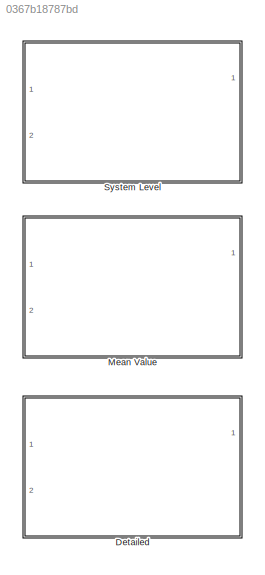
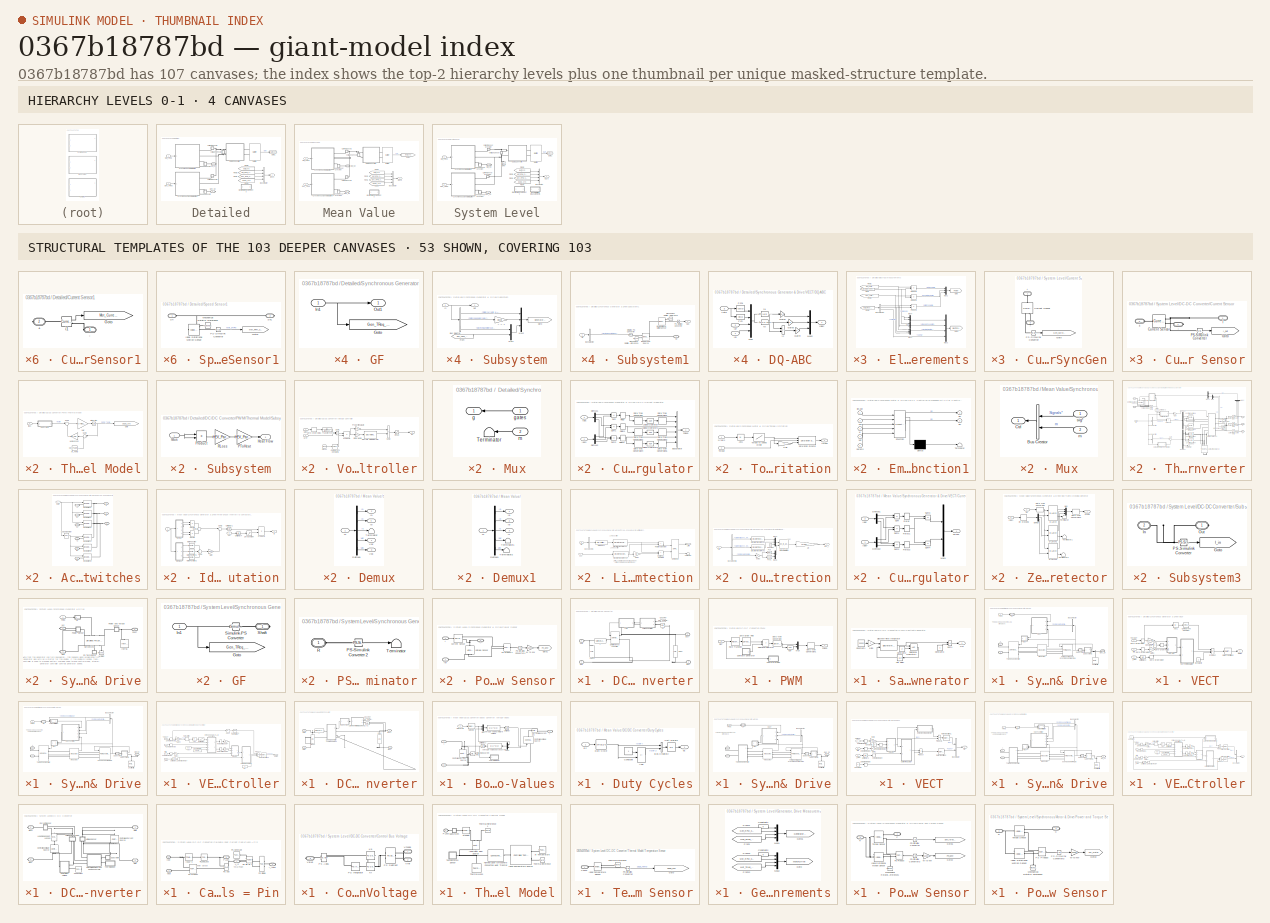
[diagram: thumbnail index - top-2 hierarchy levels (4 canvases) + 53 structural-template representatives of the remaining 103 canvases]
MODEL slx_0367b18787bd
KIND library
CONFIG AbsTol = auto
CONFIG EnableMultiTasking = off
CONFIG FixedStep = auto
CONFIG MaxStep = 1e-3
CONFIG MinStep = auto
CONFIG RelTol = 1e-3
CONFIG SampleTimeConstraint = Unconstrained
CONFIG Solver = ode23t
CONFIG SolverName = ode23t
CONFIG StartTime = 0.0
CONFIG StopTime = 10.0
BLOCK [SubSystem] Detailed
  Ports = [2, 1, 0, 0, 0, 0, 2]
  RequestExecContextInheritance = off
BLOCK [Reference] Detailed/Battery  REF=HEV_Battery_Det_Lib/Battery
  Ports = [0, 1, 0, 0, 0, 2]
  SourceBlock = HEV_Battery_Det_Lib/Battery
BLOCK [BusCreator] Detailed/Bus Creator
  DisplayOption = bar
  InheritFromInputs = on
  Inputs = 'Batt','Mot_RPM','Gen_RPM','DCDC_Temp'
  Ports = [4, 1]
BLOCK [SubSystem] Detailed/Current Sensor1
  Ports = [0, 0, 0, 0, 0, 1, 1]
  RequestExecContextInheritance = off
BLOCK [PMIOPort] Detailed/Current Sensor1/+
  Port = 2
  Side = Right
  Tag = PMCPort
BLOCK [PMIOPort] Detailed/Current Sensor1/-
  Side = Left
BLOCK [Goto] Detailed/Current Sensor1/Goto
  GotoTag = Mot_Current_SYS
  TagVisibility = global
BLOCK [Reference] Detailed/Current Sensor1/i1  REF=powerlib/Measurements/Current Measurement
  Ports = [0, 1, 0, 0, 0, 1, 1]
  SourceBlock = powerlib/Measurements/Current Measurement
  SourceProductBaseCode = PS
  SourceType = Current Measurement
BLOCK [SubSystem] Detailed/Current Sensor2
  Ports = [0, 0, 0, 0, 0, 1, 1]
  RequestExecContextInheritance = off
BLOCK [PMIOPort] Detailed/Current Sensor2/+
  NameLocation = right
  Side = Right
BLOCK [PMIOPort] Detailed/Current Sensor2/-
  NameLocation = right
  Port = 2
  Side = Left
BLOCK [Goto] Detailed/Current Sensor2/Goto
  GotoTag = Gen_Current_SYS
  TagVisibility = global
BLOCK [Reference] Detailed/Current Sensor2/i1  REF=powerlib/Measurements/Current Measurement
  NameLocation = right
  Ports = [0, 1, 0, 0, 0, 1, 1]
  SourceBlock = powerlib/Measurements/Current Measurement
  SourceProductBaseCode = PS
  SourceType = Current Measurement
BLOCK [SubSystem] Detailed/DC//DC Converter
  Ports = [0, 0, 0, 0, 0, 2, 2]
  RequestExecContextInheritance = off
  ShowPortLabels = FromPortBlockName
BLOCK [PMIOPort] Detailed/DC//DC Converter/Batt+
  NameLocation = top
  Port = 3
  Side = Left
  Tag = PMCPort
BLOCK [PMIOPort] Detailed/DC//DC Converter/Batt-
  NameLocation = top
  Port = 4
  Side = Left
  Tag = PMCPort
BLOCK [PMIOPort] Detailed/DC//DC Converter/Bus+
  NameLocation = top
  Side = Right
  Tag = PMCPort
BLOCK [PMIOPort] Detailed/DC//DC Converter/Bus-
  NameLocation = top
  Port = 2
  Side = Right
  Tag = PMCPort
BLOCK [Reference] Detailed/DC//DC Converter/CBus  REF=powerlib/Elements/Series RLC Branch
  NameLocation = right
  Ports = [0, 0, 0, 0, 0, 1, 1]
  SourceBlock = powerlib/Elements/Series RLC Branch
  SourceProductBaseCode = PS
  SourceType = Series RLC Branch
BLOCK [Reference] Detailed/DC//DC Converter/CBus1  REF=powerlib/Elements/Series RLC Branch
  NameLocation = left
  Ports = [0, 0, 0, 0, 0, 1, 1]
  SourceBlock = powerlib/Elements/Series RLC Branch
  SourceProductBaseCode = PS
  SourceType = Series RLC Branch
BLOCK [Reference] Detailed/DC//DC Converter/Detailed Boost converter  REF=powerlib/Power
Electronics/Universal Bridge
  Ports = [1, 0, 0, 0, 0, 1, 2]
  SourceBlock = powerlib/Power\nElectronics/Universal Bridge
  SourceProductBaseCode = PS
  SourceType = Universal Bridge
BLOCK [Reference] Detailed/DC//DC Converter/L  REF=powerlib/Elements/Series RLC Branch
  NameLocation = top
  Ports = [0, 0, 0, 0, 0, 1, 1]
  SourceBlock = powerlib/Elements/Series RLC Branch
  SourceProductBaseCode = PS
  SourceType = Series RLC Branch
BLOCK [SubSystem] Detailed/DC//DC Converter/PWM
  Ports = [1, 1]
  RequestExecContextInheritance = off
BLOCK [DataTypeConversion] Detailed/DC//DC Converter/PWM/Data Type Conversion
BLOCK [DataTypeConversion] Detailed/DC//DC Converter/PWM/Data Type Conversion1
BLOCK [Mux] Detailed/DC//DC Converter/PWM/Mux
  DisplayOption = bar
  Inputs = 2
  Ports = [2, 1]
BLOCK [Logic] Detailed/DC//DC Converter/PWM/NOT
  AllPortsSameDT = off
  Inputs = 1
  Operator = NOT
  OutDataTypeStr = uint(8)
  Ports = [1, 1]
BLOCK [Outport] Detailed/DC//DC Converter/PWM/Pulses
  VectorParamsAs1DForOutWhenUnconnected = off
BLOCK [RateTransition] Detailed/DC//DC Converter/PWM/Rate Transition
BLOCK [Inport] Detailed/DC//DC Converter/PWM/Ref.
BLOCK [RelationalOperator] Detailed/DC//DC Converter/PWM/Relational Operator
  InputSameDT = off
  Operator = >
  Ports = [2, 1]
BLOCK [SubSystem] Detailed/DC//DC Converter/PWM/Sawtooth generator
  Ports = [0, 1]
  RequestExecContextInheritance = off
BLOCK [Gain] Detailed/DC//DC Converter/PWM/Sawtooth generator/1\ib3
  Gain = 2
  NameLocation = top
  OutDataTypeStr = Inherit: Same as input
  ParamDataTypeStr = Inherit: Same as input
  SaturateOnIntegerOverflow = on
BLOCK [Constant] Detailed/DC//DC Converter/PWM/Sawtooth generator/Constant1
  Value = 20000
BLOCK [Constant] Detailed/DC//DC Converter/PWM/Sawtooth generator/Constant2
  Value = 2
BLOCK [Constant] Detailed/DC//DC Converter/PWM/Sawtooth generator/Constant3
BLOCK [DiscreteIntegrator] Detailed/DC//DC Converter/PWM/Sawtooth generator/Discrete-Time Integrator
  ExternalReset = rising
  ICPrevOutput = DiscIntNeverNeededParam
  ICPrevScaledInput = DiscIntNeverNeededParam
  IntegratorMethod = Integration: Trapezoidal
  LowerSaturationLimit = -1.5
  Ports = [2, 1]
  SampleTime = Ts
  UpperSaturationLimit = 1.5
BLOCK [Outport] Detailed/DC//DC Converter/PWM/Sawtooth generator/Out
  VectorParamsAs1DForOutWhenUnconnected = off
BLOCK [RelationalOperator] Detailed/DC//DC Converter/PWM/Sawtooth generator/Relational Operator1
  InputSameDT = off
  Ports = [2, 1]
BLOCK [Sum] Detailed/DC//DC Converter/PWM/Sawtooth generator/Sum1
  IconShape = rectangular
  InputSameDT = on
  Inputs = +-
  OutDataTypeStr = Inherit: Same as first input
  Ports = [2, 1]
  SaturateOnIntegerOverflow = on
BLOCK [UnitDelay] Detailed/DC//DC Converter/PWM/Sawtooth generator/Unit Delay
  HasFrameUpgradeWarning = on
  NameLocation = top
  SampleTime = Ts
BLOCK [SubSystem] Detailed/DC//DC Converter/PWM/Thermal Model
  Ports = [1]
  RequestExecContextInheritance = off
BLOCK [Gain] Detailed/DC//DC Converter/PWM/Thermal Model/1//Mc
  Gain = 1/(HEV_Param.DCDCConv.Thermal_Mass*HEV_Param.DCDCConv.Specific_Heat)
  OutDataTypeStr = Inherit: Same as input
  ParamDataTypeStr = Inherit: Same as input
  SaturateOnIntegerOverflow = on
BLOCK [Constant] Detailed/DC//DC Converter/PWM/Thermal Model/Air_Temp
  Value = HEV_Param.DCDCConv.Air_Temperature-273
BLOCK [Goto] Detailed/DC//DC Converter/PWM/Thermal Model/Goto
  GotoTag = DCDC_SYS
  TagVisibility = global
BLOCK [Gain] Detailed/DC//DC Converter/PWM/Thermal Model/Heat Losses
  Gain = HEV_Param.DCDCConv.Convection.Area/HEV_Param.DCDCConv.Convection.HT_Coefficient
  OutDataTypeStr = Inherit: Same as input
  ParamDataTypeStr = Inherit: Same as input
  SaturateOnIntegerOverflow = on
BLOCK [Inport] Detailed/DC//DC Converter/PWM/Thermal Model/IBus
BLOCK [Integrator] Detailed/DC//DC Converter/PWM/Thermal Model/Integrator
  InitialCondition = HEV_Param.DCDCConv.Initial_Temperature
  Ports = [1, 1]
BLOCK [SubSystem] Detailed/DC//DC Converter/PWM/Thermal Model/Subsystem
  Ports = [1, 1]
  RequestExecContextInheritance = off
BLOCK [Outport] Detailed/DC//DC Converter/PWM/Thermal Model/Subsystem/Heat Flow
  VectorParamsAs1DForOutWhenUnconnected = off
BLOCK [Inport] Detailed/DC//DC Converter/PWM/Thermal Model/Subsystem/IBus
BLOCK [Gain] Detailed/DC//DC Converter/PWM/Thermal Model/Subsystem/PToHeat
  Gain = HEV_Param.DCDCConv.EPower2Heat
  OutDataTypeStr = Inherit: Same as input
  ParamDataTypeStr = Inherit: Same as input
  SaturateOnIntegerOverflow = on
BLOCK [Product] Detailed/DC//DC Converter/PWM/Thermal Model/Subsystem/Product
  Ports = [2, 1]
  RndMeth = Zero
BLOCK [Gain] Detailed/DC//DC Converter/PWM/Thermal Model/Subsystem/RLoss
  Gain = HEV_Param.DCDCConv.Resistance_Losses
  OutDataTypeStr = Inherit: Same as input
  ParamDataTypeStr = Inherit: Same as input
  SaturateOnIntegerOverflow = on
BLOCK [Sum] Detailed/DC//DC Converter/PWM/Thermal Model/Sum1
  InputSameDT = on
  Inputs = |+-
  OutDataTypeStr = Inherit: Same as first input
  Ports = [2, 1]
  SaturateOnIntegerOverflow = on
BLOCK [Sum] Detailed/DC//DC Converter/PWM/Thermal Model/Sum2
  InputSameDT = on
  Inputs = |+-
  OutDataTypeStr = Inherit: Same as first input
  Ports = [2, 1]
  SaturateOnIntegerOverflow = on
BLOCK [ZeroOrderHold] Detailed/DC//DC Converter/PWM/Zero-Order Hold
  SampleTime = Ts
BLOCK [Constant] Detailed/DC//DC Converter/Ubus Ref
  NameLocation = top
  Value = HEV_Param.DCDCConv.Output_Voltage
BLOCK [Reference] Detailed/DC//DC Converter/V1  REF=powerlib/Measurements/Voltage Measurement
  NameLocation = top
  Ports = [0, 1, 0, 0, 0, 2]
  SourceBlock = powerlib/Measurements/Voltage Measurement
  SourceProductBaseCode = PS
  SourceType = Voltage Measurement
BLOCK [SubSystem] Detailed/DC//DC Converter/Voltage Controller
  Ports = [2, 1]
  RequestExecContextInheritance = off
BLOCK [Clock] Detailed/DC//DC Converter/Voltage Controller/Clock1
BLOCK [Reference] Detailed/DC//DC Converter/Voltage Controller/Compare To Constant1  REF=simulink/Logic and Bit
Operations/Compare
To Constant
  Ports = [1, 1]
  SourceBlock = simulink/Logic and Bit\nOperations/Compare\nTo Constant
  SourceProductBaseCode = SL
  SourceType = Compare To Constant
BLOCK [Saturate] Detailed/DC//DC Converter/Voltage Controller/Ctrl sat.
  LowerLimit = -0.95
  UpperLimit = 0.95
BLOCK [DiscreteIntegrator] Detailed/DC//DC Converter/Voltage Controller/Discrete-Time Integrator
  ICPrevOutput = DiscIntNeverNeededParam
  ICPrevScaledInput = DiscIntNeverNeededParam
  IntegratorMethod = Integration: Trapezoidal
  LimitOutput = on
  LowerSaturationLimit = -1
  Ports = [1, 1]
  SampleTime = Ts
  UpperSaturationLimit = 1
BLOCK [Outport] Detailed/DC//DC Converter/Voltage Controller/Ec
  InitialOutput = 0
  VectorParamsAs1DForOutWhenUnconnected = off
BLOCK [Gain] Detailed/DC//DC Converter/Voltage Controller/Integral gain
  Gain = Ki
  OutDataTypeStr = Inherit: Same as input
  ParamDataTypeStr = Inherit: Same as input
  SaturateOnIntegerOverflow = on
BLOCK [Product] Detailed/DC//DC Converter/Voltage Controller/Product1
  Ports = [2, 1]
  RndMeth = Zero
BLOCK [Gain] Detailed/DC//DC Converter/Voltage Controller/Proportional gain
  Gain = Kp
  NameLocation = top
  OutDataTypeStr = Inherit: Same as input
  ParamDataTypeStr = Inherit: Same as input
  SaturateOnIntegerOverflow = on
BLOCK [Sum] Detailed/DC//DC Converter/Voltage Controller/Sum1
  IconShape = rectangular
  InputSameDT = on
  Inputs = +-
  OutDataTypeStr = Inherit: Same as first input
  Ports = [2, 1]
  SaturateOnIntegerOverflow = on
BLOCK [Sum] Detailed/DC//DC Converter/Voltage Controller/Sum2
  IconShape = rectangular
  InputSameDT = on
  OutDataTypeStr = Inherit: Same as first input
  Ports = [2, 1]
  SaturateOnIntegerOverflow = on
BLOCK [TransferFcn] Detailed/DC//DC Converter/Voltage Controller/Transfer Fcn
  Denominator = [.0001 1]
BLOCK [Inport] Detailed/DC//DC Converter/Voltage Controller/UBus
  Port = 2
BLOCK [Inport] Detailed/DC//DC Converter/Voltage Controller/Uref
BLOCK [ZeroOrderHold] Detailed/DC//DC Converter/Voltage Controller/Zero-Order Hold1
  SampleTime = Ts
BLOCK [Outport] Detailed/ESys
  VectorParamsAs1DForOutWhenUnconnected = off
BLOCK [SubSystem] Detailed/Electrical Measurements
  Ports = []
  RequestExecContextInheritance = off
BLOCK [BusSelector] Detailed/Electrical Measurements/Bus Selector
  OutputSignals = Voltage (V),Current (A),SOC (%)
  Ports = [1, 3]
BLOCK [From] Detailed/Electrical Measurements/From
  GotoTag = DC_Bus_SYS
  TagVisibility = global
BLOCK [From] Detailed/Electrical Measurements/From1
  GotoTag = Batt_Measures
  TagVisibility = global
BLOCK [From] Detailed/Electrical Measurements/From2
  GotoTag = Mot_Current_SYS
  TagVisibility = global
BLOCK [From] Detailed/Electrical Measurements/From3
  GotoTag = Gen_Current_SYS
  TagVisibility = global
BLOCK [Goto] Detailed/Electrical Measurements/Goto
  GotoTag = Power
  TagVisibility = global
BLOCK [Goto] Detailed/Electrical Measurements/Goto1
  GotoTag = Electricals
  TagVisibility = global
BLOCK [Mux] Detailed/Electrical Measurements/Mux
  DisplayOption = bar
  Inputs = 2
  Ports = [2, 1]
BLOCK [Mux] Detailed/Electrical Measurements/Mux1
  DisplayOption = bar
  Inputs = 3
  Ports = [3, 1]
BLOCK [Mux] Detailed/Electrical Measurements/Mux2
  DisplayOption = bar
  Inputs = 3
  Ports = [3, 1]
BLOCK [Mux] Detailed/Electrical Measurements/Mux3
  DisplayOption = bar
  Ports = [4, 1]
BLOCK [Mux] Detailed/Electrical Measurements/Mux4
  DisplayOption = bar
  Inputs = 2
  Ports = [2, 1]
BLOCK [Product] Detailed/Electrical Measurements/Product1
  Ports = [2, 1]
  RndMeth = Zero
BLOCK [Product] Detailed/Electrical Measurements/Product2
  Ports = [2, 1]
  RndMeth = Zero
BLOCK [Product] Detailed/Electrical Measurements/Product3
  Ports = [2, 1]
  RndMeth = Zero
BLOCK [From] Detailed/From1
  GotoTag = Gen_RPM_SYS
  TagVisibility = global
BLOCK [From] Detailed/From2
  GotoTag = Batt_SYS
  TagVisibility = global
BLOCK [From] Detailed/From3
  GotoTag = Mot_RPM_SYS
  TagVisibility = global
BLOCK [From] Detailed/From4
  GotoTag = DCDC_SYS
  TagVisibility = global
BLOCK [PMIOPort] Detailed/Gen_Sh
  Port = 2
  Side = Right
BLOCK [Inport] Detailed/Gen_TReq
  Port = 2
BLOCK [Goto] Detailed/Goto1
  GotoTag = Batt_SYS
  TagVisibility = global
BLOCK [PMIOPort] Detailed/Mot_Sh
  Side = Right
BLOCK [Inport] Detailed/Mot_TReq
BLOCK [SubSystem] Detailed/Speed Sensor1
  Ports = [0, 0, 0, 0, 0, 1, 1]
  RequestExecContextInheritance = off
BLOCK [Goto] Detailed/Speed Sensor1/Goto1
  GotoTag = Mot_RPM_SYS
  TagVisibility = global
BLOCK [Reference] Detailed/Speed Sensor1/Ideal Rotational Motion Sensor  REF=fl_lib/Mechanical/Mechanical Sensors/Ideal Rotational
Motion Sensor
  Ports = [0, 0, 0, 0, 0, 1, 3]
  SourceBlock = fl_lib/Mechanical/Mechanical Sensors/Ideal Rotational\nMotion Sensor
  SourceProductBaseCode = SS
  SourceType = Ideal Rotational\nMotion Sensor
BLOCK [Reference] Detailed/Speed Sensor1/Mechanical Rotational Reference  REF=fl_lib/Mechanical/Rotational Elements/Mechanical
Rotational Reference
  NameLocation = top
  Ports = [0, 0, 0, 0, 0, 1]
  SourceBlock = fl_lib/Mechanical/Rotational Elements/Mechanical\nRotational Reference
  SourceProductBaseCode = SS
  SourceType = Mechanical\nRotational Reference
BLOCK [Reference] Detailed/Speed Sensor1/PS-Simulink Converter  REF=nesl_utility/PS-Simulink
Converter
  Ports = [0, 1, 0, 0, 0, 1]
  SourceBlock = nesl_utility/PS-Simulink\nConverter
  SourceProductBaseCode = SS
  SourceType = PS-Simulink\nConverter
BLOCK [PMIOPort] Detailed/Speed Sensor1/Sh
  Side = Left
BLOCK [PMIOPort] Detailed/Speed Sensor1/Sh1
  Port = 2
  Side = Right
BLOCK [SubSystem] Detailed/Speed Sensor2
  Ports = [0, 0, 0, 0, 0, 1, 1]
  RequestExecContextInheritance = off
BLOCK [Goto] Detailed/Speed Sensor2/Goto1
  GotoTag = Gen_RPM_SYS
  TagVisibility = global
BLOCK [Reference] Detailed/Speed Sensor2/Ideal Rotational Motion Sensor  REF=fl_lib/Mechanical/Mechanical Sensors/Ideal Rotational
Motion Sensor
  Ports = [0, 0, 0, 0, 0, 1, 3]
  SourceBlock = fl_lib/Mechanical/Mechanical Sensors/Ideal Rotational\nMotion Sensor
  SourceProductBaseCode = SS
  SourceType = Ideal Rotational\nMotion Sensor
BLOCK [Reference] Detailed/Speed Sensor2/Mechanical Rotational Reference  REF=fl_lib/Mechanical/Rotational Elements/Mechanical
Rotational Reference
  NameLocation = top
  Ports = [0, 0, 0, 0, 0, 1]
  SourceBlock = fl_lib/Mechanical/Rotational Elements/Mechanical\nRotational Reference
  SourceProductBaseCode = SS
  SourceType = Mechanical\nRotational Reference
BLOCK [Reference] Detailed/Speed Sensor2/PS-Simulink Converter  REF=nesl_utility/PS-Simulink
Converter
  Ports = [0, 1, 0, 0, 0, 1]
  SourceBlock = nesl_utility/PS-Simulink\nConverter
  SourceProductBaseCode = SS
  SourceType = PS-Simulink\nConverter
BLOCK [PMIOPort] Detailed/Speed Sensor2/Sh
  Side = Left
BLOCK [PMIOPort] Detailed/Speed Sensor2/Sh1
  Port = 2
  Side = Right
BLOCK [SubSystem] Detailed/Synchronous Generator & Drive
  Ports = [1, 0, 0, 0, 0, 0, 3]
  RequestExecContextInheritance = off
BLOCK [PMIOPort] Detailed/Synchronous Generator & Drive/+
  Side = Right
BLOCK [PMIOPort] Detailed/Synchronous Generator & Drive/-
  Port = 2
  Side = Right
BLOCK [BusSelector] Detailed/Synchronous Generator & Drive/Bus Selector
  NameLocation = top
  OutputSignals = Rotor angle thetam (rad)
  Ports = [1, 1]
BLOCK [SubSystem] Detailed/Synchronous Generator & Drive/GF
  Ports = [1, 1]
  RequestExecContextInheritance = off
BLOCK [Goto] Detailed/Synchronous Generator & Drive/GF/Goto
  GotoTag = Gen_TReq_SYS
  TagVisibility = global
BLOCK [Inport] Detailed/Synchronous Generator & Drive/GF/In1
BLOCK [Outport] Detailed/Synchronous Generator & Drive/GF/Out1
  VectorParamsAs1DForOutWhenUnconnected = off
BLOCK [PMIOPort] Detailed/Synchronous Generator & Drive/Gen_Sh
  Port = 3
  Side = Right
BLOCK [Reference] Detailed/Synchronous Generator & Drive/Measures  REF=electricdrivelib/AC drives/PM Synchronous Motor Drive/Measures
  Ports = [0, 1, 0, 0, 0, 3, 3]
  SourceBlock = electricdrivelib/AC drives/PM Synchronous Motor Drive/Measures
  SourceProductBaseCode = PS
  SourceType = SubSystem
BLOCK [SubSystem] Detailed/Synchronous Generator & Drive/Mux
  NameLocation = top
  Ports = [2, 1]
  RequestExecContextInheritance = off
BLOCK [Terminator] Detailed/Synchronous Generator & Drive/Mux/Terminator
BLOCK [Outport] Detailed/Synchronous Generator & Drive/Mux/g
  VectorParamsAs1DForOutWhenUnconnected = off
BLOCK [Inport] Detailed/Synchronous Generator & Drive/Mux/gates
BLOCK [Inport] Detailed/Synchronous Generator & Drive/Mux/m
  Port = 2
BLOCK [Reference] Detailed/Synchronous Generator & Drive/Permanent Magnet Synchronous Machine  REF=powerlib/Machines/Permanent Magnet
Synchronous Machine
  AttributesFormatString = \n
  Ports = [1, 1, 0, 0, 0, 3]
  SourceBlock = powerlib/Machines/Permanent Magnet\nSynchronous Machine
  SourceProductBaseCode = PS
  SourceType = Permanent Magnet Synchronous Machine
BLOCK [Reference] Detailed/Synchronous Generator & Drive/Shaft Inertia  REF=fl_lib/Mechanical/Rotational Elements/Inertia
  NameLocation = right
  Ports = [0, 0, 0, 0, 0, 1]
  SourceBlock = fl_lib/Mechanical/Rotational Elements/Inertia
  SourceProductBaseCode = SS
  SourceType = Inertia
BLOCK [SubSystem] Detailed/Synchronous Generator & Drive/Subsystem
  Ports = [1, 1]
  RequestExecContextInheritance = off
BLOCK [Gain] Detailed/Synchronous Generator & Drive/Subsystem/+ -> -1
  Gain = 30/pi
BLOCK [BusSelector] Detailed/Synchronous Generator & Drive/Subsystem/Bus Selector
  OutputSignals = Stator current is_a (A),Rotor speed wm (rad/s),Electromagnetic torque Te (N*m)
  Ports = [1, 3]
BLOCK [From] Detailed/Synchronous Generator & Drive/Subsystem/From
  GotoTag = Gen_TReq_SYS
  TagVisibility = global
BLOCK [Goto] Detailed/Synchronous Generator & Drive/Subsystem/Goto
  GotoTag = GeneratorDrive
  TagVisibility = global
BLOCK [Inport] Detailed/Synchronous Generator & Drive/Subsystem/In
BLOCK [Mux] Detailed/Synchronous Generator & Drive/Subsystem/Mux1
  DisplayOption = bar
  Inputs = 2
  Ports = [2, 1]
BLOCK [Mux] Detailed/Synchronous Generator & Drive/Subsystem/Mux2
  DisplayOption = bar
  Inputs = 3
  Ports = [3, 1]
BLOCK [Outport] Detailed/Synchronous Generator & Drive/Subsystem/Out
  VectorParamsAs1DForOutWhenUnconnected = off
BLOCK [SubSystem] Detailed/Synchronous Generator & Drive/Subsystem1
  Ports = [1, 1, 0, 0, 0, 0, 1]
  RequestExecContextInheritance = off
BLOCK [BusSelector] Detailed/Synchronous Generator & Drive/Subsystem1/Bus Selector
  OutputSignals = Electromagnetic torque Te (N*m)
  Ports = [1, 1]
BLOCK [Reference] Detailed/Synchronous Generator & Drive/Subsystem1/Ideal Rotational Motion Sensor  REF=fl_lib/Mechanical/Mechanical Sensors/Ideal Rotational
Motion Sensor
  Ports = [0, 0, 0, 0, 0, 1, 3]
  SourceBlock = fl_lib/Mechanical/Mechanical Sensors/Ideal Rotational\nMotion Sensor
  SourceProductBaseCode = SS
  SourceType = Ideal Rotational\nMotion Sensor
BLOCK [Reference] Detailed/Synchronous Generator & Drive/Subsystem1/Ideal Torque Source  REF=fl_lib/Mechanical/Mechanical Sources/Ideal Torque Source
  Ports = [0, 0, 0, 0, 0, 1, 2]
  SourceBlock = fl_lib/Mechanical/Mechanical Sources/Ideal Torque Source
  SourceProductBaseCode = SS
  SourceType = Ideal Torque Source
BLOCK [Reference] Detailed/Synchronous Generator & Drive/Subsystem1/Mechanical Rotational Reference  REF=fl_lib/Mechanical/Rotational Elements/Mechanical
Rotational Reference
  NameLocation = top
  Ports = [0, 0, 0, 0, 0, 1]
  SourceBlock = fl_lib/Mechanical/Rotational Elements/Mechanical\nRotational Reference
  SourceProductBaseCode = SS
  SourceType = Mechanical\nRotational Reference
BLOCK [Reference] Detailed/Synchronous Generator & Drive/Subsystem1/Mechanical Rotational Reference1  REF=fl_lib/Mechanical/Rotational Elements/Mechanical
Rotational Reference
  Ports = [0, 0, 0, 0, 0, 1]
  SourceBlock = fl_lib/Mechanical/Rotational Elements/Mechanical\nRotational Reference
  SourceProductBaseCode = SS
  SourceType = Mechanical\nRotational Reference
BLOCK [Reference] Detailed/Synchronous Generator & Drive/Subsystem1/PS-Simulink Converter  REF=nesl_utility/PS-Simulink
Converter
  Ports = [0, 1, 0, 0, 0, 1]
  SourceBlock = nesl_utility/PS-Simulink\nConverter
  SourceProductBaseCode = SS
  SourceType = PS-Simulink\nConverter
BLOCK [PMIOPort] Detailed/Synchronous Generator & Drive/Subsystem1/Sh
  NameLocation = top
  Side = Right
BLOCK [Inport] Detailed/Synchronous Generator & Drive/Subsystem1/Sig
BLOCK [Reference] Detailed/Synchronous Generator & Drive/Subsystem1/Simulink-PS Converter  REF=nesl_utility/Simulink-PS
Converter
  Ports = [1, 0, 0, 0, 0, 0, 1]
  SourceBlock = nesl_utility/Simulink-PS\nConverter
  SourceProductBaseCode = SS
  SourceType = Simulink-PS\nConverter
BLOCK [Outport] Detailed/Synchronous Generator & Drive/Subsystem1/Spd
  VectorParamsAs1DForOutWhenUnconnected = off
BLOCK [Inport] Detailed/Synchronous Generator & Drive/TReq
BLOCK [Reference] Detailed/Synchronous Generator & Drive/Three-phase Inverter  REF=powerlib/Power
Electronics/Universal Bridge
  Ports = [1, 0, 0, 0, 0, 3, 2]
  SourceBlock = powerlib/Power\nElectronics/Universal Bridge
  SourceProductBaseCode = PS
  SourceType = Universal Bridge
BLOCK [SubSystem] Detailed/Synchronous Generator & Drive/VECT
  NameLocation = top
  Ports = [3, 1]
  RequestExecContextInheritance = off
BLOCK [Abs] Detailed/Synchronous Generator & Drive/VECT/Abs1
  SaturateOnIntegerOverflow = off
BLOCK [Reference] Detailed/Synchronous Generator & Drive/VECT/Compare To Constant  REF=simulink/Logic and Bit
Operations/Compare
To Constant
  Ports = [1, 1]
  SourceBlock = simulink/Logic and Bit\nOperations/Compare\nTo Constant
  SourceProductBaseCode = SL
  SourceType = Compare To Constant
BLOCK [Constant] Detailed/Synchronous Generator & Drive/VECT/Constant1
  Value = 0
BLOCK [Constant] Detailed/Synchronous Generator & Drive/VECT/Constant2
BLOCK [SubSystem] Detailed/Synchronous Generator & Drive/VECT/Current Regulator
  NameLocation = top
  Ports = [2, 1]
  RequestExecContextInheritance = off
BLOCK [BusCreator] Detailed/Synchronous Generator & Drive/VECT/Current Regulator/BusCreator
  InheritFromInputs = on
  Inputs = 6
  Ports = [6, 1]
BLOCK [DataTypeConversion] Detailed/Synchronous Generator & Drive/VECT/Current Regulator/Data Type Conversion
BLOCK [DataTypeConversion] Detailed/Synchronous Generator & Drive/VECT/Current Regulator/Data Type Conversion1
BLOCK [DataTypeConversion] Detailed/Synchronous Generator & Drive/VECT/Current Regulator/Data Type Conversion2
BLOCK [DataTypeConversion] Detailed/Synchronous Generator & Drive/VECT/Current Regulator/Data Type Conversion3
BLOCK [DataTypeConversion] Detailed/Synchronous Generator & Drive/VECT/Current Regulator/Data Type Conversion4
BLOCK [DataTypeConversion] Detailed/Synchronous Generator & Drive/VECT/Current Regulator/Data Type Conversion5
BLOCK [Demux] Detailed/Synchronous Generator & Drive/VECT/Current Regulator/Demux1
  DisplayOption = none
  Outputs = 3
  Ports = [1, 3]
BLOCK [Demux] Detailed/Synchronous Generator & Drive/VECT/Current Regulator/Demux2
  DisplayOption = none
  Outputs = 3
  Ports = [1, 3]
BLOCK [Inport] Detailed/Synchronous Generator & Drive/VECT/Current Regulator/Iabc
  Port = 2
BLOCK [Inport] Detailed/Synchronous Generator & Drive/VECT/Current Regulator/Iabc*
BLOCK [Logic] Detailed/Synchronous Generator & Drive/VECT/Current Regulator/Logical Operator
  Operator = NOT
  Ports = [1, 1]
BLOCK [Logic] Detailed/Synchronous Generator & Drive/VECT/Current Regulator/Logical Operator1
  Operator = NOT
  Ports = [1, 1]
BLOCK [Logic] Detailed/Synchronous Generator & Drive/VECT/Current Regulator/Logical Operator2
  Operator = NOT
  Ports = [1, 1]
BLOCK [Outport] Detailed/Synchronous Generator & Drive/VECT/Current Regulator/Pulses
  InitialOutput = 0
  VectorParamsAs1DForOutWhenUnconnected = off
BLOCK [Relay] Detailed/Synchronous Generator & Drive/VECT/Current Regulator/Relay
  OffSwitchValue = -h/2
  OnSwitchValue = h/2
BLOCK [Relay] Detailed/Synchronous Generator & Drive/VECT/Current Regulator/Relay1
  OffSwitchValue = -h/2
  OnSwitchValue = h/2
BLOCK [Relay] Detailed/Synchronous Generator & Drive/VECT/Current Regulator/Relay2
  OffSwitchValue = -h/2
  OnSwitchValue = h/2
BLOCK [Sum] Detailed/Synchronous Generator & Drive/VECT/Current Regulator/Sum
  IconShape = rectangular
  InputSameDT = on
  Inputs = -+
  OutDataTypeStr = Inherit: Same as first input
  Ports = [2, 1]
  SaturateOnIntegerOverflow = on
BLOCK [Sum] Detailed/Synchronous Generator & Drive/VECT/Current Regulator/Sum1
  IconShape = rectangular
  InputSameDT = on
  Inputs = -+
  OutDataTypeStr = Inherit: Same as first input
  Ports = [2, 1]
  SaturateOnIntegerOverflow = on
BLOCK [Sum] Detailed/Synchronous Generator & Drive/VECT/Current Regulator/Sum2
  IconShape = rectangular
  InputSameDT = on
  Inputs = -+
  OutDataTypeStr = Inherit: Same as first input
  Ports = [2, 1]
  SaturateOnIntegerOverflow = on
BLOCK [SubSystem] Detailed/Synchronous Generator & Drive/VECT/DQ-ABC
  NameLocation = top
  Ports = [3, 1]
  RequestExecContextInheritance = off
BLOCK [Fcn] Detailed/Synchronous Generator & Drive/VECT/DQ-ABC/Fcn
  Expr = sin(u)
BLOCK [Fcn] Detailed/Synchronous Generator & Drive/VECT/DQ-ABC/Fcn1
  Expr = cos(u)
BLOCK [Gain] Detailed/Synchronous Generator & Drive/VECT/DQ-ABC/Gain2
  OutDataTypeStr = Inherit: Same as input
  ParamDataTypeStr = Inherit: Same as input
  SaturateOnIntegerOverflow = on
BLOCK [Gain] Detailed/Synchronous Generator & Drive/VECT/DQ-ABC/Gain3
  OutDataTypeStr = Inherit: Same as input
  ParamDataTypeStr = Inherit: Same as input
  SaturateOnIntegerOverflow = on
BLOCK [Gain] Detailed/Synchronous Generator & Drive/VECT/DQ-ABC/Gain4
  OutDataTypeStr = Inherit: Same as input
  ParamDataTypeStr = Inherit: Same as input
  SaturateOnIntegerOverflow = on
BLOCK [Outport] Detailed/Synchronous Generator & Drive/VECT/DQ-ABC/Iabc*
  InitialOutput = 0
  VectorParamsAs1DForOutWhenUnconnected = off
BLOCK [Inport] Detailed/Synchronous Generator & Drive/VECT/DQ-ABC/Id* 
  Port = 2
BLOCK [Inport] Detailed/Synchronous Generator & Drive/VECT/DQ-ABC/Iq* 
BLOCK [Mux] Detailed/Synchronous Generator & Drive/VECT/DQ-ABC/Mux
  Ports = [4, 1]
BLOCK [Mux] Detailed/Synchronous Generator & Drive/VECT/DQ-ABC/Mux2
  Inputs = 3
  Ports = [3, 1]
BLOCK [Inport] Detailed/Synchronous Generator & Drive/VECT/DQ-ABC/Teta
  Port = 3
BLOCK [Fcn] Detailed/Synchronous Generator & Drive/VECT/DQ-ABC/ia
  Expr = -u[3]*u[2] + u[4]*u[1]
  NameLocation = top
BLOCK [Fcn] Detailed/Synchronous Generator & Drive/VECT/DQ-ABC/ib
  Expr = (-u[1]+1.7320508*u[2])*u[4]*0.5+(u[2]+1.7320508*u[1])*u[3]*0.5
BLOCK [Sum] Detailed/Synchronous Generator & Drive/VECT/DQ-ABC/ic
  IconShape = rectangular
  InputSameDT = on
  Inputs = --
  OutDataTypeStr = Inherit: Same as first input
  Ports = [2, 1]
  SaturateOnIntegerOverflow = on
BLOCK [Gain] Detailed/Synchronous Generator & Drive/VECT/Gain1
  Gain = nb_p
  OutDataTypeStr = Inherit: Same as input
  ParamDataTypeStr = Inherit: Same as input
  SaturateOnIntegerOverflow = on
BLOCK [Inport] Detailed/Synchronous Generator & Drive/VECT/I_abc
  Port = 3
BLOCK [Product] Detailed/Synchronous Generator & Drive/VECT/Product
  Inputs = 3
  Ports = [3, 1]
  RndMeth = Zero
BLOCK [RateTransition] Detailed/Synchronous Generator & Drive/VECT/Rate Transition2
BLOCK [Inport] Detailed/Synchronous Generator & Drive/VECT/Torque*
BLOCK [UnitDelay] Detailed/Synchronous Generator & Drive/VECT/Unit Delay2
  HasFrameUpgradeWarning = on
  SampleTime = -1
BLOCK [ZeroOrderHold] Detailed/Synchronous Generator & Drive/VECT/Zero-Order Hold1
  SampleTime = Ts_vect
BLOCK [ZeroOrderHold] Detailed/Synchronous Generator & Drive/VECT/Zero-Order Hold2
  SampleTime = Ts_vect
BLOCK [ZeroOrderHold] Detailed/Synchronous Generator & Drive/VECT/Zero-Order Hold3
  SampleTime = Ts_vect
BLOCK [ZeroOrderHold] Detailed/Synchronous Generator & Drive/VECT/Zero-Order Hold4
  SampleTime = Ts_vect
BLOCK [Outport] Detailed/Synchronous Generator & Drive/VECT/gates
  VectorParamsAs1DForOutWhenUnconnected = off
BLOCK [Gain] Detailed/Synchronous Generator & Drive/VECT/te2iq
  Gain = 2/(3*nb_p*lambda)
  NameLocation = top
  OutDataTypeStr = Inherit: Same as input
  ParamDataTypeStr = Inherit: Same as input
  SaturateOnIntegerOverflow = on
BLOCK [Inport] Detailed/Synchronous Generator & Drive/VECT/teta
  Port = 2
BLOCK [SubSystem] Detailed/Synchronous Motor & Drive
  Ports = [1, 0, 0, 0, 0, 0, 3]
  RequestExecContextInheritance = off
BLOCK [PMIOPort] Detailed/Synchronous Motor & Drive/+
  Side = Right
BLOCK [PMIOPort] Detailed/Synchronous Motor & Drive/-
  Port = 2
  Side = Right
BLOCK [Reference] Detailed/Synchronous Motor & Drive/500 Vdc 50kW PMSM  REF=powerlib/Machines/Permanent Magnet
Synchronous Machine
  AttributesFormatString = \n
  Ports = [1, 1, 0, 0, 0, 3]
  SourceBlock = powerlib/Machines/Permanent Magnet\nSynchronous Machine
  SourceProductBaseCode = PS
  SourceType = Permanent Magnet Synchronous Machine
BLOCK [BusSelector] Detailed/Synchronous Motor & Drive/Bus Selector
  NameLocation = top
  OutputSignals = Rotor speed wm (rad/s),Rotor angle thetam (rad)
  Ports = [1, 2]
BLOCK [SubSystem] Detailed/Synchronous Motor & Drive/GF
  Ports = [1, 1]
  RequestExecContextInheritance = off
BLOCK [Goto] Detailed/Synchronous Motor & Drive/GF/Goto
  GotoTag = Mot_TReq_SYS
  TagVisibility = global
BLOCK [Inport] Detailed/Synchronous Motor & Drive/GF/In1
BLOCK [Outport] Detailed/Synchronous Motor & Drive/GF/Out1
  VectorParamsAs1DForOutWhenUnconnected = off
BLOCK [Reference] Detailed/Synchronous Motor & Drive/Measures  REF=electricdrivelib/AC drives/PM Synchronous Motor Drive/Measures
  Ports = [0, 1, 0, 0, 0, 3, 3]
  SourceBlock = electricdrivelib/AC drives/PM Synchronous Motor Drive/Measures
  SourceProductBaseCode = PS
  SourceType = SubSystem
BLOCK [PMIOPort] Detailed/Synchronous Motor & Drive/Mot_Sh
  Port = 3
  Side = Right
BLOCK [SubSystem] Detailed/Synchronous Motor & Drive/Mux
  NameLocation = top
  Ports = [2, 1]
  RequestExecContextInheritance = off
BLOCK [Terminator] Detailed/Synchronous Motor & Drive/Mux/Terminator
BLOCK [Outport] Detailed/Synchronous Motor & Drive/Mux/g
  VectorParamsAs1DForOutWhenUnconnected = off
BLOCK [Inport] Detailed/Synchronous Motor & Drive/Mux/gates
BLOCK [Inport] Detailed/Synchronous Motor & Drive/Mux/m
  Port = 2
BLOCK [Reference] Detailed/Synchronous Motor & Drive/Shaft Inertia  REF=fl_lib/Mechanical/Rotational Elements/Inertia
  NameLocation = right
  Ports = [0, 0, 0, 0, 0, 1]
  SourceBlock = fl_lib/Mechanical/Rotational Elements/Inertia
  SourceProductBaseCode = SS
  SourceType = Inertia
BLOCK [SubSystem] Detailed/Synchronous Motor & Drive/Subsystem
  Ports = [1, 1]
  RequestExecContextInheritance = off
BLOCK [Gain] Detailed/Synchronous Motor & Drive/Subsystem/+ -> -1
  Gain = 30/pi
BLOCK [BusSelector] Detailed/Synchronous Motor & Drive/Subsystem/Bus Selector
  OutputSignals = Stator current is_a (A),Rotor speed wm (rad/s),Electromagnetic torque Te (N*m)
  Ports = [1, 3]
BLOCK [From] Detailed/Synchronous Motor & Drive/Subsystem/From
  GotoTag = Mot_TReq_SYS
  TagVisibility = global
BLOCK [Goto] Detailed/Synchronous Motor & Drive/Subsystem/Goto
  GotoTag = MotorDrive
  TagVisibility = global
BLOCK [Inport] Detailed/Synchronous Motor & Drive/Subsystem/In
BLOCK [Mux] Detailed/Synchronous Motor & Drive/Subsystem/Mux1
  DisplayOption = bar
  Inputs = 2
  Ports = [2, 1]
BLOCK [Mux] Detailed/Synchronous Motor & Drive/Subsystem/Mux2
  DisplayOption = bar
  Inputs = 3
  Ports = [3, 1]
BLOCK [Outport] Detailed/Synchronous Motor & Drive/Subsystem/Out
  VectorParamsAs1DForOutWhenUnconnected = off
BLOCK [SubSystem] Detailed/Synchronous Motor & Drive/Subsystem1
  Ports = [1, 1, 0, 0, 0, 0, 1]
  RequestExecContextInheritance = off
BLOCK [BusSelector] Detailed/Synchronous Motor & Drive/Subsystem1/Bus Selector
  OutputSignals = Electromagnetic torque Te (N*m)
  Ports = [1, 1]
BLOCK [Reference] Detailed/Synchronous Motor & Drive/Subsystem1/Ideal Rotational Motion Sensor  REF=fl_lib/Mechanical/Mechanical Sensors/Ideal Rotational
Motion Sensor
  Ports = [0, 0, 0, 0, 0, 1, 3]
  SourceBlock = fl_lib/Mechanical/Mechanical Sensors/Ideal Rotational\nMotion Sensor
  SourceProductBaseCode = SS
  SourceType = Ideal Rotational\nMotion Sensor
BLOCK [Reference] Detailed/Synchronous Motor & Drive/Subsystem1/Ideal Torque Source  REF=fl_lib/Mechanical/Mechanical Sources/Ideal Torque Source
  Ports = [0, 0, 0, 0, 0, 1, 2]
  SourceBlock = fl_lib/Mechanical/Mechanical Sources/Ideal Torque Source
  SourceProductBaseCode = SS
  SourceType = Ideal Torque Source
BLOCK [Reference] Detailed/Synchronous Motor & Drive/Subsystem1/Mechanical Rotational Reference  REF=fl_lib/Mechanical/Rotational Elements/Mechanical
Rotational Reference
  NameLocation = top
  Ports = [0, 0, 0, 0, 0, 1]
  SourceBlock = fl_lib/Mechanical/Rotational Elements/Mechanical\nRotational Reference
  SourceProductBaseCode = SS
  SourceType = Mechanical\nRotational Reference
BLOCK [Reference] Detailed/Synchronous Motor & Drive/Subsystem1/Mechanical Rotational Reference1  REF=fl_lib/Mechanical/Rotational Elements/Mechanical
Rotational Reference
  Ports = [0, 0, 0, 0, 0, 1]
  SourceBlock = fl_lib/Mechanical/Rotational Elements/Mechanical\nRotational Reference
  SourceProductBaseCode = SS
  SourceType = Mechanical\nRotational Reference
BLOCK [Reference] Detailed/Synchronous Motor & Drive/Subsystem1/PS-Simulink Converter  REF=nesl_utility/PS-Simulink
Converter
  Ports = [0, 1, 0, 0, 0, 1]
  SourceBlock = nesl_utility/PS-Simulink\nConverter
  SourceProductBaseCode = SS
  SourceType = PS-Simulink\nConverter
BLOCK [PMIOPort] Detailed/Synchronous Motor & Drive/Subsystem1/Sh
  NameLocation = top
  Side = Right
BLOCK [Inport] Detailed/Synchronous Motor & Drive/Subsystem1/Sig
BLOCK [Reference] Detailed/Synchronous Motor & Drive/Subsystem1/Simulink-PS Converter  REF=nesl_utility/Simulink-PS
Converter
  Ports = [1, 0, 0, 0, 0, 0, 1]
  SourceBlock = nesl_utility/Simulink-PS\nConverter
  SourceProductBaseCode = SS
  SourceType = Simulink-PS\nConverter
BLOCK [Outport] Detailed/Synchronous Motor & Drive/Subsystem1/Spd
  VectorParamsAs1DForOutWhenUnconnected = off
BLOCK [Inport] Detailed/Synchronous Motor & Drive/TReq
BLOCK [Reference] Detailed/Synchronous Motor & Drive/Three-Phase Inverter  REF=powerlib/Power
Electronics/Universal Bridge
  Ports = [1, 0, 0, 0, 0, 3, 2]
  SourceBlock = powerlib/Power\nElectronics/Universal Bridge
  SourceProductBaseCode = PS
  SourceType = Universal Bridge
BLOCK [SubSystem] Detailed/Synchronous Motor & Drive/Torque limitation
  Ports = [2, 1]
  RequestExecContextInheritance = off
BLOCK [Abs] Detailed/Synchronous Motor & Drive/Torque limitation/Abs1
BLOCK [Gain] Detailed/Synchronous Motor & Drive/Torque limitation/Gain
  Gain = -1
BLOCK [Inport] Detailed/Synchronous Motor & Drive/Torque limitation/N rad//s
BLOCK [Reference] Detailed/Synchronous Motor & Drive/Torque limitation/Saturation Dynamic  REF=simulink/Discontinuities/Saturation
Dynamic
  Ports = [3, 1]
  SourceBlock = simulink/Discontinuities/Saturation\nDynamic
  SourceProductBaseCode = SL
  SourceType = Saturation Dynamic
BLOCK [Inport] Detailed/Synchronous Motor & Drive/Torque limitation/Torque
  Port = 2
BLOCK [Lookup] Detailed/Synchronous Motor & Drive/Torque limitation/Torque vs speed profile
  InputValues = [0 1200 2000 3000 4000 5000 6000]*pi/30
  NameLocation = top
  SaturateOnIntegerOverflow = off
  Table = [400 400 225 150 100 80 70]
BLOCK [Outport] Detailed/Synchronous Motor & Drive/Torque limitation/torque
  VectorParamsAs1DForOutWhenUnconnected = off
BLOCK [SubSystem] Detailed/Synchronous Motor & Drive/VECT Controller
  Ports = [4, 1]
  RequestExecContextInheritance = off
BLOCK [Abs] Detailed/Synchronous Motor & Drive/VECT Controller/Abs
  NameLocation = top
  SaturateOnIntegerOverflow = off
BLOCK [Abs] Detailed/Synchronous Motor & Drive/VECT Controller/Abs1
  SaturateOnIntegerOverflow = off
BLOCK [Reference] Detailed/Synchronous Motor & Drive/VECT Controller/Compare To Constant  REF=simulink/Logic and Bit
Operations/Compare
To Constant
  Ports = [1, 1]
  SourceBlock = simulink/Logic and Bit\nOperations/Compare\nTo Constant
  SourceProductBaseCode = SL
  SourceType = Compare To Constant
BLOCK [SubSystem] Detailed/Synchronous Motor & Drive/VECT Controller/Current Regulator1
  NameLocation = top
  Ports = [2, 1]
  RequestExecContextInheritance = off
BLOCK [BusCreator] Detailed/Synchronous Motor & Drive/VECT Controller/Current Regulator1/BusCreator
  InheritFromInputs = on
  Inputs = 6
  Ports = [6, 1]
BLOCK [DataTypeConversion] Detailed/Synchronous Motor & Drive/VECT Controller/Current Regulator1/Data Type Conversion
BLOCK [DataTypeConversion] Detailed/Synchronous Motor & Drive/VECT Controller/Current Regulator1/Data Type Conversion1
BLOCK [DataTypeConversion] Detailed/Synchronous Motor & Drive/VECT Controller/Current Regulator1/Data Type Conversion2
BLOCK [DataTypeConversion] Detailed/Synchronous Motor & Drive/VECT Controller/Current Regulator1/Data Type Conversion3
BLOCK [DataTypeConversion] Detailed/Synchronous Motor & Drive/VECT Controller/Current Regulator1/Data Type Conversion4
BLOCK [DataTypeConversion] Detailed/Synchronous Motor & Drive/VECT Controller/Current Regulator1/Data Type Conversion5
BLOCK [Demux] Detailed/Synchronous Motor & Drive/VECT Controller/Current Regulator1/Demux1
  DisplayOption = none
  Outputs = 3
  Ports = [1, 3]
BLOCK [Demux] Detailed/Synchronous Motor & Drive/VECT Controller/Current Regulator1/Demux2
  DisplayOption = none
  Outputs = 3
  Ports = [1, 3]
BLOCK [Inport] Detailed/Synchronous Motor & Drive/VECT Controller/Current Regulator1/Iabc
  Port = 2
BLOCK [Inport] Detailed/Synchronous Motor & Drive/VECT Controller/Current Regulator1/Iabc*
BLOCK [Logic] Detailed/Synchronous Motor & Drive/VECT Controller/Current Regulator1/Logical Operator
  Operator = NOT
  Ports = [1, 1]
BLOCK [Logic] Detailed/Synchronous Motor & Drive/VECT Controller/Current Regulator1/Logical Operator1
  Operator = NOT
  Ports = [1, 1]
BLOCK [Logic] Detailed/Synchronous Motor & Drive/VECT Controller/Current Regulator1/Logical Operator2
  Operator = NOT
  Ports = [1, 1]
BLOCK [Outport] Detailed/Synchronous Motor & Drive/VECT Controller/Current Regulator1/Pulses
  InitialOutput = 0
  VectorParamsAs1DForOutWhenUnconnected = off
BLOCK [Relay] Detailed/Synchronous Motor & Drive/VECT Controller/Current Regulator1/Relay
  OffSwitchValue = -h/2
  OnSwitchValue = h/2
BLOCK [Relay] Detailed/Synchronous Motor & Drive/VECT Controller/Current Regulator1/Relay1
  OffSwitchValue = -h/2
  OnSwitchValue = h/2
BLOCK [Relay] Detailed/Synchronous Motor & Drive/VECT Controller/Current Regulator1/Relay2
  OffSwitchValue = -h/2
  OnSwitchValue = h/2
BLOCK [Sum] Detailed/Synchronous Motor & Drive/VECT Controller/Current Regulator1/Sum
  IconShape = rectangular
  InputSameDT = on
  Inputs = -+
  OutDataTypeStr = Inherit: Same as first input
  Ports = [2, 1]
  SaturateOnIntegerOverflow = on
BLOCK [Sum] Detailed/Synchronous Motor & Drive/VECT Controller/Current Regulator1/Sum1
  IconShape = rectangular
  InputSameDT = on
  Inputs = -+
  OutDataTypeStr = Inherit: Same as first input
  Ports = [2, 1]
  SaturateOnIntegerOverflow = on
BLOCK [Sum] Detailed/Synchronous Motor & Drive/VECT Controller/Current Regulator1/Sum2
  IconShape = rectangular
  InputSameDT = on
  Inputs = -+
  OutDataTypeStr = Inherit: Same as first input
  Ports = [2, 1]
  SaturateOnIntegerOverflow = on
BLOCK [SubSystem] Detailed/Synchronous Motor & Drive/VECT Controller/DQ-ABC
  NameLocation = top
  Ports = [3, 1]
  RequestExecContextInheritance = off
BLOCK [Fcn] Detailed/Synchronous Motor & Drive/VECT Controller/DQ-ABC/Fcn
  Expr = sin(u)
BLOCK [Fcn] Detailed/Synchronous Motor & Drive/VECT Controller/DQ-ABC/Fcn1
  Expr = cos(u)
BLOCK [Gain] Detailed/Synchronous Motor & Drive/VECT Controller/DQ-ABC/Gain2
  OutDataTypeStr = Inherit: Same as input
  ParamDataTypeStr = Inherit: Same as input
  SaturateOnIntegerOverflow = on
BLOCK [Gain] Detailed/Synchronous Motor & Drive/VECT Controller/DQ-ABC/Gain3
  OutDataTypeStr = Inherit: Same as input
  ParamDataTypeStr = Inherit: Same as input
  SaturateOnIntegerOverflow = on
BLOCK [Gain] Detailed/Synchronous Motor & Drive/VECT Controller/DQ-ABC/Gain4
  OutDataTypeStr = Inherit: Same as input
  ParamDataTypeStr = Inherit: Same as input
  SaturateOnIntegerOverflow = on
BLOCK [Outport] Detailed/Synchronous Motor & Drive/VECT Controller/DQ-ABC/Iabc*
  InitialOutput = 0
  VectorParamsAs1DForOutWhenUnconnected = off
BLOCK [Inport] Detailed/Synchronous Motor & Drive/VECT Controller/DQ-ABC/Id* 
  Port = 2
BLOCK [Inport] Detailed/Synchronous Motor & Drive/VECT Controller/DQ-ABC/Iq* 
BLOCK [Mux] Detailed/Synchronous Motor & Drive/VECT Controller/DQ-ABC/Mux
  Ports = [4, 1]
BLOCK [Mux] Detailed/Synchronous Motor & Drive/VECT Controller/DQ-ABC/Mux2
  Inputs = 3
  Ports = [3, 1]
BLOCK [Inport] Detailed/Synchronous Motor & Drive/VECT Controller/DQ-ABC/Teta
  Port = 3
BLOCK [Fcn] Detailed/Synchronous Motor & Drive/VECT Controller/DQ-ABC/ia
  Expr = -u[3]*u[2] + u[4]*u[1]
  NameLocation = top
BLOCK [Fcn] Detailed/Synchronous Motor & Drive/VECT Controller/DQ-ABC/ib
  Expr = (-u[1]+1.7320508*u[2])*u[4]*0.5+(u[2]+1.7320508*u[1])*u[3]*0.5
BLOCK [Sum] Detailed/Synchronous Motor & Drive/VECT Controller/DQ-ABC/ic
  IconShape = rectangular
  InputSameDT = on
  Inputs = --
  OutDataTypeStr = Inherit: Same as first input
  Ports = [2, 1]
  SaturateOnIntegerOverflow = on
BLOCK [SubSystem] Detailed/Synchronous Motor & Drive/VECT Controller/Embedded MATLAB Function1
  ErrorFcn = Stateflow.Translate.translate
  NameLocation = top
  PermitHierarchicalResolution = ExplicitOnly
  Ports = [5, 2]
  RequestExecContextInheritance = off
  SFBlockType = MATLAB Function
  SystemSampleTime = Ts_vect
  TreatAsAtomicUnit = on
BLOCK [Demux] Detailed/Synchronous Motor & Drive/VECT Controller/Embedded MATLAB Function1/ Demux 
  Outputs = 1
  Ports = [1, 1]
BLOCK [S-Function] Detailed/Synchronous Motor & Drive/VECT Controller/Embedded MATLAB Function1/ SFunction 
  EnableBusSupport = off
  FunctionName = sf_sfun
  PortCounts = [5 3]
  Ports = [5, 3]
  SFcnIsStateOwnerBlock = off
  SFunctionDeploymentMode = off
  Tag = Stateflow S-Function 2
BLOCK [Terminator] Detailed/Synchronous Motor & Drive/VECT Controller/Embedded MATLAB Function1/ Terminator 
BLOCK [Inport] Detailed/Synchronous Motor & Drive/VECT Controller/Embedded MATLAB Function1/Ten
  Port = 2
BLOCK [Inport] Detailed/Synchronous Motor & Drive/VECT Controller/Embedded MATLAB Function1/Vdc
  Port = 4
BLOCK [Outport] Detailed/Synchronous Motor & Drive/VECT Controller/Embedded MATLAB Function1/idn
  Port = 2
  VectorParamsAs1DForOutWhenUnconnected = off
BLOCK [Outport] Detailed/Synchronous Motor & Drive/VECT Controller/Embedded MATLAB Function1/iqn
  VectorParamsAs1DForOutWhenUnconnected = off
BLOCK [Inport] Detailed/Synchronous Motor & Drive/VECT Controller/Embedded MATLAB Function1/iqn_opt
BLOCK [Inport] Detailed/Synchronous Motor & Drive/VECT Controller/Embedded MATLAB Function1/params
  Port = 5
BLOCK [Inport] Detailed/Synchronous Motor & Drive/VECT Controller/Embedded MATLAB Function1/w
  Port = 3
BLOCK [Constant] Detailed/Synchronous Motor & Drive/VECT Controller/En
BLOCK [Gain] Detailed/Synchronous Motor & Drive/VECT Controller/Gain2
  Gain = nb_p
  OutDataTypeStr = Inherit: Same as input
  ParamDataTypeStr = Inherit: Same as input
  SaturateOnIntegerOverflow = on
BLOCK [Gain] Detailed/Synchronous Motor & Drive/VECT Controller/Gain3
  Gain = 1/Teb
  OutDataTypeStr = Inherit: Same as input
  ParamDataTypeStr = Inherit: Same as input
  SaturateOnIntegerOverflow = on
BLOCK [Gain] Detailed/Synchronous Motor & Drive/VECT Controller/Gain4
  Gain = ib
  OutDataTypeStr = Inherit: Same as input
  ParamDataTypeStr = Inherit: Same as input
  SaturateOnIntegerOverflow = on
BLOCK [Gain] Detailed/Synchronous Motor & Drive/VECT Controller/Gain6
  Gain = -ib
  OutDataTypeStr = Inherit: Same as input
  ParamDataTypeStr = Inherit: Same as input
  SaturateOnIntegerOverflow = on
BLOCK [Inport] Detailed/Synchronous Motor & Drive/VECT Controller/I_abc
  Port = 4
BLOCK [Constant] Detailed/Synchronous Motor & Drive/VECT Controller/Ld Lq lam p ib
  Value = [Ld, Lq, lam, p, lam/(Lq-Ld)]
BLOCK [Lookup] Detailed/Synchronous Motor & Drive/VECT Controller/Optimal iqn
  InputValues = ten
  NameLocation = top
  SaturateOnIntegerOverflow = off
  Table = iqn
BLOCK [Product] Detailed/Synchronous Motor & Drive/VECT Controller/Product
  Inputs = 3
  Ports = [3, 1]
  RndMeth = Zero
BLOCK [RateLimiter] Detailed/Synchronous Motor & Drive/VECT Controller/Rate Limiter
  FallingSlewLimit = -10
  LinearizeAsGain = off
  RisingSlewLimit = 10
BLOCK [RateLimiter] Detailed/Synchronous Motor & Drive/VECT Controller/Rate Limiter1
  FallingSlewLimit = -100
  RisingSlewLimit = 100
  SampleTimeMode = inherited
BLOCK [RateLimiter] Detailed/Synchronous Motor & Drive/VECT Controller/Rate Limiter2
  FallingSlewLimit = -100
  RisingSlewLimit = 100
  SampleTimeMode = inherited
BLOCK [RateTransition] Detailed/Synchronous Motor & Drive/VECT Controller/Rate Transition3
BLOCK [Inport] Detailed/Synchronous Motor & Drive/VECT Controller/Torque*
BLOCK [UnitDelay] Detailed/Synchronous Motor & Drive/VECT Controller/Unit Delay1
  HasFrameUpgradeWarning = on
  SampleTime = -1
BLOCK [Constant] Detailed/Synchronous Motor & Drive/VECT Controller/Vdc
  Value = 500
BLOCK [ZeroOrderHold] Detailed/Synchronous Motor & Drive/VECT Controller/Zero-Order Hold5
  SampleTime = Ts_vect
BLOCK [ZeroOrderHold] Detailed/Synchronous Motor & Drive/VECT Controller/Zero-Order Hold6
  SampleTime = Ts_vect
BLOCK [ZeroOrderHold] Detailed/Synchronous Motor & Drive/VECT Controller/Zero-Order Hold7
  SampleTime = Ts_vect
BLOCK [ZeroOrderHold] Detailed/Synchronous Motor & Drive/VECT Controller/Zero-Order Hold8
  SampleTime = Ts_vect
BLOCK [Outport] Detailed/Synchronous Motor & Drive/VECT Controller/gates
  VectorParamsAs1DForOutWhenUnconnected = off
BLOCK [Inport] Detailed/Synchronous Motor & Drive/VECT Controller/teta
  Port = 3
BLOCK [Inport] Detailed/Synchronous Motor & Drive/VECT Controller/w
  Port = 2
BLOCK [SubSystem] Detailed/Voltage Sensor1
  NameLocation = left
  Ports = [0, 0, 0, 0, 0, 1, 1]
  RequestExecContextInheritance = off
BLOCK [PMIOPort] Detailed/Voltage Sensor1/+
  Side = Right
  Tag = PMCPort
BLOCK [PMIOPort] Detailed/Voltage Sensor1/-
  Port = 2
  Side = Left
BLOCK [Goto] Detailed/Voltage Sensor1/Goto1
  GotoTag = DC_Bus_SYS
  TagVisibility = global
BLOCK [Reference] Detailed/Voltage Sensor1/V1  REF=powerlib/Measurements/Voltage Measurement
  Ports = [0, 1, 0, 0, 0, 2]
  SourceBlock = powerlib/Measurements/Voltage Measurement
  SourceProductBaseCode = PS
  SourceType = Voltage Measurement
BLOCK [SubSystem] Mean Value
  Ports = [2, 1, 0, 0, 0, 0, 2]
  RequestExecContextInheritance = off
BLOCK [Reference] Mean Value/Battery  REF=HEV_Battery_Det_Lib/Battery
  Ports = [0, 1, 0, 0, 0, 2]
  SourceBlock = HEV_Battery_Det_Lib/Battery
BLOCK [BusCreator] Mean Value/Bus Creator
  DisplayOption = bar
  InheritFromInputs = on
  Inputs = 'Batt','Mot_RPM','Gen_RPM','DCDC_Temp'
  Ports = [4, 1]
BLOCK [SubSystem] Mean Value/Current Sensor1
  Ports = [0, 0, 0, 0, 0, 1, 1]
  RequestExecContextInheritance = off
BLOCK [PMIOPort] Mean Value/Current Sensor1/+
  Port = 2
  Side = Right
  Tag = PMCPort
BLOCK [PMIOPort] Mean Value/Current Sensor1/-
  Side = Left
BLOCK [Goto] Mean Value/Current Sensor1/Goto
  GotoTag = Mot_Current_SYS
  TagVisibility = global
BLOCK [Reference] Mean Value/Current Sensor1/i1  REF=powerlib/Measurements/Current Measurement
  Ports = [0, 1, 0, 0, 0, 1, 1]
  SourceBlock = powerlib/Measurements/Current Measurement
  SourceProductBaseCode = PS
  SourceType = Current Measurement
BLOCK [SubSystem] Mean Value/Current Sensor2
  Ports = [0, 0, 0, 0, 0, 1, 1]
  RequestExecContextInheritance = off
BLOCK [PMIOPort] Mean Value/Current Sensor2/+
  NameLocation = right
  Side = Right
BLOCK [PMIOPort] Mean Value/Current Sensor2/-
  NameLocation = right
  Port = 2
  Side = Left
BLOCK [Goto] Mean Value/Current Sensor2/Goto
  GotoTag = Gen_Current_SYS
  TagVisibility = global
BLOCK [Reference] Mean Value/Current Sensor2/i1  REF=powerlib/Measurements/Current Measurement
  NameLocation = right
  Ports = [0, 1, 0, 0, 0, 1, 1]
  SourceBlock = powerlib/Measurements/Current Measurement
  SourceProductBaseCode = PS
  SourceType = Current Measurement
BLOCK [SubSystem] Mean Value/DC//DC Converter
  Ports = [0, 0, 0, 0, 0, 2, 2]
  RequestExecContextInheritance = off
BLOCK [PMIOPort] Mean Value/DC//DC Converter/Batt+
  NameLocation = top
  Port = 3
  Side = Left
  Tag = PMCPort
BLOCK [PMIOPort] Mean Value/DC//DC Converter/Batt-
  NameLocation = top
  Port = 4
  Side = Left
  Tag = PMCPort
BLOCK [SubSystem] Mean Value/DC//DC Converter/Boost Converter Average-Values
  Ports = [1, 0, 0, 0, 0, 2, 1]
  RequestExecContextInheritance = off
BLOCK [PMIOPort] Mean Value/DC//DC Converter/Boost Converter Average-Values/+
  Port = 2
  Side = Left
BLOCK [PMIOPort] Mean Value/DC//DC Converter/Boost Converter Average-Values/-
  Port = 3
  Side = Left
BLOCK [PMIOPort] Mean Value/DC//DC Converter/Boost Converter Average-Values/A
  Side = Right
BLOCK [Fcn] Mean Value/DC//DC Converter/Boost Converter Average-Values/Average-value armature voltage
  Expr = u(1)*u(2)
BLOCK [Fcn] Mean Value/DC//DC Converter/Boost Converter Average-Values/Average-value source current
  Expr = u(1)*u(2)
BLOCK [Reference] Mean Value/DC//DC Converter/Boost Converter Average-Values/Controlled Current Source  REF=powerlib/Electrical
Sources/Controlled Current Source
  NameLocation = left
  Ports = [1, 0, 0, 0, 0, 1, 1]
  SourceBlock = powerlib/Electrical\nSources/Controlled Current Source
  SourceProductBaseCode = PS
  SourceType = Controlled Current Source
BLOCK [Reference] Mean Value/DC//DC Converter/Boost Converter Average-Values/Controlled Voltage Source  REF=powerlib/Electrical
Sources/Controlled Voltage Source
  NameLocation = right
  Ports = [1, 0, 0, 0, 0, 1, 1]
  SourceBlock = powerlib/Electrical\nSources/Controlled Voltage Source
  SourceProductBaseCode = PS
  SourceType = Controlled Voltage Source
BLOCK [Reference] Mean Value/DC//DC Converter/Boost Converter Average-Values/Current Measurement  REF=powerlib/Measurements/Current Measurement
  AttributesFormatString = \n
  NameLocation = top
  Ports = [0, 1, 0, 0, 0, 1, 1]
  SourceBlock = powerlib/Measurements/Current Measurement
  SourceProductBaseCode = PS
  SourceType = Current Measurement
  Tag = PoWeRsYsTeMmEaSuReMeNt
BLOCK [Inport] Mean Value/DC//DC Converter/Boost Converter Average-Values/Duty Cycle
BLOCK [Mux] Mean Value/DC//DC Converter/Boost Converter Average-Values/Mux
  DisplayOption = bar
  Inputs = 2
  Ports = [2, 1]
BLOCK [Mux] Mean Value/DC//DC Converter/Boost Converter Average-Values/Mux1
  DisplayOption = bar
  Inputs = 2
  NameLocation = top
  Ports = [2, 1]
BLOCK [Selector] Mean Value/DC//DC Converter/Boost Converter Average-Values/Selector
  IndexOptions = Index vector (dialog)
  Indices = [1]
  InputPortWidth = 2
  OutputSizes = 1
  Ports = [1, 1]
BLOCK [SubSystem] Mean Value/DC//DC Converter/Boost Converter Average-Values/Thermal Model
  Ports = [1]
  RequestExecContextInheritance = off
BLOCK [Gain] Mean Value/DC//DC Converter/Boost Converter Average-Values/Thermal Model/1//Mc
  Gain = 1/(HEV_Param.DCDCConv.Thermal_Mass*HEV_Param.DCDCConv.Specific_Heat)
  OutDataTypeStr = Inherit: Same as input
  ParamDataTypeStr = Inherit: Same as input
  SaturateOnIntegerOverflow = on
BLOCK [Constant] Mean Value/DC//DC Converter/Boost Converter Average-Values/Thermal Model/Air_Temp
  Value = HEV_Param.DCDCConv.Air_Temperature-273
BLOCK [Goto] Mean Value/DC//DC Converter/Boost Converter Average-Values/Thermal Model/Goto
  GotoTag = DCDC_SYS
  TagVisibility = global
BLOCK [Gain] Mean Value/DC//DC Converter/Boost Converter Average-Values/Thermal Model/Heat Losses
  Gain = HEV_Param.DCDCConv.Convection.Area/HEV_Param.DCDCConv.Convection.HT_Coefficient
  OutDataTypeStr = Inherit: Same as input
  ParamDataTypeStr = Inherit: Same as input
  SaturateOnIntegerOverflow = on
BLOCK [Inport] Mean Value/DC//DC Converter/Boost Converter Average-Values/Thermal Model/IBus
BLOCK [Integrator] Mean Value/DC//DC Converter/Boost Converter Average-Values/Thermal Model/Integrator
  InitialCondition = HEV_Param.DCDCConv.Initial_Temperature
  Ports = [1, 1]
BLOCK [SubSystem] Mean Value/DC//DC Converter/Boost Converter Average-Values/Thermal Model/Subsystem
  Ports = [1, 1]
  RequestExecContextInheritance = off
BLOCK [Outport] Mean Value/DC//DC Converter/Boost Converter Average-Values/Thermal Model/Subsystem/Heat Flow
  VectorParamsAs1DForOutWhenUnconnected = off
BLOCK [Inport] Mean Value/DC//DC Converter/Boost Converter Average-Values/Thermal Model/Subsystem/IBus
BLOCK [Gain] Mean Value/DC//DC Converter/Boost Converter Average-Values/Thermal Model/Subsystem/PToHeat
  Gain = HEV_Param.DCDCConv.EPower2Heat
  OutDataTypeStr = Inherit: Same as input
  ParamDataTypeStr = Inherit: Same as input
  SaturateOnIntegerOverflow = on
BLOCK [Product] Mean Value/DC//DC Converter/Boost Converter Average-Values/Thermal Model/Subsystem/Product
  Ports = [2, 1]
  RndMeth = Zero
BLOCK [Gain] Mean Value/DC//DC Converter/Boost Converter Average-Values/Thermal Model/Subsystem/RLoss
  Gain = HEV_Param.DCDCConv.Resistance_Losses
  OutDataTypeStr = Inherit: Same as input
  ParamDataTypeStr = Inherit: Same as input
  SaturateOnIntegerOverflow = on
BLOCK [Sum] Mean Value/DC//DC Converter/Boost Converter Average-Values/Thermal Model/Sum1
  InputSameDT = on
  Inputs = |+-
  OutDataTypeStr = Inherit: Same as first input
  Ports = [2, 1]
  SaturateOnIntegerOverflow = on
BLOCK [Sum] Mean Value/DC//DC Converter/Boost Converter Average-Values/Thermal Model/Sum2
  InputSameDT = on
  Inputs = |+-
  OutDataTypeStr = Inherit: Same as first input
  Ports = [2, 1]
  SaturateOnIntegerOverflow = on
BLOCK [UnitDelay] Mean Value/DC//DC Converter/Boost Converter Average-Values/Unit Delay
  HasFrameUpgradeWarning = on
  SampleTime = Ts
BLOCK [UnitDelay] Mean Value/DC//DC Converter/Boost Converter Average-Values/Unit Delay1
  HasFrameUpgradeWarning = on
  NameLocation = top
  SampleTime = Ts
BLOCK [Reference] Mean Value/DC//DC Converter/Boost Converter Average-Values/Voltage Measurement1  REF=powerlib/Measurements/Voltage Measurement
  AttributesFormatString = \n
  Ports = [0, 1, 0, 0, 0, 2]
  SourceBlock = powerlib/Measurements/Voltage Measurement
  SourceProductBaseCode = PS
  SourceType = Voltage Measurement
  Tag = PoWeRsYsTeMmEaSuReMeNt
BLOCK [PMIOPort] Mean Value/DC//DC Converter/Bus+
  NameLocation = top
  Side = Right
  Tag = PMCPort
BLOCK [PMIOPort] Mean Value/DC//DC Converter/Bus-
  NameLocation = top
  Port = 2
  Side = Right
  Tag = PMCPort
BLOCK [Reference] Mean Value/DC//DC Converter/CBus  REF=powerlib/Elements/Series RLC Branch
  NameLocation = right
  Ports = [0, 0, 0, 0, 0, 1, 1]
  SourceBlock = powerlib/Elements/Series RLC Branch
  SourceProductBaseCode = PS
  SourceType = Series RLC Branch
BLOCK [Reference] Mean Value/DC//DC Converter/CBus1  REF=powerlib/Elements/Series RLC Branch
  NameLocation = left
  Ports = [0, 0, 0, 0, 0, 1, 1]
  SourceBlock = powerlib/Elements/Series RLC Branch
  SourceProductBaseCode = PS
  SourceType = Series RLC Branch
BLOCK [SubSystem] Mean Value/DC//DC Converter/Current controller DISCRETE3
  Ports = [2, 1]
  RequestExecContextInheritance = off
BLOCK [Clock] Mean Value/DC//DC Converter/Current controller DISCRETE3/Clock1
BLOCK [Reference] Mean Value/DC//DC Converter/Current controller DISCRETE3/Compare To Constant1  REF=simulink/Logic and Bit
Operations/Compare
To Constant
  Ports = [1, 1]
  SourceBlock = simulink/Logic and Bit\nOperations/Compare\nTo Constant
  SourceProductBaseCode = SL
  SourceType = Compare To Constant
BLOCK [Saturate] Mean Value/DC//DC Converter/Current controller DISCRETE3/Ctrl sat.
  LowerLimit = -0.95
  UpperLimit = 0.95
BLOCK [DiscreteIntegrator] Mean Value/DC//DC Converter/Current controller DISCRETE3/Discrete-Time Integrator
  ICPrevOutput = DiscIntNeverNeededParam
  ICPrevScaledInput = DiscIntNeverNeededParam
  IntegratorMethod = Integration: Trapezoidal
  LimitOutput = on
  LowerSaturationLimit = -1
  Ports = [1, 1]
  SampleTime = Ts
  UpperSaturationLimit = 1
BLOCK [Outport] Mean Value/DC//DC Converter/Current controller DISCRETE3/Ec
  InitialOutput = 0
  VectorParamsAs1DForOutWhenUnconnected = off
BLOCK [Gain] Mean Value/DC//DC Converter/Current controller DISCRETE3/Integral gain
  Gain = Ki
  OutDataTypeStr = Inherit: Same as input
  ParamDataTypeStr = Inherit: Same as input
  SaturateOnIntegerOverflow = on
BLOCK [Product] Mean Value/DC//DC Converter/Current controller DISCRETE3/Product1
  Ports = [2, 1]
  RndMeth = Zero
BLOCK [Gain] Mean Value/DC//DC Converter/Current controller DISCRETE3/Proportional gain
  Gain = Kp
  NameLocation = top
  OutDataTypeStr = Inherit: Same as input
  ParamDataTypeStr = Inherit: Same as input
  SaturateOnIntegerOverflow = on
BLOCK [Sum] Mean Value/DC//DC Converter/Current controller DISCRETE3/Sum1
  IconShape = rectangular
  InputSameDT = on
  Inputs = +-
  OutDataTypeStr = Inherit: Same as first input
  Ports = [2, 1]
  SaturateOnIntegerOverflow = on
BLOCK [Sum] Mean Value/DC//DC Converter/Current controller DISCRETE3/Sum2
  IconShape = rectangular
  InputSameDT = on
  OutDataTypeStr = Inherit: Same as first input
  Ports = [2, 1]
  SaturateOnIntegerOverflow = on
BLOCK [TransferFcn] Mean Value/DC//DC Converter/Current controller DISCRETE3/Transfer Fcn
  Denominator = [.0001 1]
BLOCK [Inport] Mean Value/DC//DC Converter/Current controller DISCRETE3/UBus
  Port = 2
BLOCK [Inport] Mean Value/DC//DC Converter/Current controller DISCRETE3/Uref
BLOCK [ZeroOrderHold] Mean Value/DC//DC Converter/Current controller DISCRETE3/Zero-Order Hold1
  SampleTime = Ts
BLOCK [SubSystem] Mean Value/DC//DC Converter/Duty Cycles
  NameLocation = top
  Ports = [1, 1]
  RequestExecContextInheritance = off
BLOCK [Sum] Mean Value/DC//DC Converter/Duty Cycles/Add
  IconShape = rectangular
  Inputs = +-
  Ports = [2, 1]
BLOCK [BusCreator] Mean Value/DC//DC Converter/Duty Cycles/Bus Creator2
  DisplayOption = bar
  InheritFromInputs = on
  Inputs = 2
  Ports = [2, 1]
BLOCK [Constant] Mean Value/DC//DC Converter/Duty Cycles/Constant
BLOCK [Fcn] Mean Value/DC//DC Converter/Duty Cycles/Duty Cycle
  Expr = 0.5*(u[1]+1)
BLOCK [Inport] Mean Value/DC//DC Converter/Duty Cycles/Ec
BLOCK [UnitDelay] Mean Value/DC//DC Converter/Duty Cycles/Unit Delay2
  HasFrameUpgradeWarning = on
  InitialCondition = .5
  SampleTime = Ts
BLOCK [Outport] Mean Value/DC//DC Converter/Duty Cycles/dc
  VectorParamsAs1DForOutWhenUnconnected = off
BLOCK [Reference] Mean Value/DC//DC Converter/L  REF=powerlib/Elements/Series RLC Branch
  NameLocation = top
  Ports = [0, 0, 0, 0, 0, 1, 1]
  SourceBlock = powerlib/Elements/Series RLC Branch
  SourceProductBaseCode = PS
  SourceType = Series RLC Branch
BLOCK [Constant] Mean Value/DC//DC Converter/Ubus Ref
  NameLocation = top
  Value = HEV_Param.DCDCConv.Output_Voltage
BLOCK [Reference] Mean Value/DC//DC Converter/V1  REF=powerlib/Measurements/Voltage Measurement
  NameLocation = top
  Ports = [0, 1, 0, 0, 0, 2]
  SourceBlock = powerlib/Measurements/Voltage Measurement
  SourceProductBaseCode = PS
  SourceType = Voltage Measurement
BLOCK [Outport] Mean Value/ESys
  VectorParamsAs1DForOutWhenUnconnected = off
BLOCK [SubSystem] Mean Value/Electrical Measurements
  Ports = []
  RequestExecContextInheritance = off
BLOCK [BusSelector] Mean Value/Electrical Measurements/Bus Selector
  OutputSignals = Voltage (V),Current (A),SOC (%)
  Ports = [1, 3]
BLOCK [From] Mean Value/Electrical Measurements/From
  GotoTag = DC_Bus_SYS
  TagVisibility = global
BLOCK [From] Mean Value/Electrical Measurements/From1
  GotoTag = Batt_Measures
  TagVisibility = global
BLOCK [From] Mean Value/Electrical Measurements/From2
  GotoTag = Mot_Current_SYS
  TagVisibility = global
BLOCK [From] Mean Value/Electrical Measurements/From3
  GotoTag = Gen_Current_SYS
  TagVisibility = global
BLOCK [Goto] Mean Value/Electrical Measurements/Goto
  GotoTag = Power
  TagVisibility = global
BLOCK [Goto] Mean Value/Electrical Measurements/Goto1
  GotoTag = Electricals
  TagVisibility = global
BLOCK [Mux] Mean Value/Electrical Measurements/Mux
  DisplayOption = bar
  Inputs = 2
  Ports = [2, 1]
BLOCK [Mux] Mean Value/Electrical Measurements/Mux1
  DisplayOption = bar
  Inputs = 3
  Ports = [3, 1]
BLOCK [Mux] Mean Value/Electrical Measurements/Mux2
  DisplayOption = bar
  Inputs = 3
  Ports = [3, 1]
BLOCK [Mux] Mean Value/Electrical Measurements/Mux3
  DisplayOption = bar
  Ports = [4, 1]
BLOCK [Mux] Mean Value/Electrical Measurements/Mux4
  DisplayOption = bar
  Inputs = 2
  Ports = [2, 1]
BLOCK [Product] Mean Value/Electrical Measurements/Product1
  Ports = [2, 1]
  RndMeth = Zero
BLOCK [Product] Mean Value/Electrical Measurements/Product2
  Ports = [2, 1]
  RndMeth = Zero
BLOCK [Product] Mean Value/Electrical Measurements/Product3
  Ports = [2, 1]
  RndMeth = Zero
BLOCK [From] Mean Value/From1
  GotoTag = Gen_RPM_SYS
  TagVisibility = global
BLOCK [From] Mean Value/From2
  GotoTag = Batt_SYS
  TagVisibility = global
BLOCK [From] Mean Value/From3
  GotoTag = Mot_RPM_SYS
  TagVisibility = global
BLOCK [From] Mean Value/From4
  GotoTag = DCDC_SYS
  TagVisibility = global
BLOCK [PMIOPort] Mean Value/Gen_Sh
  Port = 2
  Side = Right
BLOCK [Inport] Mean Value/Gen_TReq
  Port = 2
BLOCK [Goto] Mean Value/Goto1
  GotoTag = Batt_SYS
  TagVisibility = global
BLOCK [PMIOPort] Mean Value/Mot_Sh
  Side = Right
BLOCK [Inport] Mean Value/Mot_TReq
BLOCK [SubSystem] Mean Value/Speed Sensor SyncGen
  Ports = [0, 0, 0, 0, 0, 1, 1]
  RequestExecContextInheritance = off
BLOCK [Goto] Mean Value/Speed Sensor SyncGen/Goto1
  GotoTag = Gen_RPM_SYS
  TagVisibility = global
BLOCK [Reference] Mean Value/Speed Sensor SyncGen/Ideal Rotational Motion Sensor  REF=fl_lib/Mechanical/Mechanical Sensors/Ideal Rotational
Motion Sensor
  Ports = [0, 0, 0, 0, 0, 1, 3]
  SourceBlock = fl_lib/Mechanical/Mechanical Sensors/Ideal Rotational\nMotion Sensor
  SourceProductBaseCode = SS
  SourceType = Ideal Rotational\nMotion Sensor
BLOCK [Reference] Mean Value/Speed Sensor SyncGen/Mechanical Rotational Reference  REF=fl_lib/Mechanical/Rotational Elements/Mechanical
Rotational Reference
  NameLocation = top
  Ports = [0, 0, 0, 0, 0, 1]
  SourceBlock = fl_lib/Mechanical/Rotational Elements/Mechanical\nRotational Reference
  SourceProductBaseCode = SS
  SourceType = Mechanical\nRotational Reference
BLOCK [Reference] Mean Value/Speed Sensor SyncGen/PS-Simulink Converter  REF=nesl_utility/PS-Simulink
Converter
  Ports = [0, 1, 0, 0, 0, 1]
  SourceBlock = nesl_utility/PS-Simulink\nConverter
  SourceProductBaseCode = SS
  SourceType = PS-Simulink\nConverter
BLOCK [PMIOPort] Mean Value/Speed Sensor SyncGen/Sh
  Side = Left
BLOCK [PMIOPort] Mean Value/Speed Sensor SyncGen/Sh1
  Port = 2
  Side = Right
BLOCK [SubSystem] Mean Value/Speed Sensor SyncMot
  Ports = [0, 0, 0, 0, 0, 1, 1]
  RequestExecContextInheritance = off
BLOCK [Goto] Mean Value/Speed Sensor SyncMot/Goto1
  GotoTag = Mot_RPM_SYS
  TagVisibility = global
BLOCK [Reference] Mean Value/Speed Sensor SyncMot/Ideal Rotational Motion Sensor  REF=fl_lib/Mechanical/Mechanical Sensors/Ideal Rotational
Motion Sensor
  Ports = [0, 0, 0, 0, 0, 1, 3]
  SourceBlock = fl_lib/Mechanical/Mechanical Sensors/Ideal Rotational\nMotion Sensor
  SourceProductBaseCode = SS
  SourceType = Ideal Rotational\nMotion Sensor
BLOCK [Reference] Mean Value/Speed Sensor SyncMot/Mechanical Rotational Reference  REF=fl_lib/Mechanical/Rotational Elements/Mechanical
Rotational Reference
  NameLocation = top
  Ports = [0, 0, 0, 0, 0, 1]
  SourceBlock = fl_lib/Mechanical/Rotational Elements/Mechanical\nRotational Reference
  SourceProductBaseCode = SS
  SourceType = Mechanical\nRotational Reference
BLOCK [Reference] Mean Value/Speed Sensor SyncMot/PS-Simulink Converter  REF=nesl_utility/PS-Simulink
Converter
  Ports = [0, 1, 0, 0, 0, 1]
  SourceBlock = nesl_utility/PS-Simulink\nConverter
  SourceProductBaseCode = SS
  SourceType = PS-Simulink\nConverter
BLOCK [PMIOPort] Mean Value/Speed Sensor SyncMot/Sh
  Side = Left
BLOCK [PMIOPort] Mean Value/Speed Sensor SyncMot/Sh1
  Port = 2
  Side = Right
BLOCK [SubSystem] Mean Value/Synchronous Generator & Drive
  Ports = [1, 0, 0, 0, 0, 0, 3]
  RequestExecContextInheritance = off
BLOCK [PMIOPort] Mean Value/Synchronous Generator & Drive/+
  Side = Right
BLOCK [PMIOPort] Mean Value/Synchronous Generator & Drive/-
  Port = 2
  Side = Right
BLOCK [BusSelector] Mean Value/Synchronous Generator & Drive/Bus Selector
  OutputSignals = Rotor angle thetam (rad)
  Ports = [1, 1]
BLOCK [SubSystem] Mean Value/Synchronous Generator & Drive/GF
  Ports = [1, 1]
  RequestExecContextInheritance = off
BLOCK [Goto] Mean Value/Synchronous Generator & Drive/GF/Goto
  GotoTag = Gen_TReq_SYS
  TagVisibility = global
BLOCK [Inport] Mean Value/Synchronous Generator & Drive/GF/In1
BLOCK [Outport] Mean Value/Synchronous Generator & Drive/GF/Out1
  VectorParamsAs1DForOutWhenUnconnected = off
BLOCK [PMIOPort] Mean Value/Synchronous Generator & Drive/Gen_Sh
  Port = 3
  Side = Right
BLOCK [Reference] Mean Value/Synchronous Generator & Drive/Measures  REF=electricdrivelib/AC drives/PM Synchronous Motor Drive/Measures
  Ports = [0, 1, 0, 0, 0, 3, 3]
  SourceBlock = electricdrivelib/AC drives/PM Synchronous Motor Drive/Measures
  SourceProductBaseCode = PS
  SourceType = SubSystem
BLOCK [SubSystem] Mean Value/Synchronous Generator & Drive/Mux
  NameLocation = top
  Ports = [2, 1]
  RequestExecContextInheritance = off
BLOCK [BusCreator] Mean Value/Synchronous Generator & Drive/Mux/Bus Creator
  DisplayOption = bar
  InheritFromInputs = on
  Inputs = 2
  NameLocation = top
  Ports = [2, 1]
BLOCK [Outport] Mean Value/Synchronous Generator & Drive/Mux/Ctrl
  VectorParamsAs1DForOutWhenUnconnected = off
BLOCK [Inport] Mean Value/Synchronous Generator & Drive/Mux/m
  Port = 2
BLOCK [Inport] Mean Value/Synchronous Generator & Drive/Mux/sig*
BLOCK [Reference] Mean Value/Synchronous Generator & Drive/Permanent Magnet Synchronous Machine  REF=powerlib/Machines/Permanent Magnet
Synchronous Machine
  AttributesFormatString = \n
  Ports = [1, 1, 0, 0, 0, 3]
  SourceBlock = powerlib/Machines/Permanent Magnet\nSynchronous Machine
  SourceProductBaseCode = PS
  SourceType = Permanent Magnet Synchronous Machine
BLOCK [Reference] Mean Value/Synchronous Generator & Drive/Shaft Inertia  REF=fl_lib/Mechanical/Rotational Elements/Inertia
  NameLocation = right
  Ports = [0, 0, 0, 0, 0, 1]
  SourceBlock = fl_lib/Mechanical/Rotational Elements/Inertia
  SourceProductBaseCode = SS
  SourceType = Inertia
BLOCK [SubSystem] Mean Value/Synchronous Generator & Drive/Subsystem
  Ports = [1, 1]
  RequestExecContextInheritance = off
BLOCK [Gain] Mean Value/Synchronous Generator & Drive/Subsystem/+ -> -1
  Gain = 30/pi
BLOCK [BusSelector] Mean Value/Synchronous Generator & Drive/Subsystem/Bus Selector
  OutputSignals = Stator current is_a (A),Rotor speed wm (rad/s),Electromagnetic torque Te (N*m)
  Ports = [1, 3]
BLOCK [From] Mean Value/Synchronous Generator & Drive/Subsystem/From
  GotoTag = Gen_TReq_SYS
  TagVisibility = global
BLOCK [Goto] Mean Value/Synchronous Generator & Drive/Subsystem/Goto
  GotoTag = GeneratorDrive
  TagVisibility = global
BLOCK [Inport] Mean Value/Synchronous Generator & Drive/Subsystem/In
BLOCK [Mux] Mean Value/Synchronous Generator & Drive/Subsystem/Mux1
  DisplayOption = bar
  Inputs = 2
  Ports = [2, 1]
BLOCK [Mux] Mean Value/Synchronous Generator & Drive/Subsystem/Mux2
  DisplayOption = bar
  Inputs = 3
  Ports = [3, 1]
BLOCK [Outport] Mean Value/Synchronous Generator & Drive/Subsystem/Out
  VectorParamsAs1DForOutWhenUnconnected = off
BLOCK [SubSystem] Mean Value/Synchronous Generator & Drive/Subsystem1
  Ports = [1, 1, 0, 0, 0, 0, 1]
  RequestExecContextInheritance = off
BLOCK [BusSelector] Mean Value/Synchronous Generator & Drive/Subsystem1/Bus Selector
  OutputSignals = Electromagnetic torque Te (N*m)
  Ports = [1, 1]
BLOCK [Reference] Mean Value/Synchronous Generator & Drive/Subsystem1/Ideal Rotational Motion Sensor  REF=fl_lib/Mechanical/Mechanical Sensors/Ideal Rotational
Motion Sensor
  Ports = [0, 0, 0, 0, 0, 1, 3]
  SourceBlock = fl_lib/Mechanical/Mechanical Sensors/Ideal Rotational\nMotion Sensor
  SourceProductBaseCode = SS
  SourceType = Ideal Rotational\nMotion Sensor
BLOCK [Reference] Mean Value/Synchronous Generator & Drive/Subsystem1/Ideal Torque Source  REF=fl_lib/Mechanical/Mechanical Sources/Ideal Torque Source
  Ports = [0, 0, 0, 0, 0, 1, 2]
  SourceBlock = fl_lib/Mechanical/Mechanical Sources/Ideal Torque Source
  SourceProductBaseCode = SS
  SourceType = Ideal Torque Source
BLOCK [Reference] Mean Value/Synchronous Generator & Drive/Subsystem1/Mechanical Rotational Reference  REF=fl_lib/Mechanical/Rotational Elements/Mechanical
Rotational Reference
  NameLocation = top
  Ports = [0, 0, 0, 0, 0, 1]
  SourceBlock = fl_lib/Mechanical/Rotational Elements/Mechanical\nRotational Reference
  SourceProductBaseCode = SS
  SourceType = Mechanical\nRotational Reference
BLOCK [Reference] Mean Value/Synchronous Generator & Drive/Subsystem1/Mechanical Rotational Reference1  REF=fl_lib/Mechanical/Rotational Elements/Mechanical
Rotational Reference
  Ports = [0, 0, 0, 0, 0, 1]
  SourceBlock = fl_lib/Mechanical/Rotational Elements/Mechanical\nRotational Reference
  SourceProductBaseCode = SS
  SourceType = Mechanical\nRotational Reference
BLOCK [Reference] Mean Value/Synchronous Generator & Drive/Subsystem1/PS-Simulink Converter  REF=nesl_utility/PS-Simulink
Converter
  Ports = [0, 1, 0, 0, 0, 1]
  SourceBlock = nesl_utility/PS-Simulink\nConverter
  SourceProductBaseCode = SS
  SourceType = PS-Simulink\nConverter
BLOCK [PMIOPort] Mean Value/Synchronous Generator & Drive/Subsystem1/Sh
  NameLocation = top
  Side = Right
BLOCK [Inport] Mean Value/Synchronous Generator & Drive/Subsystem1/Sig
BLOCK [Reference] Mean Value/Synchronous Generator & Drive/Subsystem1/Simulink-PS Converter  REF=nesl_utility/Simulink-PS
Converter
  Ports = [1, 0, 0, 0, 0, 0, 1]
  SourceBlock = nesl_utility/Simulink-PS\nConverter
  SourceProductBaseCode = SS
  SourceType = Simulink-PS\nConverter
BLOCK [Outport] Mean Value/Synchronous Generator & Drive/Subsystem1/Spd
  VectorParamsAs1DForOutWhenUnconnected = off
BLOCK [Inport] Mean Value/Synchronous Generator & Drive/TReq
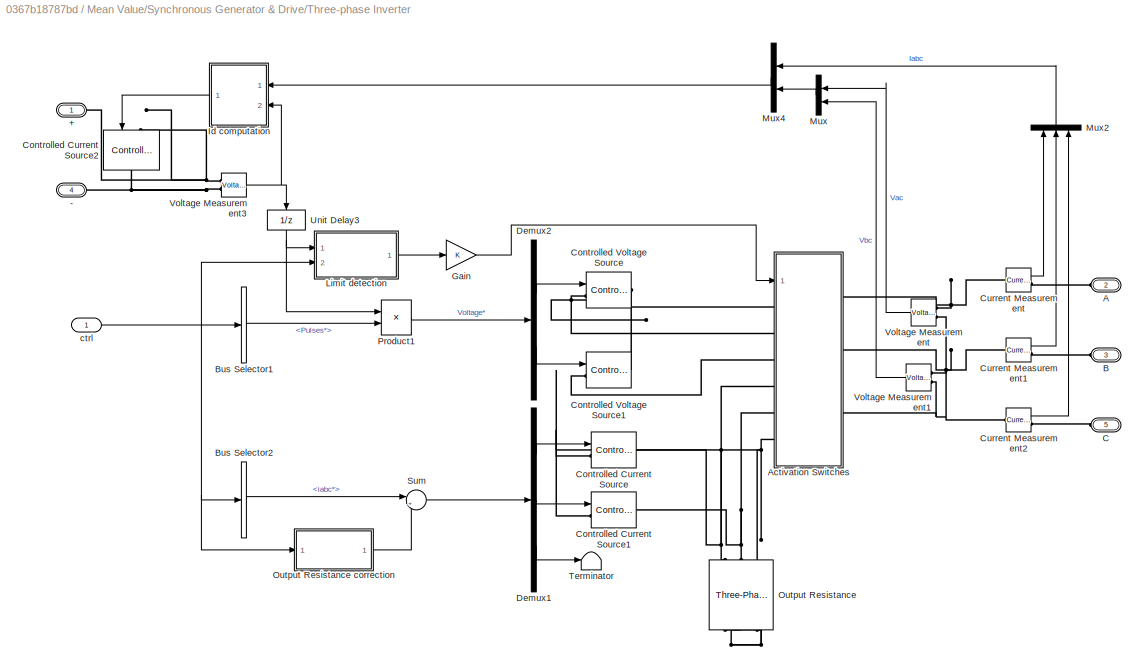
BLOCK [SubSystem] Mean Value/Synchronous Generator & Drive/Three-phase Inverter
  OpenFcn = power_openblockproxy();
  Ports = [1, 0, 0, 0, 0, 3, 2]
  RequestExecContextInheritance = off
BLOCK [PMIOPort] Mean Value/Synchronous Generator & Drive/Three-phase Inverter/+
  Side = Right
BLOCK [PMIOPort] Mean Value/Synchronous Generator & Drive/Three-phase Inverter/-
  Port = 4
  Side = Right
BLOCK [PMIOPort] Mean Value/Synchronous Generator & Drive/Three-phase Inverter/A
  Port = 2
  Side = Left
BLOCK [SubSystem] Mean Value/Synchronous Generator & Drive/Three-phase Inverter/Activation Switches
  Ports = [1, 0, 0, 0, 0, 6, 3]
  RequestExecContextInheritance = off
BLOCK [PMIOPort] Mean Value/Synchronous Generator & Drive/Three-phase Inverter/Activation Switches/A1
  Side = Left
BLOCK [PMIOPort] Mean Value/Synchronous Generator & Drive/Three-phase Inverter/Activation Switches/A2
  Port = 7
  Side = Left
BLOCK [PMIOPort] Mean Value/Synchronous Generator & Drive/Three-phase Inverter/Activation Switches/B1
  Port = 3
  Side = Left
BLOCK [PMIOPort] Mean Value/Synchronous Generator & Drive/Three-phase Inverter/Activation Switches/B2
  Port = 8
  Side = Left
BLOCK [PMIOPort] Mean Value/Synchronous Generator & Drive/Three-phase Inverter/Activation Switches/C1
  Port = 5
  Side = Left
BLOCK [PMIOPort] Mean Value/Synchronous Generator & Drive/Three-phase Inverter/Activation Switches/C2
  Port = 9
  Side = Left
BLOCK [Reference] Mean Value/Synchronous Generator & Drive/Three-phase Inverter/Activation Switches/Ideal Switch1  REF=powerlib/Power
Electronics/Ideal Switch
  Ports = [1, 0, 0, 0, 0, 1, 1]
  SourceBlock = powerlib/Power\nElectronics/Ideal Switch
  SourceProductBaseCode = PS
  SourceType = Ideal Switch
BLOCK [Reference] Mean Value/Synchronous Generator & Drive/Three-phase Inverter/Activation Switches/Ideal Switch2  REF=powerlib/Power
Electronics/Ideal Switch
  Ports = [1, 0, 0, 0, 0, 1, 1]
  SourceBlock = powerlib/Power\nElectronics/Ideal Switch
  SourceProductBaseCode = PS
  SourceType = Ideal Switch
BLOCK [Reference] Mean Value/Synchronous Generator & Drive/Three-phase Inverter/Activation Switches/Ideal Switch3  REF=powerlib/Power
Electronics/Ideal Switch
  Ports = [1, 0, 0, 0, 0, 1, 1]
  SourceBlock = powerlib/Power\nElectronics/Ideal Switch
  SourceProductBaseCode = PS
  SourceType = Ideal Switch
BLOCK [Reference] Mean Value/Synchronous Generator & Drive/Three-phase Inverter/Activation Switches/Ideal Switch4  REF=powerlib/Power
Electronics/Ideal Switch
  Ports = [1, 0, 0, 0, 0, 1, 1]
  SourceBlock = powerlib/Power\nElectronics/Ideal Switch
  SourceProductBaseCode = PS
  SourceType = Ideal Switch
BLOCK [Reference] Mean Value/Synchronous Generator & Drive/Three-phase Inverter/Activation Switches/Ideal Switch5  REF=powerlib/Power
Electronics/Ideal Switch
  Ports = [1, 0, 0, 0, 0, 1, 1]
  SourceBlock = powerlib/Power\nElectronics/Ideal Switch
  SourceProductBaseCode = PS
  SourceType = Ideal Switch
BLOCK [Reference] Mean Value/Synchronous Generator & Drive/Three-phase Inverter/Activation Switches/Ideal Switch6  REF=powerlib/Power
Electronics/Ideal Switch
  Ports = [1, 0, 0, 0, 0, 1, 1]
  SourceBlock = powerlib/Power\nElectronics/Ideal Switch
  SourceProductBaseCode = PS
  SourceType = Ideal Switch
BLOCK [Logic] Mean Value/Synchronous Generator & Drive/Three-phase Inverter/Activation Switches/Logical Operator
  AllPortsSameDT = off
  Operator = NOT
  OutDataTypeStr = boolean
  Ports = [1, 1]
BLOCK [PMIOPort] Mean Value/Synchronous Generator & Drive/Three-phase Inverter/Activation Switches/a
  Port = 2
  Side = Right
BLOCK [PMIOPort] Mean Value/Synchronous Generator & Drive/Three-phase Inverter/Activation Switches/b
  Port = 4
  Side = Right
BLOCK [PMIOPort] Mean Value/Synchronous Generator & Drive/Three-phase Inverter/Activation Switches/c
  Port = 6
  Side = Right
BLOCK [Inport] Mean Value/Synchronous Generator & Drive/Three-phase Inverter/Activation Switches/gate
BLOCK [PMIOPort] Mean Value/Synchronous Generator & Drive/Three-phase Inverter/B
  Port = 3
  Side = Left
BLOCK [BusSelector] Mean Value/Synchronous Generator & Drive/Three-phase Inverter/Bus Selector1
  OutputSignals = Signals*.Pulses*
  Ports = [1, 1]
BLOCK [BusSelector] Mean Value/Synchronous Generator & Drive/Three-phase Inverter/Bus Selector2
  OutputSignals = Signals*.iabc*
  Ports = [1, 1]
BLOCK [PMIOPort] Mean Value/Synchronous Generator & Drive/Three-phase Inverter/C
  Port = 5
  Side = Left
BLOCK [Reference] Mean Value/Synchronous Generator & Drive/Three-phase Inverter/Controlled Current Source  REF=powerlib/Electrical
Sources/Controlled Current Source
  Ports = [1, 0, 0, 0, 0, 1, 1]
  SourceBlock = powerlib/Electrical\nSources/Controlled Current Source
  SourceProductBaseCode = PS
  SourceType = Controlled Current Source
BLOCK [Reference] Mean Value/Synchronous Generator & Drive/Three-phase Inverter/Controlled Current Source1  REF=powerlib/Electrical
Sources/Controlled Current Source
  Ports = [1, 0, 0, 0, 0, 1, 1]
  SourceBlock = powerlib/Electrical\nSources/Controlled Current Source
  SourceProductBaseCode = PS
  SourceType = Controlled Current Source
BLOCK [Reference] Mean Value/Synchronous Generator & Drive/Three-phase Inverter/Controlled Current Source2  REF=powerlib/Electrical
Sources/Controlled Current Source
  NameLocation = left
  Ports = [1, 0, 0, 0, 0, 1, 1]
  SourceBlock = powerlib/Electrical\nSources/Controlled Current Source
  SourceProductBaseCode = PS
  SourceType = Controlled Current Source
BLOCK [Reference] Mean Value/Synchronous Generator & Drive/Three-phase Inverter/Controlled Voltage Source  REF=powerlib/Electrical
Sources/Controlled Voltage Source
  Ports = [1, 0, 0, 0, 0, 1, 1]
  SourceBlock = powerlib/Electrical\nSources/Controlled Voltage Source
  SourceProductBaseCode = PS
  SourceType = Controlled Voltage Source
BLOCK [Reference] Mean Value/Synchronous Generator & Drive/Three-phase Inverter/Controlled Voltage Source1  REF=powerlib/Electrical
Sources/Controlled Voltage Source
  Ports = [1, 0, 0, 0, 0, 1, 1]
  SourceBlock = powerlib/Electrical\nSources/Controlled Voltage Source
  SourceProductBaseCode = PS
  SourceType = Controlled Voltage Source
BLOCK [Reference] Mean Value/Synchronous Generator & Drive/Three-phase Inverter/Current Measurement  REF=powerlib/Measurements/Current Measurement
  Ports = [0, 1, 0, 0, 0, 1, 1]
  SourceBlock = powerlib/Measurements/Current Measurement
  SourceProductBaseCode = PS
  SourceType = Current Measurement
BLOCK [Reference] Mean Value/Synchronous Generator & Drive/Three-phase Inverter/Current Measurement1  REF=powerlib/Measurements/Current Measurement
  Ports = [0, 1, 0, 0, 0, 1, 1]
  SourceBlock = powerlib/Measurements/Current Measurement
  SourceProductBaseCode = PS
  SourceType = Current Measurement
BLOCK [Reference] Mean Value/Synchronous Generator & Drive/Three-phase Inverter/Current Measurement2  REF=powerlib/Measurements/Current Measurement
  Ports = [0, 1, 0, 0, 0, 1, 1]
  SourceBlock = powerlib/Measurements/Current Measurement
  SourceProductBaseCode = PS
  SourceType = Current Measurement
BLOCK [Demux] Mean Value/Synchronous Generator & Drive/Three-phase Inverter/Demux1
  DisplayOption = none
  Outputs = 3
  Ports = [1, 3]
BLOCK [Demux] Mean Value/Synchronous Generator & Drive/Three-phase Inverter/Demux2
  DisplayOption = none
  Outputs = 2
  Ports = [1, 2]
BLOCK [Gain] Mean Value/Synchronous Generator & Drive/Three-phase Inverter/Gain
BLOCK [SubSystem] Mean Value/Synchronous Generator & Drive/Three-phase Inverter/Id computation
  NameLocation = top
  Ports = [2, 1]
  RequestExecContextInheritance = off
BLOCK [SubSystem] Mean Value/Synchronous Generator & Drive/Three-phase Inverter/Id computation/Demux
  Ports = [1, 4]
  RequestExecContextInheritance = off
BLOCK [Demux] Mean Value/Synchronous Generator & Drive/Three-phase Inverter/Id computation/Demux/Demux1
  DisplayOption = none
  Outputs = 5
  Ports = [1, 5]
BLOCK [Outport] Mean Value/Synchronous Generator & Drive/Three-phase Inverter/Id computation/Demux/Ia
  Port = 2
  VectorParamsAs1DForOutWhenUnconnected = off
BLOCK [Outport] Mean Value/Synchronous Generator & Drive/Three-phase Inverter/Id computation/Demux/Ib
  Port = 4
  VectorParamsAs1DForOutWhenUnconnected = off
BLOCK [Terminator] Mean Value/Synchronous Generator & Drive/Three-phase Inverter/Id computation/Demux/Terminator
BLOCK [Outport] Mean Value/Synchronous Generator & Drive/Three-phase Inverter/Id computation/Demux/Vac
  VectorParamsAs1DForOutWhenUnconnected = off
BLOCK [Outport] Mean Value/Synchronous Generator & Drive/Three-phase Inverter/Id computation/Demux/Vbc
  Port = 3
  VectorParamsAs1DForOutWhenUnconnected = off
BLOCK [Inport] Mean Value/Synchronous Generator & Drive/Three-phase Inverter/Id computation/Demux/m
BLOCK [SubSystem] Mean Value/Synchronous Generator & Drive/Three-phase Inverter/Id computation/Demux1
  Ports = [1, 3]
  RequestExecContextInheritance = off
BLOCK [Demux] Mean Value/Synchronous Generator & Drive/Three-phase Inverter/Id computation/Demux1/Demux1
  DisplayOption = none
  Outputs = 5
  Ports = [1, 5]
BLOCK [Outport] Mean Value/Synchronous Generator & Drive/Three-phase Inverter/Id computation/Demux1/Ia
  VectorParamsAs1DForOutWhenUnconnected = off
BLOCK [Outport] Mean Value/Synchronous Generator & Drive/Three-phase Inverter/Id computation/Demux1/Ib
  Port = 2
  VectorParamsAs1DForOutWhenUnconnected = off
BLOCK [Outport] Mean Value/Synchronous Generator & Drive/Three-phase Inverter/Id computation/Demux1/Ic
  Port = 3
  VectorParamsAs1DForOutWhenUnconnected = off
BLOCK [Terminator] Mean Value/Synchronous Generator & Drive/Three-phase Inverter/Id computation/Demux1/Terminator1
BLOCK [Terminator] Mean Value/Synchronous Generator & Drive/Three-phase Inverter/Id computation/Demux1/Terminator2
BLOCK [Inport] Mean Value/Synchronous Generator & Drive/Three-phase Inverter/Id computation/Demux1/m
BLOCK [Gain] Mean Value/Synchronous Generator & Drive/Three-phase Inverter/Id computation/Gain
  Gain = Ron
BLOCK [Outport] Mean Value/Synchronous Generator & Drive/Three-phase Inverter/Id computation/Id
  VectorParamsAs1DForOutWhenUnconnected = off
BLOCK [Math] Mean Value/Synchronous Generator & Drive/Three-phase Inverter/Id computation/Math Function
  Operator = magnitude^2
  Ports = [1, 1]
  SignedPower = on
BLOCK [Math] Mean Value/Synchronous Generator & Drive/Three-phase Inverter/Id computation/Math Function1
  Operator = magnitude^2
  Ports = [1, 1]
  SignedPower = on
BLOCK [Math] Mean Value/Synchronous Generator & Drive/Three-phase Inverter/Id computation/Math Function2
  Operator = magnitude^2
  Ports = [1, 1]
  SignedPower = on
BLOCK [Product] Mean Value/Synchronous Generator & Drive/Three-phase Inverter/Id computation/Product1
  Inputs = */
  OutDataTypeStr = Inherit: Same as first input
  Ports = [2, 1]
  SaturateOnIntegerOverflow = on
BLOCK [Sum] Mean Value/Synchronous Generator & Drive/Three-phase Inverter/Id computation/Sum1
  Inputs = +++
  Ports = [3, 1]
  SaturateOnIntegerOverflow = on
BLOCK [Sum] Mean Value/Synchronous Generator & Drive/Three-phase Inverter/Id computation/Sum2
  Inputs = |++
  Ports = [2, 1]
  SaturateOnIntegerOverflow = on
BLOCK [Sum] Mean Value/Synchronous Generator & Drive/Three-phase Inverter/Id computation/Sum3
  Ports = [2, 1]
  SaturateOnIntegerOverflow = on
BLOCK [UnitDelay] Mean Value/Synchronous Generator & Drive/Three-phase Inverter/Id computation/Unit Delay1
  HasFrameUpgradeWarning = on
  SampleTime = Ts
BLOCK [UnitDelay] Mean Value/Synchronous Generator & Drive/Three-phase Inverter/Id computation/Unit Delay4
  HasFrameUpgradeWarning = on
  InitialCondition = 1
  SampleTime = Ts
BLOCK [Product] Mean Value/Synchronous Generator & Drive/Three-phase Inverter/Id computation/Vac x Ia
  OutDataTypeStr = Inherit: Same as first input
  Ports = [2, 1]
  SaturateOnIntegerOverflow = on
BLOCK [Product] Mean Value/Synchronous Generator & Drive/Three-phase Inverter/Id computation/Vbc x Ib
  OutDataTypeStr = Inherit: Same as first input
  Ports = [2, 1]
  SaturateOnIntegerOverflow = on
BLOCK [Inport] Mean Value/Synchronous Generator & Drive/Three-phase Inverter/Id computation/Vdc
  Port = 2
BLOCK [Saturate] Mean Value/Synchronous Generator & Drive/Three-phase Inverter/Id computation/Zero avoider
  LowerLimit = 1
  UpperLimit = inf
BLOCK [Inport] Mean Value/Synchronous Generator & Drive/Three-phase Inverter/Id computation/m
BLOCK [SubSystem] Mean Value/Synchronous Generator & Drive/Three-phase Inverter/Limit detection
  Ports = [2, 1]
  RequestExecContextInheritance = off
BLOCK [BusSelector] Mean Value/Synchronous Generator & Drive/Three-phase Inverter/Limit detection/Bus Selector1
  OutputAsBus = on
  OutputSignals = m.Stator current is_d (A),m.Stator current is_q (A),m.Rotor speed wm (rad/s)
  Ports = [1, 1]
BLOCK [DiscreteTransferFcn] Mean Value/Synchronous Generator & Drive/Three-phase Inverter/Limit detection/Discrete Transfer Fcn1
  Denominator = [1 -exp(-Ts*Fcs*2*pi)]
  InputPortMap = u0
  Numerator = [1-exp(-Ts*Fcs*2*pi)]
  Ports = [1, 1]
  SampleTime = Ts
BLOCK [DiscreteTransferFcn] Mean Value/Synchronous Generator & Drive/Three-phase Inverter/Limit detection/Discrete Transfer Fcn3
  Denominator = [1 -exp(-Ts*Fcs*2*pi)]
  InputPortMap = u0
  Numerator = [1-exp(-Ts*Fcs*2*pi)]
  Ports = [1, 1]
  SampleTime = Ts
BLOCK [Gain] Mean Value/Synchronous Generator & Drive/Three-phase Inverter/Limit detection/Gain1
  Gain = 0.9
  OutDataTypeStr = Inherit: Same as input
  ParamDataTypeStr = Inherit: Same as input
  SaturateOnIntegerOverflow = on
BLOCK [Fcn] Mean Value/Synchronous Generator & Drive/Three-phase Inverter/Limit detection/Internal Vcc 
  Expr = pi/2*sqrt((Resistance*u(1)-Lq*p*u(3)*u(2))^2+(Resistance*u(2)+Ld*p*u(3)*u(1)+Flux*p*u(3))^2)
BLOCK [Outport] Mean Value/Synchronous Generator & Drive/Three-phase Inverter/Limit detection/Limit
  VectorParamsAs1DForOutWhenUnconnected = off
BLOCK [RelationalOperator] Mean Value/Synchronous Generator & Drive/Three-phase Inverter/Limit detection/Relational Operator
  InputSameDT = off
  Operator = >
  OutDataTypeStr = boolean
  Ports = [2, 1]
BLOCK [RelationalOperator] Mean Value/Synchronous Generator & Drive/Three-phase Inverter/Limit detection/Relational Operator2
  InputSameDT = off
  Operator = <
  OutDataTypeStr = boolean
  Ports = [2, 1]
BLOCK [Reference] Mean Value/Synchronous Generator & Drive/Three-phase Inverter/Limit detection/S-R Flip-Flop  REF=simulink_extras/Flip Flops/S-R
Flip-Flop
  Ports = [2, 2]
  SourceBlock = simulink_extras/Flip Flops/S-R\nFlip-Flop
  SourceProductBaseCode = SL
  SourceType = SRFlipFlop
BLOCK [Terminator] Mean Value/Synchronous Generator & Drive/Three-phase Inverter/Limit detection/Terminator
BLOCK [Inport] Mean Value/Synchronous Generator & Drive/Three-phase Inverter/Limit detection/Vcc
BLOCK [Inport] Mean Value/Synchronous Generator & Drive/Three-phase Inverter/Limit detection/ctrl
  NameLocation = top
  Port = 2
BLOCK [Mux] Mean Value/Synchronous Generator & Drive/Three-phase Inverter/Mux
  DisplayOption = bar
  Inputs = 2
  NameLocation = top
  Ports = [2, 1]
BLOCK [Mux] Mean Value/Synchronous Generator & Drive/Three-phase Inverter/Mux2
  DisplayOption = bar
  Inputs = 3
  NameLocation = right
  Ports = [3, 1]
BLOCK [Mux] Mean Value/Synchronous Generator & Drive/Three-phase Inverter/Mux4
  DisplayOption = bar
  Inputs = 2
  NameLocation = top
  Ports = [2, 1]
BLOCK [Reference] Mean Value/Synchronous Generator & Drive/Three-phase Inverter/Output Resistance  REF=powerlib/Elements/Three-Phase
Series RLC Branch
  AttributesFormatString = \n
  NameLocation = right
  Ports = [0, 0, 0, 0, 0, 3, 3]
  SourceBlock = powerlib/Elements/Three-Phase\nSeries RLC Branch
  SourceProductBaseCode = PS
  SourceType = Three-Phase Series RLC Branch
BLOCK [SubSystem] Mean Value/Synchronous Generator & Drive/Three-phase Inverter/Output Resistance correction
  Ports = [1, 1]
  RequestExecContextInheritance = off
BLOCK [Gain] Mean Value/Synchronous Generator & Drive/Three-phase Inverter/Output Resistance correction/1//R
  Gain = 1/(100*Resistance)
  OutDataTypeStr = Inherit: Same as input
  ParamDataTypeStr = Inherit: Same as input
  SaturateOnIntegerOverflow = on
BLOCK [BusSelector] Mean Value/Synchronous Generator & Drive/Three-phase Inverter/Output Resistance correction/Bus Selector1
  OutputSignals = m.Stator voltage Vs_d (V),m.Stator voltage Vs_q (V),m.Rotor angle thetam (rad)
  Ports = [1, 3]
BLOCK [Constant] Mean Value/Synchronous Generator & Drive/Three-phase Inverter/Output Resistance correction/Constant
  Value = 0
BLOCK [DiscreteTransferFcn] Mean Value/Synchronous Generator & Drive/Three-phase Inverter/Output Resistance correction/Discrete Transfer Fcn1
  Denominator = [1 -exp(-Ts/.001)]
  InputPortMap = u0
  Numerator = [1-exp(-Ts/.001)]
  Ports = [1, 1]
  SampleTime = Ts
BLOCK [DiscreteTransferFcn] Mean Value/Synchronous Generator & Drive/Three-phase Inverter/Output Resistance correction/Discrete Transfer Fcn2
  Denominator = [1 -exp(-Ts/.001)]
  InputPortMap = u0
  Numerator = [1-exp(-Ts/.001)]
  Ports = [1, 1]
  SampleTime = Ts
BLOCK [Fcn] Mean Value/Synchronous Generator & Drive/Three-phase Inverter/Output Resistance correction/Fcn
  Expr = sin(u)
BLOCK [Fcn] Mean Value/Synchronous Generator & Drive/Three-phase Inverter/Output Resistance correction/Fcn1
  Expr = cos(u)
BLOCK [Outport] Mean Value/Synchronous Generator & Drive/Three-phase Inverter/Output Resistance correction/Iabc_r 
  VectorParamsAs1DForOutWhenUnconnected = off
BLOCK [Mux] Mean Value/Synchronous Generator & Drive/Three-phase Inverter/Output Resistance correction/Mux4
  DisplayOption = bar
  Inputs = 3
  Ports = [3, 1]
BLOCK [Mux] Mean Value/Synchronous Generator & Drive/Three-phase Inverter/Output Resistance correction/Mux5
  DisplayOption = bar
  Inputs = 2
  Ports = [2, 1]
BLOCK [Inport] Mean Value/Synchronous Generator & Drive/Three-phase Inverter/Output Resistance correction/ctrl
  NameLocation = top
BLOCK [Reference] Mean Value/Synchronous Generator & Drive/Three-phase Inverter/Output Resistance correction/dq0_to_abc Transformation  REF=powerlib_extras/Measurements/dq0_to_abc
Transformation
  Ports = [2, 1]
  SourceBlock = powerlib_extras/Measurements/dq0_to_abc\nTransformation
  SourceProductBaseCode = PS
  SourceType = dq0 to abc Transformation
BLOCK [Gain] Mean Value/Synchronous Generator & Drive/Three-phase Inverter/Output Resistance correction/poles
  Gain = p
  OutDataTypeStr = Inherit: Same as input
  ParamDataTypeStr = Inherit: Same as input
  SaturateOnIntegerOverflow = on
BLOCK [Product] Mean Value/Synchronous Generator & Drive/Three-phase Inverter/Product1
  Ports = [2, 1]
  RndMeth = Zero
BLOCK [Sum] Mean Value/Synchronous Generator & Drive/Three-phase Inverter/Sum
  Inputs = |++
  Ports = [2, 1]
BLOCK [Terminator] Mean Value/Synchronous Generator & Drive/Three-phase Inverter/Terminator
BLOCK [UnitDelay] Mean Value/Synchronous Generator & Drive/Three-phase Inverter/Unit Delay3
  HasFrameUpgradeWarning = on
  NameLocation = left
  SampleTime = Ts
BLOCK [Reference] Mean Value/Synchronous Generator & Drive/Three-phase Inverter/Voltage Measurement  REF=powerlib/Measurements/Voltage Measurement
  NameLocation = top
  Ports = [0, 1, 0, 0, 0, 2]
  SourceBlock = powerlib/Measurements/Voltage Measurement
  SourceProductBaseCode = PS
  SourceType = Voltage Measurement
BLOCK [Reference] Mean Value/Synchronous Generator & Drive/Three-phase Inverter/Voltage Measurement1  REF=powerlib/Measurements/Voltage Measurement
  NameLocation = top
  Ports = [0, 1, 0, 0, 0, 2]
  SourceBlock = powerlib/Measurements/Voltage Measurement
  SourceProductBaseCode = PS
  SourceType = Voltage Measurement
BLOCK [Reference] Mean Value/Synchronous Generator & Drive/Three-phase Inverter/Voltage Measurement3  REF=powerlib/Measurements/Voltage Measurement
  Ports = [0, 1, 0, 0, 0, 2]
  SourceBlock = powerlib/Measurements/Voltage Measurement
  SourceProductBaseCode = PS
  SourceType = Voltage Measurement
BLOCK [Inport] Mean Value/Synchronous Generator & Drive/Three-phase Inverter/ctrl
BLOCK [SubSystem] Mean Value/Synchronous Generator & Drive/VECT
  NameLocation = top
  Ports = [3, 1]
  RequestExecContextInheritance = off
BLOCK [BusCreator] Mean Value/Synchronous Generator & Drive/VECT/Bus Creator
  DisplayOption = bar
  InheritFromInputs = on
  Inputs = 2
  Ports = [2, 1]
BLOCK [Constant] Mean Value/Synchronous Generator & Drive/VECT/Constant1
  Value = 0
BLOCK [Constant] Mean Value/Synchronous Generator & Drive/VECT/Constant2
BLOCK [SubSystem] Mean Value/Synchronous Generator & Drive/VECT/Current Regulator
  NameLocation = top
  Ports = [2, 1]
  RequestExecContextInheritance = off
BLOCK [Demux] Mean Value/Synchronous Generator & Drive/VECT/Current Regulator/Demux1
  DisplayOption = none
  Outputs = 3
  Ports = [1, 3]
BLOCK [Demux] Mean Value/Synchronous Generator & Drive/VECT/Current Regulator/Demux2
  DisplayOption = none
  Outputs = 3
  Ports = [1, 3]
BLOCK [Inport] Mean Value/Synchronous Generator & Drive/VECT/Current Regulator/Iabc
  Port = 2
BLOCK [Inport] Mean Value/Synchronous Generator & Drive/VECT/Current Regulator/Iabc*
BLOCK [Mux] Mean Value/Synchronous Generator & Drive/VECT/Current Regulator/Mux1
  Inputs = 2
  Ports = [2, 1]
BLOCK [Outport] Mean Value/Synchronous Generator & Drive/VECT/Current Regulator/Pulses
  InitialOutput = 0
  VectorParamsAs1DForOutWhenUnconnected = off
BLOCK [Relay] Mean Value/Synchronous Generator & Drive/VECT/Current Regulator/Relay
  OffSwitchValue = 0
  OnSwitchValue = 0
BLOCK [Relay] Mean Value/Synchronous Generator & Drive/VECT/Current Regulator/Relay1
  OffSwitchValue = 0
  OnSwitchValue = 0
BLOCK [Relay] Mean Value/Synchronous Generator & Drive/VECT/Current Regulator/Relay2
  OffSwitchValue = 0
  OnSwitchValue = 0
BLOCK [Sum] Mean Value/Synchronous Generator & Drive/VECT/Current Regulator/Sum
  IconShape = rectangular
  InputSameDT = on
  Inputs = -+
  OutDataTypeStr = Inherit: Same as first input
  Ports = [2, 1]
  SaturateOnIntegerOverflow = on
BLOCK [Sum] Mean Value/Synchronous Generator & Drive/VECT/Current Regulator/Sum1
  IconShape = rectangular
  InputSameDT = on
  Inputs = -+
  OutDataTypeStr = Inherit: Same as first input
  Ports = [2, 1]
  SaturateOnIntegerOverflow = on
BLOCK [Sum] Mean Value/Synchronous Generator & Drive/VECT/Current Regulator/Sum2
  IconShape = rectangular
  InputSameDT = on
  Inputs = -+
  OutDataTypeStr = Inherit: Same as first input
  Ports = [2, 1]
  SaturateOnIntegerOverflow = on
BLOCK [Sum] Mean Value/Synchronous Generator & Drive/VECT/Current Regulator/Sum3
  IconShape = rectangular
  Inputs = +-
  Ports = [2, 1]
BLOCK [Sum] Mean Value/Synchronous Generator & Drive/VECT/Current Regulator/Sum4
  IconShape = rectangular
  Inputs = +-
  Ports = [2, 1]
BLOCK [SubSystem] Mean Value/Synchronous Generator & Drive/VECT/DQ-ABC
  NameLocation = top
  Ports = [3, 1]
  RequestExecContextInheritance = off
BLOCK [Fcn] Mean Value/Synchronous Generator & Drive/VECT/DQ-ABC/Fcn
  Expr = sin(u)
BLOCK [Fcn] Mean Value/Synchronous Generator & Drive/VECT/DQ-ABC/Fcn1
  Expr = cos(u)
BLOCK [Gain] Mean Value/Synchronous Generator & Drive/VECT/DQ-ABC/Gain2
  OutDataTypeStr = Inherit: Same as input
  ParamDataTypeStr = Inherit: Same as input
  SaturateOnIntegerOverflow = on
BLOCK [Gain] Mean Value/Synchronous Generator & Drive/VECT/DQ-ABC/Gain3
  OutDataTypeStr = Inherit: Same as input
  ParamDataTypeStr = Inherit: Same as input
  SaturateOnIntegerOverflow = on
BLOCK [Gain] Mean Value/Synchronous Generator & Drive/VECT/DQ-ABC/Gain4
  OutDataTypeStr = Inherit: Same as input
  ParamDataTypeStr = Inherit: Same as input
  SaturateOnIntegerOverflow = on
BLOCK [Outport] Mean Value/Synchronous Generator & Drive/VECT/DQ-ABC/Iabc*
  InitialOutput = 0
  VectorParamsAs1DForOutWhenUnconnected = off
BLOCK [Inport] Mean Value/Synchronous Generator & Drive/VECT/DQ-ABC/Id* 
  Port = 2
BLOCK [Inport] Mean Value/Synchronous Generator & Drive/VECT/DQ-ABC/Iq* 
BLOCK [Mux] Mean Value/Synchronous Generator & Drive/VECT/DQ-ABC/Mux
  Ports = [4, 1]
BLOCK [Mux] Mean Value/Synchronous Generator & Drive/VECT/DQ-ABC/Mux2
  Inputs = 3
  Ports = [3, 1]
BLOCK [Inport] Mean Value/Synchronous Generator & Drive/VECT/DQ-ABC/Teta
  Port = 3
BLOCK [Fcn] Mean Value/Synchronous Generator & Drive/VECT/DQ-ABC/ia
  Expr = -u[3]*u[2] + u[4]*u[1]
  NameLocation = top
BLOCK [Fcn] Mean Value/Synchronous Generator & Drive/VECT/DQ-ABC/ib
  Expr = (-u[1]+1.7320508*u[2])*u[4]*0.5+(u[2]+1.7320508*u[1])*u[3]*0.5
BLOCK [Sum] Mean Value/Synchronous Generator & Drive/VECT/DQ-ABC/ic
  IconShape = rectangular
  InputSameDT = on
  Inputs = --
  OutDataTypeStr = Inherit: Same as first input
  Ports = [2, 1]
  SaturateOnIntegerOverflow = on
BLOCK [Gain] Mean Value/Synchronous Generator & Drive/VECT/Gain1
  Gain = nb_p
  OutDataTypeStr = Inherit: Same as input
  ParamDataTypeStr = Inherit: Same as input
  SaturateOnIntegerOverflow = on
BLOCK [Inport] Mean Value/Synchronous Generator & Drive/VECT/I_abc
  Port = 3
BLOCK [Product] Mean Value/Synchronous Generator & Drive/VECT/Product
  Ports = [2, 1]
  RndMeth = Zero
BLOCK [Product] Mean Value/Synchronous Generator & Drive/VECT/Product1
  Ports = [2, 1]
  RndMeth = Zero
BLOCK [RateTransition] Mean Value/Synchronous Generator & Drive/VECT/Rate Transition1
BLOCK [RateTransition] Mean Value/Synchronous Generator & Drive/VECT/Rate Transition2
BLOCK [Inport] Mean Value/Synchronous Generator & Drive/VECT/Torque*
BLOCK [UnitDelay] Mean Value/Synchronous Generator & Drive/VECT/Unit Delay1
  HasFrameUpgradeWarning = on
  SampleTime = Ts
BLOCK [SubSystem] Mean Value/Synchronous Generator & Drive/VECT/Zero crossing detector
  NameLocation = top
  Ports = [2, 1]
  RequestExecContextInheritance = off
BLOCK [Reference] Mean Value/Synchronous Generator & Drive/VECT/Zero crossing detector/D Latch  REF=simulink_extras/Flip Flops/D Latch
  Ports = [2, 2]
  SourceBlock = simulink_extras/Flip Flops/D Latch
  SourceProductBaseCode = SL
  SourceType = DLatch
BLOCK [Reference] Mean Value/Synchronous Generator & Drive/VECT/Zero crossing detector/D Latch1  REF=simulink_extras/Flip Flops/D Latch
  Ports = [2, 2]
  SourceBlock = simulink_extras/Flip Flops/D Latch
  SourceProductBaseCode = SL
  SourceType = DLatch
BLOCK [Reference] Mean Value/Synchronous Generator & Drive/VECT/Zero crossing detector/D Latch2  REF=simulink_extras/Flip Flops/D Latch
  Ports = [2, 2]
  SourceBlock = simulink_extras/Flip Flops/D Latch
  SourceProductBaseCode = SL
  SourceType = DLatch
BLOCK [DataTypeConversion] Mean Value/Synchronous Generator & Drive/VECT/Zero crossing detector/Data Type Conversion
  RndMeth = Floor
  SaturateOnIntegerOverflow = off
BLOCK [DataTypeConversion] Mean Value/Synchronous Generator & Drive/VECT/Zero crossing detector/Data Type Conversion2
  RndMeth = Floor
  SaturateOnIntegerOverflow = off
BLOCK [Demux] Mean Value/Synchronous Generator & Drive/VECT/Zero crossing detector/Demux
  Outputs = 3
  Ports = [1, 3]
BLOCK [Inport] Mean Value/Synchronous Generator & Drive/VECT/Zero crossing detector/En
  Port = 2
BLOCK [Outport] Mean Value/Synchronous Generator & Drive/VECT/Zero crossing detector/Enable
  VectorParamsAs1DForOutWhenUnconnected = off
BLOCK [HitCross] Mean Value/Synchronous Generator & Drive/VECT/Zero crossing detector/Hit Crossing
  Ports = [1, 1]
BLOCK [Inport] Mean Value/Synchronous Generator & Drive/VECT/Zero crossing detector/Iabc*
BLOCK [Mux] Mean Value/Synchronous Generator & Drive/VECT/Zero crossing detector/Mux
  DisplayOption = bar
  Inputs = 3
  Ports = [3, 1]
BLOCK [Terminator] Mean Value/Synchronous Generator & Drive/VECT/Zero crossing detector/Terminator
BLOCK [Terminator] Mean Value/Synchronous Generator & Drive/VECT/Zero crossing detector/Terminator1
BLOCK [Terminator] Mean Value/Synchronous Generator & Drive/VECT/Zero crossing detector/Terminator2
BLOCK [ZeroOrderHold] Mean Value/Synchronous Generator & Drive/VECT/Zero-Order Hold1
  SampleTime = Ts_vect
BLOCK [ZeroOrderHold] Mean Value/Synchronous Generator & Drive/VECT/Zero-Order Hold2
  SampleTime = Ts_vect
BLOCK [ZeroOrderHold] Mean Value/Synchronous Generator & Drive/VECT/Zero-Order Hold3
  SampleTime = Ts_vect
BLOCK [ZeroOrderHold] Mean Value/Synchronous Generator & Drive/VECT/Zero-Order Hold4
  SampleTime = Ts_vect
BLOCK [ZeroOrderHold] Mean Value/Synchronous Generator & Drive/VECT/Zero-Order Hold5
  SampleTime = Ts_vect
BLOCK [Outport] Mean Value/Synchronous Generator & Drive/VECT/sig*
  VectorParamsAs1DForOutWhenUnconnected = off
BLOCK [Gain] Mean Value/Synchronous Generator & Drive/VECT/te2iq
  Gain = 2/(3*nb_p*lambda)
  NameLocation = top
  OutDataTypeStr = Inherit: Same as input
  ParamDataTypeStr = Inherit: Same as input
  SaturateOnIntegerOverflow = on
BLOCK [Inport] Mean Value/Synchronous Generator & Drive/VECT/teta
  Port = 2
BLOCK [SubSystem] Mean Value/Synchronous Motor & Drive
  Ports = [1, 0, 0, 0, 0, 0, 3]
  RequestExecContextInheritance = off
BLOCK [PMIOPort] Mean Value/Synchronous Motor & Drive/+
  Side = Right
BLOCK [PMIOPort] Mean Value/Synchronous Motor & Drive/-
  Port = 2
  Side = Right
BLOCK [Reference] Mean Value/Synchronous Motor & Drive/500 Vdc 50kW PMSM  REF=powerlib/Machines/Permanent Magnet
Synchronous Machine
  AttributesFormatString = \n
  Ports = [1, 1, 0, 0, 0, 3]
  SourceBlock = powerlib/Machines/Permanent Magnet\nSynchronous Machine
  SourceProductBaseCode = PS
  SourceType = Permanent Magnet Synchronous Machine
BLOCK [BusSelector] Mean Value/Synchronous Motor & Drive/Bus Selector
  NameLocation = top
  OutputSignals = Rotor speed wm (rad/s),Rotor angle thetam (rad)
  Ports = [1, 2]
BLOCK [SubSystem] Mean Value/Synchronous Motor & Drive/GF
  Ports = [1, 1]
  RequestExecContextInheritance = off
BLOCK [Goto] Mean Value/Synchronous Motor & Drive/GF/Goto
  GotoTag = Mot_TReq_SYS
  TagVisibility = global
BLOCK [Inport] Mean Value/Synchronous Motor & Drive/GF/In1
BLOCK [Outport] Mean Value/Synchronous Motor & Drive/GF/Out1
  VectorParamsAs1DForOutWhenUnconnected = off
BLOCK [Reference] Mean Value/Synchronous Motor & Drive/Measures  REF=electricdrivelib/AC drives/PM Synchronous Motor Drive/Measures
  Ports = [0, 1, 0, 0, 0, 3, 3]
  SourceBlock = electricdrivelib/AC drives/PM Synchronous Motor Drive/Measures
  SourceProductBaseCode = PS
  SourceType = SubSystem
BLOCK [PMIOPort] Mean Value/Synchronous Motor & Drive/Mot_Sh
  Port = 3
  Side = Right
BLOCK [SubSystem] Mean Value/Synchronous Motor & Drive/Mux
  NameLocation = top
  Ports = [2, 1]
  RequestExecContextInheritance = off
BLOCK [BusCreator] Mean Value/Synchronous Motor & Drive/Mux/Bus Creator
  DisplayOption = bar
  InheritFromInputs = on
  Inputs = 2
  NameLocation = top
  Ports = [2, 1]
BLOCK [Outport] Mean Value/Synchronous Motor & Drive/Mux/Ctrl
  VectorParamsAs1DForOutWhenUnconnected = off
BLOCK [Inport] Mean Value/Synchronous Motor & Drive/Mux/m
  Port = 2
BLOCK [Inport] Mean Value/Synchronous Motor & Drive/Mux/sig*
BLOCK [Reference] Mean Value/Synchronous Motor & Drive/Shaft Inertia  REF=fl_lib/Mechanical/Rotational Elements/Inertia
  NameLocation = right
  Ports = [0, 0, 0, 0, 0, 1]
  SourceBlock = fl_lib/Mechanical/Rotational Elements/Inertia
  SourceProductBaseCode = SS
  SourceType = Inertia
BLOCK [SubSystem] Mean Value/Synchronous Motor & Drive/Subsystem
  Ports = [1, 1]
  RequestExecContextInheritance = off
BLOCK [Gain] Mean Value/Synchronous Motor & Drive/Subsystem/+ -> -1
  Gain = 30/pi
BLOCK [BusSelector] Mean Value/Synchronous Motor & Drive/Subsystem/Bus Selector
  OutputSignals = Stator current is_a (A),Rotor speed wm (rad/s),Electromagnetic torque Te (N*m)
  Ports = [1, 3]
BLOCK [From] Mean Value/Synchronous Motor & Drive/Subsystem/From
  GotoTag = Mot_TReq_SYS
  TagVisibility = global
BLOCK [Goto] Mean Value/Synchronous Motor & Drive/Subsystem/Goto
  GotoTag = MotorDrive
  TagVisibility = global
BLOCK [Inport] Mean Value/Synchronous Motor & Drive/Subsystem/In1
BLOCK [Outport] Mean Value/Synchronous Motor & Drive/Subsystem/Motor
  VectorParamsAs1DForOutWhenUnconnected = off
BLOCK [Mux] Mean Value/Synchronous Motor & Drive/Subsystem/Mux1
  DisplayOption = bar
  Inputs = 2
  Ports = [2, 1]
BLOCK [Mux] Mean Value/Synchronous Motor & Drive/Subsystem/Mux2
  DisplayOption = bar
  Inputs = 3
  Ports = [3, 1]
BLOCK [SubSystem] Mean Value/Synchronous Motor & Drive/Subsystem1
  Ports = [1, 1, 0, 0, 0, 0, 1]
  RequestExecContextInheritance = off
BLOCK [BusSelector] Mean Value/Synchronous Motor & Drive/Subsystem1/Bus Selector
  OutputSignals = Electromagnetic torque Te (N*m)
  Ports = [1, 1]
BLOCK [Reference] Mean Value/Synchronous Motor & Drive/Subsystem1/Ideal Rotational Motion Sensor  REF=fl_lib/Mechanical/Mechanical Sensors/Ideal Rotational
Motion Sensor
  Ports = [0, 0, 0, 0, 0, 1, 3]
  SourceBlock = fl_lib/Mechanical/Mechanical Sensors/Ideal Rotational\nMotion Sensor
  SourceProductBaseCode = SS
  SourceType = Ideal Rotational\nMotion Sensor
BLOCK [Reference] Mean Value/Synchronous Motor & Drive/Subsystem1/Ideal Torque Source  REF=fl_lib/Mechanical/Mechanical Sources/Ideal Torque Source
  Ports = [0, 0, 0, 0, 0, 1, 2]
  SourceBlock = fl_lib/Mechanical/Mechanical Sources/Ideal Torque Source
  SourceProductBaseCode = SS
  SourceType = Ideal Torque Source
BLOCK [Reference] Mean Value/Synchronous Motor & Drive/Subsystem1/Mechanical Rotational Reference  REF=fl_lib/Mechanical/Rotational Elements/Mechanical
Rotational Reference
  NameLocation = top
  Ports = [0, 0, 0, 0, 0, 1]
  SourceBlock = fl_lib/Mechanical/Rotational Elements/Mechanical\nRotational Reference
  SourceProductBaseCode = SS
  SourceType = Mechanical\nRotational Reference
BLOCK [Reference] Mean Value/Synchronous Motor & Drive/Subsystem1/Mechanical Rotational Reference1  REF=fl_lib/Mechanical/Rotational Elements/Mechanical
Rotational Reference
  Ports = [0, 0, 0, 0, 0, 1]
  SourceBlock = fl_lib/Mechanical/Rotational Elements/Mechanical\nRotational Reference
  SourceProductBaseCode = SS
  SourceType = Mechanical\nRotational Reference
BLOCK [Reference] Mean Value/Synchronous Motor & Drive/Subsystem1/PS-Simulink Converter  REF=nesl_utility/PS-Simulink
Converter
  Ports = [0, 1, 0, 0, 0, 1]
  SourceBlock = nesl_utility/PS-Simulink\nConverter
  SourceProductBaseCode = SS
  SourceType = PS-Simulink\nConverter
BLOCK [PMIOPort] Mean Value/Synchronous Motor & Drive/Subsystem1/Sh
  NameLocation = top
  Side = Right
BLOCK [Inport] Mean Value/Synchronous Motor & Drive/Subsystem1/Sig
BLOCK [Reference] Mean Value/Synchronous Motor & Drive/Subsystem1/Simulink-PS Converter  REF=nesl_utility/Simulink-PS
Converter
  Ports = [1, 0, 0, 0, 0, 0, 1]
  SourceBlock = nesl_utility/Simulink-PS\nConverter
  SourceProductBaseCode = SS
  SourceType = Simulink-PS\nConverter
BLOCK [Outport] Mean Value/Synchronous Motor & Drive/Subsystem1/Spd
  VectorParamsAs1DForOutWhenUnconnected = off
BLOCK [Inport] Mean Value/Synchronous Motor & Drive/TReq
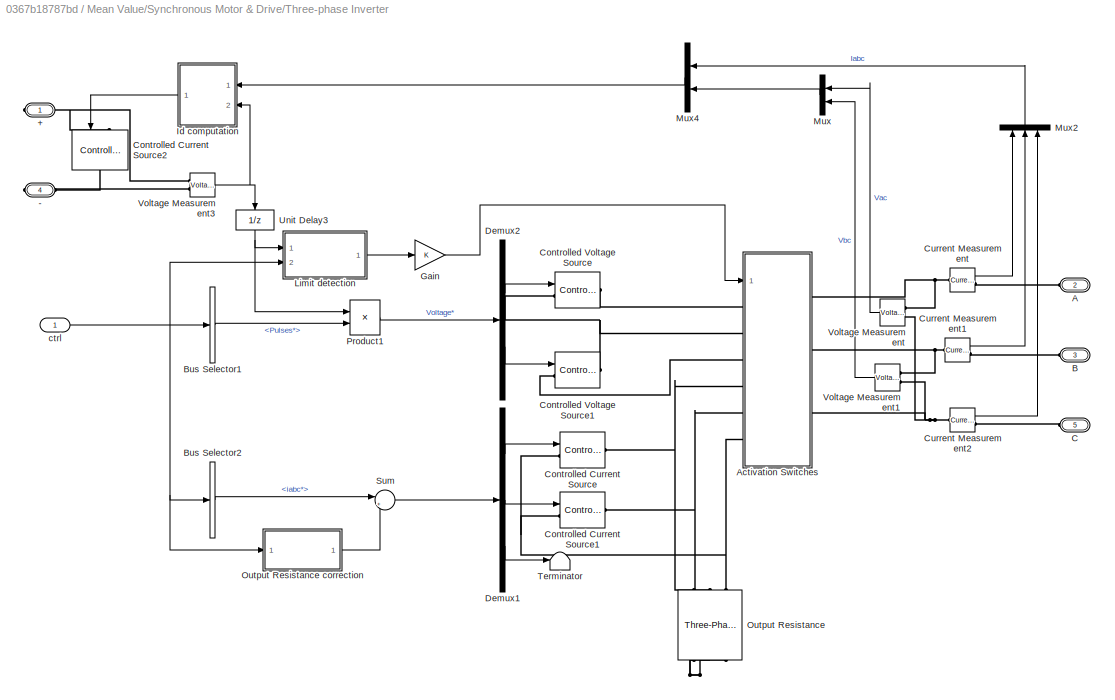
BLOCK [SubSystem] Mean Value/Synchronous Motor & Drive/Three-phase Inverter
  OpenFcn = power_openblockproxy();
  Ports = [1, 0, 0, 0, 0, 3, 2]
  RequestExecContextInheritance = off
BLOCK [PMIOPort] Mean Value/Synchronous Motor & Drive/Three-phase Inverter/+
  Side = Right
BLOCK [PMIOPort] Mean Value/Synchronous Motor & Drive/Three-phase Inverter/-
  Port = 4
  Side = Right
BLOCK [PMIOPort] Mean Value/Synchronous Motor & Drive/Three-phase Inverter/A
  Port = 2
  Side = Left
BLOCK [SubSystem] Mean Value/Synchronous Motor & Drive/Three-phase Inverter/Activation Switches
  Ports = [1, 0, 0, 0, 0, 6, 3]
  RequestExecContextInheritance = off
BLOCK [PMIOPort] Mean Value/Synchronous Motor & Drive/Three-phase Inverter/Activation Switches/A1
  Side = Left
BLOCK [PMIOPort] Mean Value/Synchronous Motor & Drive/Three-phase Inverter/Activation Switches/A2
  Port = 7
  Side = Left
BLOCK [PMIOPort] Mean Value/Synchronous Motor & Drive/Three-phase Inverter/Activation Switches/B1
  Port = 3
  Side = Left
BLOCK [PMIOPort] Mean Value/Synchronous Motor & Drive/Three-phase Inverter/Activation Switches/B2
  Port = 8
  Side = Left
BLOCK [PMIOPort] Mean Value/Synchronous Motor & Drive/Three-phase Inverter/Activation Switches/C1
  Port = 5
  Side = Left
BLOCK [PMIOPort] Mean Value/Synchronous Motor & Drive/Three-phase Inverter/Activation Switches/C2
  Port = 9
  Side = Left
BLOCK [Reference] Mean Value/Synchronous Motor & Drive/Three-phase Inverter/Activation Switches/Ideal Switch1  REF=powerlib/Power
Electronics/Ideal Switch
  Ports = [1, 0, 0, 0, 0, 1, 1]
  SourceBlock = powerlib/Power\nElectronics/Ideal Switch
  SourceProductBaseCode = PS
  SourceType = Ideal Switch
BLOCK [Reference] Mean Value/Synchronous Motor & Drive/Three-phase Inverter/Activation Switches/Ideal Switch2  REF=powerlib/Power
Electronics/Ideal Switch
  Ports = [1, 0, 0, 0, 0, 1, 1]
  SourceBlock = powerlib/Power\nElectronics/Ideal Switch
  SourceProductBaseCode = PS
  SourceType = Ideal Switch
BLOCK [Reference] Mean Value/Synchronous Motor & Drive/Three-phase Inverter/Activation Switches/Ideal Switch3  REF=powerlib/Power
Electronics/Ideal Switch
  Ports = [1, 0, 0, 0, 0, 1, 1]
  SourceBlock = powerlib/Power\nElectronics/Ideal Switch
  SourceProductBaseCode = PS
  SourceType = Ideal Switch
BLOCK [Reference] Mean Value/Synchronous Motor & Drive/Three-phase Inverter/Activation Switches/Ideal Switch4  REF=powerlib/Power
Electronics/Ideal Switch
  Ports = [1, 0, 0, 0, 0, 1, 1]
  SourceBlock = powerlib/Power\nElectronics/Ideal Switch
  SourceProductBaseCode = PS
  SourceType = Ideal Switch
BLOCK [Reference] Mean Value/Synchronous Motor & Drive/Three-phase Inverter/Activation Switches/Ideal Switch5  REF=powerlib/Power
Electronics/Ideal Switch
  Ports = [1, 0, 0, 0, 0, 1, 1]
  SourceBlock = powerlib/Power\nElectronics/Ideal Switch
  SourceProductBaseCode = PS
  SourceType = Ideal Switch
BLOCK [Reference] Mean Value/Synchronous Motor & Drive/Three-phase Inverter/Activation Switches/Ideal Switch6  REF=powerlib/Power
Electronics/Ideal Switch
  Ports = [1, 0, 0, 0, 0, 1, 1]
  SourceBlock = powerlib/Power\nElectronics/Ideal Switch
  SourceProductBaseCode = PS
  SourceType = Ideal Switch
BLOCK [Logic] Mean Value/Synchronous Motor & Drive/Three-phase Inverter/Activation Switches/Logical Operator
  AllPortsSameDT = off
  Operator = NOT
  OutDataTypeStr = boolean
  Ports = [1, 1]
BLOCK [PMIOPort] Mean Value/Synchronous Motor & Drive/Three-phase Inverter/Activation Switches/a
  Port = 2
  Side = Right
BLOCK [PMIOPort] Mean Value/Synchronous Motor & Drive/Three-phase Inverter/Activation Switches/b
  Port = 4
  Side = Right
BLOCK [PMIOPort] Mean Value/Synchronous Motor & Drive/Three-phase Inverter/Activation Switches/c
  Port = 6
  Side = Right
BLOCK [Inport] Mean Value/Synchronous Motor & Drive/Three-phase Inverter/Activation Switches/gate
BLOCK [PMIOPort] Mean Value/Synchronous Motor & Drive/Three-phase Inverter/B
  Port = 3
  Side = Left
BLOCK [BusSelector] Mean Value/Synchronous Motor & Drive/Three-phase Inverter/Bus Selector1
  OutputSignals = Signals*.Pulses*
  Ports = [1, 1]
BLOCK [BusSelector] Mean Value/Synchronous Motor & Drive/Three-phase Inverter/Bus Selector2
  OutputSignals = Signals*.iabc*
  Ports = [1, 1]
BLOCK [PMIOPort] Mean Value/Synchronous Motor & Drive/Three-phase Inverter/C
  Port = 5
  Side = Left
BLOCK [Reference] Mean Value/Synchronous Motor & Drive/Three-phase Inverter/Controlled Current Source  REF=powerlib/Electrical
Sources/Controlled Current Source
  Ports = [1, 0, 0, 0, 0, 1, 1]
  SourceBlock = powerlib/Electrical\nSources/Controlled Current Source
  SourceProductBaseCode = PS
  SourceType = Controlled Current Source
BLOCK [Reference] Mean Value/Synchronous Motor & Drive/Three-phase Inverter/Controlled Current Source1  REF=powerlib/Electrical
Sources/Controlled Current Source
  Ports = [1, 0, 0, 0, 0, 1, 1]
  SourceBlock = powerlib/Electrical\nSources/Controlled Current Source
  SourceProductBaseCode = PS
  SourceType = Controlled Current Source
BLOCK [Reference] Mean Value/Synchronous Motor & Drive/Three-phase Inverter/Controlled Current Source2  REF=powerlib/Electrical
Sources/Controlled Current Source
  NameLocation = left
  Ports = [1, 0, 0, 0, 0, 1, 1]
  SourceBlock = powerlib/Electrical\nSources/Controlled Current Source
  SourceProductBaseCode = PS
  SourceType = Controlled Current Source
BLOCK [Reference] Mean Value/Synchronous Motor & Drive/Three-phase Inverter/Controlled Voltage Source  REF=powerlib/Electrical
Sources/Controlled Voltage Source
  Ports = [1, 0, 0, 0, 0, 1, 1]
  SourceBlock = powerlib/Electrical\nSources/Controlled Voltage Source
  SourceProductBaseCode = PS
  SourceType = Controlled Voltage Source
BLOCK [Reference] Mean Value/Synchronous Motor & Drive/Three-phase Inverter/Controlled Voltage Source1  REF=powerlib/Electrical
Sources/Controlled Voltage Source
  Ports = [1, 0, 0, 0, 0, 1, 1]
  SourceBlock = powerlib/Electrical\nSources/Controlled Voltage Source
  SourceProductBaseCode = PS
  SourceType = Controlled Voltage Source
BLOCK [Reference] Mean Value/Synchronous Motor & Drive/Three-phase Inverter/Current Measurement  REF=powerlib/Measurements/Current Measurement
  Ports = [0, 1, 0, 0, 0, 1, 1]
  SourceBlock = powerlib/Measurements/Current Measurement
  SourceProductBaseCode = PS
  SourceType = Current Measurement
BLOCK [Reference] Mean Value/Synchronous Motor & Drive/Three-phase Inverter/Current Measurement1  REF=powerlib/Measurements/Current Measurement
  Ports = [0, 1, 0, 0, 0, 1, 1]
  SourceBlock = powerlib/Measurements/Current Measurement
  SourceProductBaseCode = PS
  SourceType = Current Measurement
BLOCK [Reference] Mean Value/Synchronous Motor & Drive/Three-phase Inverter/Current Measurement2  REF=powerlib/Measurements/Current Measurement
  Ports = [0, 1, 0, 0, 0, 1, 1]
  SourceBlock = powerlib/Measurements/Current Measurement
  SourceProductBaseCode = PS
  SourceType = Current Measurement
BLOCK [Demux] Mean Value/Synchronous Motor & Drive/Three-phase Inverter/Demux1
  DisplayOption = none
  Outputs = 3
  Ports = [1, 3]
BLOCK [Demux] Mean Value/Synchronous Motor & Drive/Three-phase Inverter/Demux2
  DisplayOption = none
  Outputs = 2
  Ports = [1, 2]
BLOCK [Gain] Mean Value/Synchronous Motor & Drive/Three-phase Inverter/Gain
BLOCK [SubSystem] Mean Value/Synchronous Motor & Drive/Three-phase Inverter/Id computation
  NameLocation = top
  Ports = [2, 1]
  RequestExecContextInheritance = off
BLOCK [SubSystem] Mean Value/Synchronous Motor & Drive/Three-phase Inverter/Id computation/Demux
  Ports = [1, 4]
  RequestExecContextInheritance = off
BLOCK [Demux] Mean Value/Synchronous Motor & Drive/Three-phase Inverter/Id computation/Demux/Demux1
  DisplayOption = none
  Outputs = 5
  Ports = [1, 5]
BLOCK [Outport] Mean Value/Synchronous Motor & Drive/Three-phase Inverter/Id computation/Demux/Ia
  Port = 2
  VectorParamsAs1DForOutWhenUnconnected = off
BLOCK [Outport] Mean Value/Synchronous Motor & Drive/Three-phase Inverter/Id computation/Demux/Ib
  Port = 4
  VectorParamsAs1DForOutWhenUnconnected = off
BLOCK [Terminator] Mean Value/Synchronous Motor & Drive/Three-phase Inverter/Id computation/Demux/Terminator
BLOCK [Outport] Mean Value/Synchronous Motor & Drive/Three-phase Inverter/Id computation/Demux/Vac
  VectorParamsAs1DForOutWhenUnconnected = off
BLOCK [Outport] Mean Value/Synchronous Motor & Drive/Three-phase Inverter/Id computation/Demux/Vbc
  Port = 3
  VectorParamsAs1DForOutWhenUnconnected = off
BLOCK [Inport] Mean Value/Synchronous Motor & Drive/Three-phase Inverter/Id computation/Demux/m
BLOCK [SubSystem] Mean Value/Synchronous Motor & Drive/Three-phase Inverter/Id computation/Demux1
  Ports = [1, 3]
  RequestExecContextInheritance = off
BLOCK [Demux] Mean Value/Synchronous Motor & Drive/Three-phase Inverter/Id computation/Demux1/Demux1
  DisplayOption = none
  Outputs = 5
  Ports = [1, 5]
BLOCK [Outport] Mean Value/Synchronous Motor & Drive/Three-phase Inverter/Id computation/Demux1/Ia
  VectorParamsAs1DForOutWhenUnconnected = off
BLOCK [Outport] Mean Value/Synchronous Motor & Drive/Three-phase Inverter/Id computation/Demux1/Ib
  Port = 2
  VectorParamsAs1DForOutWhenUnconnected = off
BLOCK [Outport] Mean Value/Synchronous Motor & Drive/Three-phase Inverter/Id computation/Demux1/Ic
  Port = 3
  VectorParamsAs1DForOutWhenUnconnected = off
BLOCK [Terminator] Mean Value/Synchronous Motor & Drive/Three-phase Inverter/Id computation/Demux1/Terminator1
BLOCK [Terminator] Mean Value/Synchronous Motor & Drive/Three-phase Inverter/Id computation/Demux1/Terminator2
BLOCK [Inport] Mean Value/Synchronous Motor & Drive/Three-phase Inverter/Id computation/Demux1/m
BLOCK [Gain] Mean Value/Synchronous Motor & Drive/Three-phase Inverter/Id computation/Gain
  Gain = Ron
BLOCK [Outport] Mean Value/Synchronous Motor & Drive/Three-phase Inverter/Id computation/Id
  VectorParamsAs1DForOutWhenUnconnected = off
BLOCK [Math] Mean Value/Synchronous Motor & Drive/Three-phase Inverter/Id computation/Math Function
  Operator = magnitude^2
  Ports = [1, 1]
  SignedPower = on
BLOCK [Math] Mean Value/Synchronous Motor & Drive/Three-phase Inverter/Id computation/Math Function1
  Operator = magnitude^2
  Ports = [1, 1]
  SignedPower = on
BLOCK [Math] Mean Value/Synchronous Motor & Drive/Three-phase Inverter/Id computation/Math Function2
  Operator = magnitude^2
  Ports = [1, 1]
  SignedPower = on
BLOCK [Product] Mean Value/Synchronous Motor & Drive/Three-phase Inverter/Id computation/Product1
  Inputs = */
  OutDataTypeStr = Inherit: Same as first input
  Ports = [2, 1]
  SaturateOnIntegerOverflow = on
BLOCK [Sum] Mean Value/Synchronous Motor & Drive/Three-phase Inverter/Id computation/Sum1
  Inputs = +++
  Ports = [3, 1]
  SaturateOnIntegerOverflow = on
BLOCK [Sum] Mean Value/Synchronous Motor & Drive/Three-phase Inverter/Id computation/Sum2
  Inputs = |++
  Ports = [2, 1]
  SaturateOnIntegerOverflow = on
BLOCK [Sum] Mean Value/Synchronous Motor & Drive/Three-phase Inverter/Id computation/Sum3
  Ports = [2, 1]
  SaturateOnIntegerOverflow = on
BLOCK [UnitDelay] Mean Value/Synchronous Motor & Drive/Three-phase Inverter/Id computation/Unit Delay1
  HasFrameUpgradeWarning = on
  SampleTime = Ts
BLOCK [UnitDelay] Mean Value/Synchronous Motor & Drive/Three-phase Inverter/Id computation/Unit Delay4
  HasFrameUpgradeWarning = on
  InitialCondition = 1
  SampleTime = Ts
BLOCK [Product] Mean Value/Synchronous Motor & Drive/Three-phase Inverter/Id computation/Vac x Ia
  OutDataTypeStr = Inherit: Same as first input
  Ports = [2, 1]
  SaturateOnIntegerOverflow = on
BLOCK [Product] Mean Value/Synchronous Motor & Drive/Three-phase Inverter/Id computation/Vbc x Ib
  OutDataTypeStr = Inherit: Same as first input
  Ports = [2, 1]
  SaturateOnIntegerOverflow = on
BLOCK [Inport] Mean Value/Synchronous Motor & Drive/Three-phase Inverter/Id computation/Vdc
  Port = 2
BLOCK [Saturate] Mean Value/Synchronous Motor & Drive/Three-phase Inverter/Id computation/Zero avoider
  LowerLimit = 1
  UpperLimit = inf
BLOCK [Inport] Mean Value/Synchronous Motor & Drive/Three-phase Inverter/Id computation/m
BLOCK [SubSystem] Mean Value/Synchronous Motor & Drive/Three-phase Inverter/Limit detection
  Ports = [2, 1]
  RequestExecContextInheritance = off
BLOCK [BusSelector] Mean Value/Synchronous Motor & Drive/Three-phase Inverter/Limit detection/Bus Selector1
  OutputAsBus = on
  OutputSignals = m.Stator current is_d (A),m.Stator current is_q (A),m.Rotor speed wm (rad/s)
  Ports = [1, 1]
BLOCK [DiscreteTransferFcn] Mean Value/Synchronous Motor & Drive/Three-phase Inverter/Limit detection/Discrete Transfer Fcn1
  Denominator = [1 -exp(-Ts*Fcs*2*pi)]
  InputPortMap = u0
  Numerator = [1-exp(-Ts*Fcs*2*pi)]
  Ports = [1, 1]
  SampleTime = Ts
BLOCK [DiscreteTransferFcn] Mean Value/Synchronous Motor & Drive/Three-phase Inverter/Limit detection/Discrete Transfer Fcn3
  Denominator = [1 -exp(-Ts*Fcs*2*pi)]
  InputPortMap = u0
  Numerator = [1-exp(-Ts*Fcs*2*pi)]
  Ports = [1, 1]
  SampleTime = Ts
BLOCK [Gain] Mean Value/Synchronous Motor & Drive/Three-phase Inverter/Limit detection/Gain1
  Gain = 0.9
  OutDataTypeStr = Inherit: Same as input
  ParamDataTypeStr = Inherit: Same as input
  SaturateOnIntegerOverflow = on
BLOCK [Fcn] Mean Value/Synchronous Motor & Drive/Three-phase Inverter/Limit detection/Internal Vcc 
  Expr = pi/2*sqrt((Resistance*u(1)-Lq*p*u(3)*u(2))^2+(Resistance*u(2)+Ld*p*u(3)*u(1)+Flux*p*u(3))^2)
BLOCK [Outport] Mean Value/Synchronous Motor & Drive/Three-phase Inverter/Limit detection/Limit
  VectorParamsAs1DForOutWhenUnconnected = off
BLOCK [RelationalOperator] Mean Value/Synchronous Motor & Drive/Three-phase Inverter/Limit detection/Relational Operator
  InputSameDT = off
  Operator = >
  OutDataTypeStr = boolean
  Ports = [2, 1]
BLOCK [RelationalOperator] Mean Value/Synchronous Motor & Drive/Three-phase Inverter/Limit detection/Relational Operator2
  InputSameDT = off
  Operator = <
  OutDataTypeStr = boolean
  Ports = [2, 1]
BLOCK [Reference] Mean Value/Synchronous Motor & Drive/Three-phase Inverter/Limit detection/S-R Flip-Flop  REF=simulink_extras/Flip Flops/S-R
Flip-Flop
  Ports = [2, 2]
  SourceBlock = simulink_extras/Flip Flops/S-R\nFlip-Flop
  SourceProductBaseCode = SL
  SourceType = SRFlipFlop
BLOCK [Terminator] Mean Value/Synchronous Motor & Drive/Three-phase Inverter/Limit detection/Terminator
BLOCK [Inport] Mean Value/Synchronous Motor & Drive/Three-phase Inverter/Limit detection/Vcc
BLOCK [Inport] Mean Value/Synchronous Motor & Drive/Three-phase Inverter/Limit detection/ctrl
  NameLocation = top
  Port = 2
BLOCK [Mux] Mean Value/Synchronous Motor & Drive/Three-phase Inverter/Mux
  DisplayOption = bar
  Inputs = 2
  NameLocation = top
  Ports = [2, 1]
BLOCK [Mux] Mean Value/Synchronous Motor & Drive/Three-phase Inverter/Mux2
  DisplayOption = bar
  Inputs = 3
  NameLocation = right
  Ports = [3, 1]
BLOCK [Mux] Mean Value/Synchronous Motor & Drive/Three-phase Inverter/Mux4
  DisplayOption = bar
  Inputs = 2
  NameLocation = top
  Ports = [2, 1]
BLOCK [Reference] Mean Value/Synchronous Motor & Drive/Three-phase Inverter/Output Resistance  REF=powerlib/Elements/Three-Phase
Series RLC Branch
  AttributesFormatString = \n
  NameLocation = left
  Ports = [0, 0, 0, 0, 0, 3, 3]
  SourceBlock = powerlib/Elements/Three-Phase\nSeries RLC Branch
  SourceProductBaseCode = PS
  SourceType = Three-Phase Series RLC Branch
BLOCK [SubSystem] Mean Value/Synchronous Motor & Drive/Three-phase Inverter/Output Resistance correction
  Ports = [1, 1]
  RequestExecContextInheritance = off
BLOCK [Gain] Mean Value/Synchronous Motor & Drive/Three-phase Inverter/Output Resistance correction/1//R
  Gain = 1/(100*Resistance)
  OutDataTypeStr = Inherit: Same as input
  ParamDataTypeStr = Inherit: Same as input
  SaturateOnIntegerOverflow = on
BLOCK [BusSelector] Mean Value/Synchronous Motor & Drive/Three-phase Inverter/Output Resistance correction/Bus Selector1
  OutputSignals = m.Stator voltage Vs_d (V),m.Stator voltage Vs_q (V),m.Rotor angle thetam (rad)
  Ports = [1, 3]
BLOCK [Constant] Mean Value/Synchronous Motor & Drive/Three-phase Inverter/Output Resistance correction/Constant
  Value = 0
BLOCK [DiscreteTransferFcn] Mean Value/Synchronous Motor & Drive/Three-phase Inverter/Output Resistance correction/Discrete Transfer Fcn1
  Denominator = [1 -exp(-Ts/.001)]
  InputPortMap = u0
  Numerator = [1-exp(-Ts/.001)]
  Ports = [1, 1]
  SampleTime = Ts
BLOCK [DiscreteTransferFcn] Mean Value/Synchronous Motor & Drive/Three-phase Inverter/Output Resistance correction/Discrete Transfer Fcn2
  Denominator = [1 -exp(-Ts/.001)]
  InputPortMap = u0
  Numerator = [1-exp(-Ts/.001)]
  Ports = [1, 1]
  SampleTime = Ts
BLOCK [Fcn] Mean Value/Synchronous Motor & Drive/Three-phase Inverter/Output Resistance correction/Fcn
  Expr = sin(u)
BLOCK [Fcn] Mean Value/Synchronous Motor & Drive/Three-phase Inverter/Output Resistance correction/Fcn1
  Expr = cos(u)
BLOCK [Outport] Mean Value/Synchronous Motor & Drive/Three-phase Inverter/Output Resistance correction/Iabc_r 
  VectorParamsAs1DForOutWhenUnconnected = off
BLOCK [Mux] Mean Value/Synchronous Motor & Drive/Three-phase Inverter/Output Resistance correction/Mux4
  DisplayOption = bar
  Inputs = 3
  Ports = [3, 1]
BLOCK [Mux] Mean Value/Synchronous Motor & Drive/Three-phase Inverter/Output Resistance correction/Mux5
  DisplayOption = bar
  Inputs = 2
  Ports = [2, 1]
BLOCK [Inport] Mean Value/Synchronous Motor & Drive/Three-phase Inverter/Output Resistance correction/ctrl
  NameLocation = top
BLOCK [Reference] Mean Value/Synchronous Motor & Drive/Three-phase Inverter/Output Resistance correction/dq0_to_abc Transformation  REF=powerlib_extras/Measurements/dq0_to_abc
Transformation
  Ports = [2, 1]
  SourceBlock = powerlib_extras/Measurements/dq0_to_abc\nTransformation
  SourceProductBaseCode = PS
  SourceType = dq0 to abc Transformation
BLOCK [Gain] Mean Value/Synchronous Motor & Drive/Three-phase Inverter/Output Resistance correction/poles
  Gain = p
  OutDataTypeStr = Inherit: Same as input
  ParamDataTypeStr = Inherit: Same as input
  SaturateOnIntegerOverflow = on
BLOCK [Product] Mean Value/Synchronous Motor & Drive/Three-phase Inverter/Product1
  Ports = [2, 1]
  RndMeth = Zero
BLOCK [Sum] Mean Value/Synchronous Motor & Drive/Three-phase Inverter/Sum
  Inputs = |++
  Ports = [2, 1]
BLOCK [Terminator] Mean Value/Synchronous Motor & Drive/Three-phase Inverter/Terminator
BLOCK [UnitDelay] Mean Value/Synchronous Motor & Drive/Three-phase Inverter/Unit Delay3
  HasFrameUpgradeWarning = on
  NameLocation = left
  SampleTime = Ts
BLOCK [Reference] Mean Value/Synchronous Motor & Drive/Three-phase Inverter/Voltage Measurement  REF=powerlib/Measurements/Voltage Measurement
  NameLocation = top
  Ports = [0, 1, 0, 0, 0, 2]
  SourceBlock = powerlib/Measurements/Voltage Measurement
  SourceProductBaseCode = PS
  SourceType = Voltage Measurement
BLOCK [Reference] Mean Value/Synchronous Motor & Drive/Three-phase Inverter/Voltage Measurement1  REF=powerlib/Measurements/Voltage Measurement
  NameLocation = top
  Ports = [0, 1, 0, 0, 0, 2]
  SourceBlock = powerlib/Measurements/Voltage Measurement
  SourceProductBaseCode = PS
  SourceType = Voltage Measurement
BLOCK [Reference] Mean Value/Synchronous Motor & Drive/Three-phase Inverter/Voltage Measurement3  REF=powerlib/Measurements/Voltage Measurement
  Ports = [0, 1, 0, 0, 0, 2]
  SourceBlock = powerlib/Measurements/Voltage Measurement
  SourceProductBaseCode = PS
  SourceType = Voltage Measurement
BLOCK [Inport] Mean Value/Synchronous Motor & Drive/Three-phase Inverter/ctrl
BLOCK [SubSystem] Mean Value/Synchronous Motor & Drive/Torque limitation
  NameLocation = top
  Ports = [2, 1]
  RequestExecContextInheritance = off
BLOCK [Abs] Mean Value/Synchronous Motor & Drive/Torque limitation/Abs1
BLOCK [Gain] Mean Value/Synchronous Motor & Drive/Torque limitation/Gain
  Gain = -1
BLOCK [Inport] Mean Value/Synchronous Motor & Drive/Torque limitation/N rad//s
BLOCK [Reference] Mean Value/Synchronous Motor & Drive/Torque limitation/Saturation Dynamic  REF=simulink/Discontinuities/Saturation
Dynamic
  Ports = [3, 1]
  SourceBlock = simulink/Discontinuities/Saturation\nDynamic
  SourceProductBaseCode = SL
  SourceType = Saturation Dynamic
BLOCK [Inport] Mean Value/Synchronous Motor & Drive/Torque limitation/Torque
  Port = 2
BLOCK [Lookup] Mean Value/Synchronous Motor & Drive/Torque limitation/Torque vs speed profile
  InputValues = HEV_Param.Motor.TorqSpdLUT.SpeedRPM*pi/30
  NameLocation = top
  SaturateOnIntegerOverflow = off
  Table = HEV_Param.Motor.TorqSpdLUT.TorqueNm
BLOCK [Outport] Mean Value/Synchronous Motor & Drive/Torque limitation/torque
  VectorParamsAs1DForOutWhenUnconnected = off
BLOCK [SubSystem] Mean Value/Synchronous Motor & Drive/VECT controller
  NameLocation = top
  Ports = [4, 1]
  RequestExecContextInheritance = off
BLOCK [Abs] Mean Value/Synchronous Motor & Drive/VECT controller/Abs
  NameLocation = top
  SaturateOnIntegerOverflow = off
BLOCK [BusCreator] Mean Value/Synchronous Motor & Drive/VECT controller/Bus Creator
  DisplayOption = bar
  InheritFromInputs = on
  Inputs = 2
  Ports = [2, 1]
BLOCK [Constant] Mean Value/Synchronous Motor & Drive/VECT controller/Constant
BLOCK [SubSystem] Mean Value/Synchronous Motor & Drive/VECT controller/Current Regulator
  NameLocation = top
  Ports = [2, 1]
  RequestExecContextInheritance = off
BLOCK [Demux] Mean Value/Synchronous Motor & Drive/VECT controller/Current Regulator/Demux1
  DisplayOption = none
  Outputs = 3
  Ports = [1, 3]
BLOCK [Demux] Mean Value/Synchronous Motor & Drive/VECT controller/Current Regulator/Demux2
  DisplayOption = none
  Outputs = 3
  Ports = [1, 3]
BLOCK [Inport] Mean Value/Synchronous Motor & Drive/VECT controller/Current Regulator/Iabc
  Port = 2
BLOCK [Inport] Mean Value/Synchronous Motor & Drive/VECT controller/Current Regulator/Iabc*
BLOCK [Mux] Mean Value/Synchronous Motor & Drive/VECT controller/Current Regulator/Mux1
  Inputs = 2
  Ports = [2, 1]
BLOCK [Outport] Mean Value/Synchronous Motor & Drive/VECT controller/Current Regulator/Pulses
  InitialOutput = 0
  VectorParamsAs1DForOutWhenUnconnected = off
BLOCK [Relay] Mean Value/Synchronous Motor & Drive/VECT controller/Current Regulator/Relay
  OffSwitchValue = 0
  OnSwitchValue = 0
BLOCK [Relay] Mean Value/Synchronous Motor & Drive/VECT controller/Current Regulator/Relay1
  OffSwitchValue = 0
  OnSwitchValue = 0
BLOCK [Relay] Mean Value/Synchronous Motor & Drive/VECT controller/Current Regulator/Relay2
  OffSwitchValue = 0
  OnSwitchValue = 0
BLOCK [Sum] Mean Value/Synchronous Motor & Drive/VECT controller/Current Regulator/Sum
  IconShape = rectangular
  InputSameDT = on
  Inputs = -+
  OutDataTypeStr = Inherit: Same as first input
  Ports = [2, 1]
  SaturateOnIntegerOverflow = on
BLOCK [Sum] Mean Value/Synchronous Motor & Drive/VECT controller/Current Regulator/Sum1
  IconShape = rectangular
  InputSameDT = on
  Inputs = -+
  OutDataTypeStr = Inherit: Same as first input
  Ports = [2, 1]
  SaturateOnIntegerOverflow = on
BLOCK [Sum] Mean Value/Synchronous Motor & Drive/VECT controller/Current Regulator/Sum2
  IconShape = rectangular
  InputSameDT = on
  Inputs = -+
  OutDataTypeStr = Inherit: Same as first input
  Ports = [2, 1]
  SaturateOnIntegerOverflow = on
BLOCK [Sum] Mean Value/Synchronous Motor & Drive/VECT controller/Current Regulator/Sum3
  IconShape = rectangular
  Inputs = +-
  Ports = [2, 1]
BLOCK [Sum] Mean Value/Synchronous Motor & Drive/VECT controller/Current Regulator/Sum4
  IconShape = rectangular
  Inputs = +-
  Ports = [2, 1]
BLOCK [SubSystem] Mean Value/Synchronous Motor & Drive/VECT controller/DQ-ABC
  NameLocation = top
  Ports = [3, 1]
  RequestExecContextInheritance = off
BLOCK [Fcn] Mean Value/Synchronous Motor & Drive/VECT controller/DQ-ABC/Fcn
  Expr = sin(u)
BLOCK [Fcn] Mean Value/Synchronous Motor & Drive/VECT controller/DQ-ABC/Fcn1
  Expr = cos(u)
BLOCK [Gain] Mean Value/Synchronous Motor & Drive/VECT controller/DQ-ABC/Gain2
  OutDataTypeStr = Inherit: Same as input
  ParamDataTypeStr = Inherit: Same as input
  SaturateOnIntegerOverflow = on
BLOCK [Gain] Mean Value/Synchronous Motor & Drive/VECT controller/DQ-ABC/Gain3
  OutDataTypeStr = Inherit: Same as input
  ParamDataTypeStr = Inherit: Same as input
  SaturateOnIntegerOverflow = on
BLOCK [Gain] Mean Value/Synchronous Motor & Drive/VECT controller/DQ-ABC/Gain4
  OutDataTypeStr = Inherit: Same as input
  ParamDataTypeStr = Inherit: Same as input
  SaturateOnIntegerOverflow = on
BLOCK [Outport] Mean Value/Synchronous Motor & Drive/VECT controller/DQ-ABC/Iabc*
  InitialOutput = 0
  VectorParamsAs1DForOutWhenUnconnected = off
BLOCK [Inport] Mean Value/Synchronous Motor & Drive/VECT controller/DQ-ABC/Id* 
  Port = 2
BLOCK [Inport] Mean Value/Synchronous Motor & Drive/VECT controller/DQ-ABC/Iq* 
BLOCK [Mux] Mean Value/Synchronous Motor & Drive/VECT controller/DQ-ABC/Mux
  Ports = [4, 1]
BLOCK [Mux] Mean Value/Synchronous Motor & Drive/VECT controller/DQ-ABC/Mux2
  Inputs = 3
  Ports = [3, 1]
BLOCK [Inport] Mean Value/Synchronous Motor & Drive/VECT controller/DQ-ABC/Teta
  Port = 3
BLOCK [Fcn] Mean Value/Synchronous Motor & Drive/VECT controller/DQ-ABC/ia
  Expr = -u[3]*u[2] + u[4]*u[1]
  NameLocation = top
BLOCK [Fcn] Mean Value/Synchronous Motor & Drive/VECT controller/DQ-ABC/ib
  Expr = (-u[1]+1.7320508*u[2])*u[4]*0.5+(u[2]+1.7320508*u[1])*u[3]*0.5
BLOCK [Sum] Mean Value/Synchronous Motor & Drive/VECT controller/DQ-ABC/ic
  IconShape = rectangular
  InputSameDT = on
  Inputs = --
  OutDataTypeStr = Inherit: Same as first input
  Ports = [2, 1]
  SaturateOnIntegerOverflow = on
BLOCK [SubSystem] Mean Value/Synchronous Motor & Drive/VECT controller/Embedded MATLAB Function1
  ErrorFcn = Stateflow.Translate.translate
  NameLocation = top
  PermitHierarchicalResolution = ExplicitOnly
  Ports = [5, 2]
  RequestExecContextInheritance = off
  SFBlockType = MATLAB Function
  SystemSampleTime = Ts_vect
  TreatAsAtomicUnit = on
BLOCK [Demux] Mean Value/Synchronous Motor & Drive/VECT controller/Embedded MATLAB Function1/ Demux 
  Outputs = 1
  Ports = [1, 1]
BLOCK [S-Function] Mean Value/Synchronous Motor & Drive/VECT controller/Embedded MATLAB Function1/ SFunction 
  EnableBusSupport = off
  FunctionName = sf_sfun
  PortCounts = [5 3]
  Ports = [5, 3]
  SFcnIsStateOwnerBlock = off
  SFunctionDeploymentMode = off
  Tag = Stateflow S-Function 1
BLOCK [Terminator] Mean Value/Synchronous Motor & Drive/VECT controller/Embedded MATLAB Function1/ Terminator 
BLOCK [Inport] Mean Value/Synchronous Motor & Drive/VECT controller/Embedded MATLAB Function1/Ten
  Port = 2
BLOCK [Inport] Mean Value/Synchronous Motor & Drive/VECT controller/Embedded MATLAB Function1/Vdc
  Port = 4
BLOCK [Outport] Mean Value/Synchronous Motor & Drive/VECT controller/Embedded MATLAB Function1/idn
  Port = 2
  VectorParamsAs1DForOutWhenUnconnected = off
BLOCK [Outport] Mean Value/Synchronous Motor & Drive/VECT controller/Embedded MATLAB Function1/iqn
  VectorParamsAs1DForOutWhenUnconnected = off
BLOCK [Inport] Mean Value/Synchronous Motor & Drive/VECT controller/Embedded MATLAB Function1/iqn_opt
BLOCK [Inport] Mean Value/Synchronous Motor & Drive/VECT controller/Embedded MATLAB Function1/params
  Port = 5
BLOCK [Inport] Mean Value/Synchronous Motor & Drive/VECT controller/Embedded MATLAB Function1/w
  Port = 3
BLOCK [Gain] Mean Value/Synchronous Motor & Drive/VECT controller/Gain1
  Gain = nb_p
  OutDataTypeStr = Inherit: Same as input
  ParamDataTypeStr = Inherit: Same as input
  SaturateOnIntegerOverflow = on
BLOCK [Gain] Mean Value/Synchronous Motor & Drive/VECT controller/Gain2
  Gain = 1/Teb
  OutDataTypeStr = Inherit: Same as input
  ParamDataTypeStr = Inherit: Same as input
  SaturateOnIntegerOverflow = on
BLOCK [Gain] Mean Value/Synchronous Motor & Drive/VECT controller/Gain3
  Gain = ib
  OutDataTypeStr = Inherit: Same as input
  ParamDataTypeStr = Inherit: Same as input
  SaturateOnIntegerOverflow = on
BLOCK [Gain] Mean Value/Synchronous Motor & Drive/VECT controller/Gain6
  Gain = -ib
  OutDataTypeStr = Inherit: Same as input
  ParamDataTypeStr = Inherit: Same as input
  SaturateOnIntegerOverflow = on
BLOCK [Inport] Mean Value/Synchronous Motor & Drive/VECT controller/I_abc
  Port = 4
BLOCK [Constant] Mean Value/Synchronous Motor & Drive/VECT controller/Ld Lq lam p ib
  Value = [Ld, Lq, lam, p, lam/(Lq-Ld)]
BLOCK [Lookup] Mean Value/Synchronous Motor & Drive/VECT controller/Optimal iqn
  InputValues = ten
  NameLocation = top
  SaturateOnIntegerOverflow = off
  Table = iqn
BLOCK [Product] Mean Value/Synchronous Motor & Drive/VECT controller/Product
  Ports = [2, 1]
  RndMeth = Zero
BLOCK [Product] Mean Value/Synchronous Motor & Drive/VECT controller/Product1
  Ports = [2, 1]
  RndMeth = Zero
BLOCK [RateLimiter] Mean Value/Synchronous Motor & Drive/VECT controller/Rate Limiter
  FallingSlewLimit = -10
  LinearizeAsGain = off
  RisingSlewLimit = 10
BLOCK [RateLimiter] Mean Value/Synchronous Motor & Drive/VECT controller/Rate Limiter1
  FallingSlewLimit = -100
  RisingSlewLimit = 100
  SampleTimeMode = inherited
BLOCK [RateLimiter] Mean Value/Synchronous Motor & Drive/VECT controller/Rate Limiter2
  FallingSlewLimit = -100
  RisingSlewLimit = 100
  SampleTimeMode = inherited
BLOCK [RateTransition] Mean Value/Synchronous Motor & Drive/VECT controller/Rate Transition1
BLOCK [RateTransition] Mean Value/Synchronous Motor & Drive/VECT controller/Rate Transition2
BLOCK [Inport] Mean Value/Synchronous Motor & Drive/VECT controller/Torque*
BLOCK [UnitDelay] Mean Value/Synchronous Motor & Drive/VECT controller/Unit Delay2
  HasFrameUpgradeWarning = on
  SampleTime = -1
BLOCK [Constant] Mean Value/Synchronous Motor & Drive/VECT controller/Vdc
  Value = 500
BLOCK [SubSystem] Mean Value/Synchronous Motor & Drive/VECT controller/Zero crossing detector
  NameLocation = top
  Ports = [2, 1]
  RequestExecContextInheritance = off
BLOCK [Reference] Mean Value/Synchronous Motor & Drive/VECT controller/Zero crossing detector/D Latch  REF=simulink_extras/Flip Flops/D Latch
  Ports = [2, 2]
  SourceBlock = simulink_extras/Flip Flops/D Latch
  SourceProductBaseCode = SL
  SourceType = DLatch
BLOCK [Reference] Mean Value/Synchronous Motor & Drive/VECT controller/Zero crossing detector/D Latch1  REF=simulink_extras/Flip Flops/D Latch
  Ports = [2, 2]
  SourceBlock = simulink_extras/Flip Flops/D Latch
  SourceProductBaseCode = SL
  SourceType = DLatch
BLOCK [Reference] Mean Value/Synchronous Motor & Drive/VECT controller/Zero crossing detector/D Latch2  REF=simulink_extras/Flip Flops/D Latch
  Ports = [2, 2]
  SourceBlock = simulink_extras/Flip Flops/D Latch
  SourceProductBaseCode = SL
  SourceType = DLatch
BLOCK [DataTypeConversion] Mean Value/Synchronous Motor & Drive/VECT controller/Zero crossing detector/Data Type Conversion
  RndMeth = Floor
  SaturateOnIntegerOverflow = off
BLOCK [DataTypeConversion] Mean Value/Synchronous Motor & Drive/VECT controller/Zero crossing detector/Data Type Conversion2
  RndMeth = Floor
  SaturateOnIntegerOverflow = off
BLOCK [Demux] Mean Value/Synchronous Motor & Drive/VECT controller/Zero crossing detector/Demux
  Outputs = 3
  Ports = [1, 3]
BLOCK [Inport] Mean Value/Synchronous Motor & Drive/VECT controller/Zero crossing detector/En
BLOCK [Outport] Mean Value/Synchronous Motor & Drive/VECT controller/Zero crossing detector/Enable
  VectorParamsAs1DForOutWhenUnconnected = off
BLOCK [HitCross] Mean Value/Synchronous Motor & Drive/VECT controller/Zero crossing detector/Hit Crossing
  Ports = [1, 1]
BLOCK [Inport] Mean Value/Synchronous Motor & Drive/VECT controller/Zero crossing detector/Iabc*
  Port = 2
BLOCK [Mux] Mean Value/Synchronous Motor & Drive/VECT controller/Zero crossing detector/Mux
  DisplayOption = bar
  Inputs = 3
  Ports = [3, 1]
BLOCK [Terminator] Mean Value/Synchronous Motor & Drive/VECT controller/Zero crossing detector/Terminator
BLOCK [Terminator] Mean Value/Synchronous Motor & Drive/VECT controller/Zero crossing detector/Terminator1
BLOCK [Terminator] Mean Value/Synchronous Motor & Drive/VECT controller/Zero crossing detector/Terminator2
BLOCK [ZeroOrderHold] Mean Value/Synchronous Motor & Drive/VECT controller/Zero-Order Hold1
  SampleTime = Ts_vect
BLOCK [ZeroOrderHold] Mean Value/Synchronous Motor & Drive/VECT controller/Zero-Order Hold3
  SampleTime = Ts_vect
BLOCK [ZeroOrderHold] Mean Value/Synchronous Motor & Drive/VECT controller/Zero-Order Hold4
  SampleTime = Ts_vect
BLOCK [ZeroOrderHold] Mean Value/Synchronous Motor & Drive/VECT controller/Zero-Order Hold5
  SampleTime = Ts_vect
BLOCK [Outport] Mean Value/Synchronous Motor & Drive/VECT controller/sig*
  VectorParamsAs1DForOutWhenUnconnected = off
BLOCK [Inport] Mean Value/Synchronous Motor & Drive/VECT controller/teta
  Port = 3
BLOCK [Inport] Mean Value/Synchronous Motor & Drive/VECT controller/w
  Port = 2
BLOCK [SubSystem] Mean Value/Voltage Sensor1
  NameLocation = left
  Ports = [0, 0, 0, 0, 0, 1, 1]
  RequestExecContextInheritance = off
BLOCK [PMIOPort] Mean Value/Voltage Sensor1/+
  Side = Right
  Tag = PMCPort
BLOCK [PMIOPort] Mean Value/Voltage Sensor1/-
  Port = 2
  Side = Left
BLOCK [Goto] Mean Value/Voltage Sensor1/Goto1
  GotoTag = DC_Bus_SYS
  TagVisibility = global
BLOCK [Reference] Mean Value/Voltage Sensor1/V1  REF=powerlib/Measurements/Voltage Measurement
  Ports = [0, 1, 0, 0, 0, 2]
  SourceBlock = powerlib/Measurements/Voltage Measurement
  SourceProductBaseCode = PS
  SourceType = Voltage Measurement
BLOCK [SubSystem] System Level
  Ports = [2, 1, 0, 0, 0, 0, 2]
  RequestExecContextInheritance = off
BLOCK [Reference] System Level/Battery  REF=HEV_Battery_Lib/Battery
  Ports = [0, 1, 0, 0, 0, 2]
  SourceBlock = HEV_Battery_Lib/Battery
BLOCK [BusCreator] System Level/Bus Creator
  DisplayOption = bar
  InheritFromInputs = on
  Inputs = 'Batt','Mot_RPM','Gen_RPM','DCDC_Temp'
  Ports = [4, 1]
BLOCK [SubSystem] System Level/Current Sensor SyncGen
  Ports = [0, 0, 0, 0, 0, 1, 1]
  RequestExecContextInheritance = off
BLOCK [PMIOPort] System Level/Current Sensor SyncGen/+
  NameLocation = right
  Side = Left
BLOCK [PMIOPort] System Level/Current Sensor SyncGen/-
  NameLocation = right
  Port = 2
  Side = Right
BLOCK [Reference] System Level/Current Sensor SyncGen/Current Sensor  REF=fl_lib/Electrical/Electrical Sensors/Current Sensor
  NameLocation = right
  Ports = [0, 0, 0, 0, 0, 1, 2]
  SourceBlock = fl_lib/Electrical/Electrical Sensors/Current Sensor
  SourceProductBaseCode = SS
  SourceType = Current Sensor
BLOCK [Goto] System Level/Current Sensor SyncGen/Goto
  GotoTag = Gen_Current_SYS
  TagVisibility = global
BLOCK [Reference] System Level/Current Sensor SyncGen/PS-Simulink Converter  REF=nesl_utility/PS-Simulink
Converter
  NameLocation = top
  Ports = [0, 1, 0, 0, 0, 1]
  SourceBlock = nesl_utility/PS-Simulink\nConverter
  SourceProductBaseCode = SS
  SourceType = PS-Simulink\nConverter
BLOCK [SubSystem] System Level/Current Sensor SyncMot
  NameLocation = top
  Ports = [0, 0, 0, 0, 0, 1, 1]
  RequestExecContextInheritance = off
BLOCK [PMIOPort] System Level/Current Sensor SyncMot/+
  NameLocation = right
  Side = Left
BLOCK [PMIOPort] System Level/Current Sensor SyncMot/-
  NameLocation = right
  Port = 2
  Side = Right
BLOCK [Reference] System Level/Current Sensor SyncMot/Current Sensor  REF=fl_lib/Electrical/Electrical Sensors/Current Sensor
  NameLocation = right
  Ports = [0, 0, 0, 0, 0, 1, 2]
  SourceBlock = fl_lib/Electrical/Electrical Sensors/Current Sensor
  SourceProductBaseCode = SS
  SourceType = Current Sensor
BLOCK [Goto] System Level/Current Sensor SyncMot/Goto
  GotoTag = Mot_Current_SYS
  TagVisibility = global
BLOCK [Reference] System Level/Current Sensor SyncMot/PS-Simulink Converter  REF=nesl_utility/PS-Simulink
Converter
  NameLocation = top
  Ports = [0, 1, 0, 0, 0, 1]
  SourceBlock = nesl_utility/PS-Simulink\nConverter
  SourceProductBaseCode = SS
  SourceType = PS-Simulink\nConverter
BLOCK [SubSystem] System Level/DC-DC Converter
  Ports = [0, 0, 0, 0, 0, 2, 2]
  RequestExecContextInheritance = off
BLOCK [PMIOPort] System Level/DC-DC Converter/ Batt+
  NameLocation = top
  Side = Left
  Tag = PMCPort
BLOCK [PMIOPort] System Level/DC-DC Converter/ Batt-
  NameLocation = top
  Port = 2
  Side = Left
  Tag = PMCPort
BLOCK [PMIOPort] System Level/DC-DC Converter/ Bus+
  Port = 3
  Side = Right
  Tag = PMCPort
BLOCK [PMIOPort] System Level/DC-DC Converter/ Bus-
  Port = 4
  Side = Right
  Tag = PMCPort
BLOCK [SubSystem] System Level/DC-DC Converter/Calcuate Input Current Pout+PLoss = Pin
  Ports = [0, 0, 0, 0, 0, 3, 2]
  RequestExecContextInheritance = off
BLOCK [PMIOPort] System Level/DC-DC Converter/Calcuate Input Current Pout+PLoss = Pin/I_Input
  Port = 4
  Side = Right
BLOCK [Reference] System Level/DC-DC Converter/Calcuate Input Current Pout+PLoss = Pin/Input^2  REF=fl_lib/Physical Signals/Functions/PS Math Function
  Ports = [0, 0, 0, 0, 0, 1, 1]
  SourceBlock = fl_lib/Physical Signals/Functions/PS Math Function
  SourceProductBaseCode = SS
  SourceType = PS Math Function
BLOCK [PMIOPort] System Level/DC-DC Converter/Calcuate Input Current Pout+PLoss = Pin/Iout
  NameLocation = top
  Port = 2
  Side = Left
BLOCK [Reference] System Level/DC-DC Converter/Calcuate Input Current Pout+PLoss = Pin/No Div By 0  REF=fl_lib/Physical Signals/Nonlinear Operators/PS Max
  Ports = [0, 0, 0, 0, 0, 2, 1]
  SourceBlock = fl_lib/Physical Signals/Nonlinear Operators/PS Max
  SourceProductBaseCode = SS
  SourceType = PS Max
BLOCK [PMIOPort] System Level/DC-DC Converter/Calcuate Input Current Pout+PLoss = Pin/P Loss
  NameLocation = top
  Port = 5
  Side = Right
BLOCK [Reference] System Level/DC-DC Converter/Calcuate Input Current Pout+PLoss = Pin/PS Add  REF=fl_lib/Physical Signals/Functions/PS Add
  Ports = [0, 0, 0, 0, 0, 2, 1]
  SourceBlock = fl_lib/Physical Signals/Functions/PS Add
  SourceProductBaseCode = SS
  SourceType = PS Add
BLOCK [Reference] System Level/DC-DC Converter/Calcuate Input Current Pout+PLoss = Pin/PS Constant  REF=fl_lib/Physical Signals/Sources/PS Constant
  Ports = [0, 0, 0, 0, 0, 0, 1]
  SourceBlock = fl_lib/Physical Signals/Sources/PS Constant
  SourceProductBaseCode = SS
  SourceType = PS Constant
BLOCK [Reference] System Level/DC-DC Converter/Calcuate Input Current Pout+PLoss = Pin/PS Divide  REF=fl_lib/Physical Signals/Functions/PS Divide
  Ports = [0, 0, 0, 0, 0, 2, 1]
  SourceBlock = fl_lib/Physical Signals/Functions/PS Divide
  SourceProductBaseCode = SS
  SourceType = PS Divide
BLOCK [Reference] System Level/DC-DC Converter/Calcuate Input Current Pout+PLoss = Pin/PS Product  REF=fl_lib/Physical Signals/Functions/PS Product
  Ports = [0, 0, 0, 0, 0, 2, 1]
  SourceBlock = fl_lib/Physical Signals/Functions/PS Product
  SourceProductBaseCode = SS
  SourceType = PS Product
BLOCK [Reference] System Level/DC-DC Converter/Calcuate Input Current Pout+PLoss = Pin/RLoadLoss  REF=fl_lib/Physical Signals/Functions/PS Gain
  Ports = [0, 0, 0, 0, 0, 1, 1]
  SourceBlock = fl_lib/Physical Signals/Functions/PS Gain
  SourceProductBaseCode = SS
  SourceType = PS Gain
BLOCK [PMIOPort] System Level/DC-DC Converter/Calcuate Input Current Pout+PLoss = Pin/V_In
  Side = Left
BLOCK [PMIOPort] System Level/DC-DC Converter/Calcuate Input Current Pout+PLoss = Pin/Vout
  NameLocation = top
  Port = 3
  Side = Left
BLOCK [SubSystem] System Level/DC-DC Converter/Control Bus Voltage
  Ports = [0, 0, 0, 0, 0, 2, 1]
  RequestExecContextInheritance = off
BLOCK [Reference] System Level/DC-DC Converter/Control Bus Voltage/Ki  REF=fl_lib/Physical Signals/Functions/PS Gain
  Ports = [0, 0, 0, 0, 0, 1, 1]
  SourceBlock = fl_lib/Physical Signals/Functions/PS Gain
  SourceProductBaseCode = SS
  SourceType = PS Gain
BLOCK [Reference] System Level/DC-DC Converter/Control Bus Voltage/Kp  REF=fl_lib/Physical Signals/Functions/PS Gain
  NameLocation = top
  Ports = [0, 0, 0, 0, 0, 1, 1]
  SourceBlock = fl_lib/Physical Signals/Functions/PS Gain
  SourceProductBaseCode = SS
  SourceType = PS Gain
BLOCK [Reference] System Level/DC-DC Converter/Control Bus Voltage/PS Add1  REF=fl_lib/Physical Signals/Functions/PS Add
  NameLocation = top
  Ports = [0, 0, 0, 0, 0, 2, 1]
  SourceBlock = fl_lib/Physical Signals/Functions/PS Add
  SourceProductBaseCode = SS
  SourceType = PS Add
BLOCK [Reference] System Level/DC-DC Converter/Control Bus Voltage/PS Integrator  REF=fl_lib/Physical Signals/Linear Operators/PS Integrator
  NameLocation = top
  Ports = [0, 0, 0, 0, 0, 1, 1]
  SourceBlock = fl_lib/Physical Signals/Linear Operators/PS Integrator
  SourceProductBaseCode = SS
  SourceType = PS Integrator
BLOCK [Reference] System Level/DC-DC Converter/Control Bus Voltage/PS Subtract  REF=fl_lib/Physical Signals/Functions/PS Subtract
  Ports = [0, 0, 0, 0, 0, 2, 1]
  SourceBlock = fl_lib/Physical Signals/Functions/PS Subtract
  SourceProductBaseCode = SS
  SourceType = PS Subtract
BLOCK [PMIOPort] System Level/DC-DC Converter/Control Bus Voltage/VBus
  Port = 3
  Side = Right
BLOCK [PMIOPort] System Level/DC-DC Converter/Control Bus Voltage/Vmeas
  NameLocation = top
  Side = Left
BLOCK [PMIOPort] System Level/DC-DC Converter/Control Bus Voltage/Vref
  Port = 2
  Side = Left
BLOCK [Reference] System Level/DC-DC Converter/Controlled Current Source  REF=fl_lib/Electrical/Electrical Sources/Controlled Current
Source
  NameLocation = right
  Ports = [0, 0, 0, 0, 0, 1, 2]
  SourceBlock = fl_lib/Electrical/Electrical Sources/Controlled Current\nSource
  SourceProductBaseCode = SS
  SourceType = Controlled Current\nSource
BLOCK [Reference] System Level/DC-DC Converter/Controlled Voltage Source  REF=fl_lib/Electrical/Electrical Sources/Controlled Voltage
Source
  NameLocation = left
  Ports = [0, 0, 0, 0, 0, 1, 2]
  SourceBlock = fl_lib/Electrical/Electrical Sources/Controlled Voltage\nSource
  SourceProductBaseCode = SS
  SourceType = Controlled Voltage\nSource
BLOCK [SubSystem] System Level/DC-DC Converter/Current Sensor
  NameLocation = top
  Ports = [0, 0, 0, 0, 0, 1, 2]
  RequestExecContextInheritance = off
BLOCK [PMIOPort] System Level/DC-DC Converter/Current Sensor/+
  Port = 2
  Side = Left
BLOCK [PMIOPort] System Level/DC-DC Converter/Current Sensor/-
  Port = 3
  Side = Right
BLOCK [Reference] System Level/DC-DC Converter/Current Sensor/Current Sensor  REF=fl_lib/Electrical/Electrical Sensors/Current Sensor
  NameLocation = top
  Ports = [0, 0, 0, 0, 0, 1, 2]
  SourceBlock = fl_lib/Electrical/Electrical Sensors/Current Sensor
  SourceProductBaseCode = SS
  SourceType = Current Sensor
BLOCK [Goto] System Level/DC-DC Converter/Current Sensor/Goto
  GotoTag = I_out
  TagVisibility = global
BLOCK [PMIOPort] System Level/DC-DC Converter/Current Sensor/I
  Side = Right
BLOCK [Reference] System Level/DC-DC Converter/Current Sensor/PS-Simulink Converter  REF=nesl_utility/PS-Simulink
Converter
  Ports = [0, 1, 0, 0, 0, 1]
  SourceBlock = nesl_utility/PS-Simulink\nConverter
  SourceProductBaseCode = SS
  SourceType = PS-Simulink\nConverter
BLOCK [Reference] System Level/DC-DC Converter/Load Dependant Losses  REF=fl_lib/Electrical/Electrical Elements/Resistor
  NameLocation = left
  Ports = [0, 0, 0, 0, 0, 1, 1]
  SourceBlock = fl_lib/Electrical/Electrical Elements/Resistor
  SourceProductBaseCode = SS
  SourceType = Resistor
BLOCK [Reference] System Level/DC-DC Converter/PS Constant  REF=fl_lib/Physical Signals/Sources/PS Constant
  NameLocation = top
  Ports = [0, 0, 0, 0, 0, 0, 1]
  SourceBlock = fl_lib/Physical Signals/Sources/PS Constant
  SourceProductBaseCode = SS
  SourceType = PS Constant
BLOCK [SubSystem] System Level/DC-DC Converter/Subsystem3
  NameLocation = top
  Ports = [0, 0, 0, 0, 0, 1, 1]
  RequestExecContextInheritance = off
BLOCK [Goto] System Level/DC-DC Converter/Subsystem3/Goto
  GotoTag = I_in
  TagVisibility = global
BLOCK [PMIOPort] System Level/DC-DC Converter/Subsystem3/In
  Port = 2
  Side = Left
  Tag = PMCPort
BLOCK [PMIOPort] System Level/DC-DC Converter/Subsystem3/Out
  NameLocation = top
  Side = Right
  Tag = PMCPort
BLOCK [Reference] System Level/DC-DC Converter/Subsystem3/PS-Simulink Converter  REF=nesl_utility/PS-Simulink
Converter
  Ports = [0, 1, 0, 0, 0, 1]
  SourceBlock = nesl_utility/PS-Simulink\nConverter
  SourceProductBaseCode = SS
  SourceType = PS-Simulink\nConverter
BLOCK [SubSystem] System Level/DC-DC Converter/Thermal Model
  Ports = [0, 0, 0, 0, 0, 1]
  RequestExecContextInheritance = off
BLOCK [Reference] System Level/DC-DC Converter/Thermal Model/Air Temperature  REF=fl_lib/Physical Signals/Sources/PS Constant
  Ports = [0, 0, 0, 0, 0, 0, 1]
  SourceBlock = fl_lib/Physical Signals/Sources/PS Constant
  SourceProductBaseCode = SS
  SourceType = PS Constant
BLOCK [Reference] System Level/DC-DC Converter/Thermal Model/Ideal Heat Flow Source  REF=fl_lib/Thermal/Thermal Sources/Controlled Heat Flow
Rate Source
  NameLocation = left
  Ports = [0, 0, 0, 0, 0, 1, 2]
  SourceBlock = fl_lib/Thermal/Thermal Sources/Controlled Heat Flow\nRate Source
  SourceProductBaseCode = SS
  SourceType = Controlled Heat Flow\nRate Source
BLOCK [Reference] System Level/DC-DC Converter/Thermal Model/Ideal Temperature Source  REF=fl_lib/Thermal/Thermal Sources/Controlled
Temperature Source
  Ports = [0, 0, 0, 0, 0, 1, 2]
  SourceBlock = fl_lib/Thermal/Thermal Sources/Controlled\nTemperature Source
  SourceProductBaseCode = SS
  SourceType = Controlled\nTemperature Source
BLOCK [Reference] System Level/DC-DC Converter/Thermal Model/Nominal Case-Atmosphere Convective Heat Transfer  REF=fl_lib/Thermal/Thermal Elements/Convective Heat
Transfer
  Ports = [0, 0, 0, 0, 0, 1, 1]
  SourceBlock = fl_lib/Thermal/Thermal Elements/Convective Heat\nTransfer
  SourceProductBaseCode = SS
  SourceType = Convective Heat\nTransfer
BLOCK [PMIOPort] System Level/DC-DC Converter/Thermal Model/P Loss
  NameLocation = top
  Side = Left
BLOCK [Reference] System Level/DC-DC Converter/Thermal Model/PtoHeat  REF=fl_lib/Physical Signals/Functions/PS Gain
  Ports = [0, 0, 0, 0, 0, 1, 1]
  SourceBlock = fl_lib/Physical Signals/Functions/PS Gain
  SourceProductBaseCode = SS
  SourceType = PS Gain
BLOCK [SubSystem] System Level/DC-DC Converter/Thermal Model/Subsystem
  Ports = [0, 0, 0, 0, 0, 1, 1]
  RequestExecContextInheritance = off
BLOCK [Goto] System Level/DC-DC Converter/Thermal Model/Subsystem/Goto1
  GotoTag = DCDC_Power_Loss
  TagVisibility = global
BLOCK [PMIOPort] System Level/DC-DC Converter/Thermal Model/Subsystem/In
  Side = Left
BLOCK [PMIOPort] System Level/DC-DC Converter/Thermal Model/Subsystem/Out
  Port = 2
  Side = Right
BLOCK [Reference] System Level/DC-DC Converter/Thermal Model/Subsystem/PS-Simulink Converter1  REF=nesl_utility/PS-Simulink
Converter
  Ports = [0, 1, 0, 0, 0, 1]
  SourceBlock = nesl_utility/PS-Simulink\nConverter
  SourceProductBaseCode = SS
  SourceType = PS-Simulink\nConverter
BLOCK [SubSystem] System Level/DC-DC Converter/Thermal Model/Temperature Sensor
  Ports = [0, 0, 0, 0, 0, 1]
  RequestExecContextInheritance = off
BLOCK [PMIOPort] System Level/DC-DC Converter/Thermal Model/Temperature Sensor/Conn2
  Side = Left
BLOCK [Goto] System Level/DC-DC Converter/Thermal Model/Temperature Sensor/Goto
  GotoTag = DCDC_SYS
  TagVisibility = global
BLOCK [Reference] System Level/DC-DC Converter/Thermal Model/Temperature Sensor/Ideal Temperature Sensor  REF=fl_lib/Thermal/Thermal Sensors/Temperature Sensor
  Ports = [0, 0, 0, 0, 0, 1, 2]
  SourceBlock = fl_lib/Thermal/Thermal Sensors/Temperature Sensor
  SourceProductBaseCode = SS
  SourceType = Temperature Sensor
BLOCK [Reference] System Level/DC-DC Converter/Thermal Model/Temperature Sensor/PS-Simulink Converter  REF=nesl_utility/PS-Simulink
Converter
  Ports = [0, 1, 0, 0, 0, 1]
  SourceBlock = nesl_utility/PS-Simulink\nConverter
  SourceProductBaseCode = SS
  SourceType = PS-Simulink\nConverter
BLOCK [Reference] System Level/DC-DC Converter/Thermal Model/Temperature Sensor/Thermal Reference  REF=fl_lib/Thermal/Thermal Elements/Thermal Reference
  NameLocation = top
  Ports = [0, 0, 0, 0, 0, 1]
  SourceBlock = fl_lib/Thermal/Thermal Elements/Thermal Reference
  SourceProductBaseCode = SS
  SourceType = Thermal Reference
BLOCK [Reference] System Level/DC-DC Converter/Thermal Model/Thermal Mass  REF=fl_lib/Thermal/Thermal Elements/Thermal Mass
  NameLocation = left
  Ports = [0, 0, 0, 0, 0, 1]
  SourceBlock = fl_lib/Thermal/Thermal Elements/Thermal Mass
  SourceProductBaseCode = SS
  SourceType = Thermal Mass
BLOCK [Reference] System Level/DC-DC Converter/Thermal Model/Thermal Reference  REF=fl_lib/Thermal/Thermal Elements/Thermal Reference
  Ports = [0, 0, 0, 0, 0, 1]
  SourceBlock = fl_lib/Thermal/Thermal Elements/Thermal Reference
  SourceProductBaseCode = SS
  SourceType = Thermal Reference
BLOCK [Reference] System Level/DC-DC Converter/Thermal Model/Thermal Reference1  REF=fl_lib/Thermal/Thermal Elements/Thermal Reference
  Ports = [0, 0, 0, 0, 0, 1]
  SourceBlock = fl_lib/Thermal/Thermal Elements/Thermal Reference
  SourceProductBaseCode = SS
  SourceType = Thermal Reference
BLOCK [SubSystem] System Level/DC-DC Converter/Voltage Sensor
  NameLocation = left
  Ports = [0, 0, 0, 0, 0, 1, 2]
  RequestExecContextInheritance = off
BLOCK [SubSystem] System Level/DC-DC Converter/Voltage Sensor Bus
  NameLocation = right
  Ports = [0, 0, 0, 0, 0, 1, 2]
  RequestExecContextInheritance = off
BLOCK [PMIOPort] System Level/DC-DC Converter/Voltage Sensor Bus/+
  NameLocation = right
  Side = Left
BLOCK [PMIOPort] System Level/DC-DC Converter/Voltage Sensor Bus/-
  NameLocation = left
  Port = 2
  Side = Right
BLOCK [Goto] System Level/DC-DC Converter/Voltage Sensor Bus/Goto
  GotoTag = V_out
  TagVisibility = global
BLOCK [Reference] System Level/DC-DC Converter/Voltage Sensor Bus/PS-Simulink Converter  REF=nesl_utility/PS-Simulink
Converter
  Ports = [0, 1, 0, 0, 0, 1]
  SourceBlock = nesl_utility/PS-Simulink\nConverter
  SourceProductBaseCode = SS
  SourceType = PS-Simulink\nConverter
BLOCK [PMIOPort] System Level/DC-DC Converter/Voltage Sensor Bus/V
  NameLocation = right
  Port = 3
  Side = Right
BLOCK [Reference] System Level/DC-DC Converter/Voltage Sensor Bus/Voltage Sensor Out  REF=fl_lib/Electrical/Electrical Sensors/Voltage Sensor
  NameLocation = right
  Ports = [0, 0, 0, 0, 0, 1, 2]
  SourceBlock = fl_lib/Electrical/Electrical Sensors/Voltage Sensor
  SourceProductBaseCode = SS
  SourceType = Voltage Sensor
BLOCK [PMIOPort] System Level/DC-DC Converter/Voltage Sensor/+
  NameLocation = right
  Side = Left
BLOCK [PMIOPort] System Level/DC-DC Converter/Voltage Sensor/-
  NameLocation = right
  Port = 3
  Side = Right
BLOCK [Goto] System Level/DC-DC Converter/Voltage Sensor/Goto
  GotoTag = V_in
  TagVisibility = global
BLOCK [Reference] System Level/DC-DC Converter/Voltage Sensor/PS-Simulink Converter  REF=nesl_utility/PS-Simulink
Converter
  Ports = [0, 1, 0, 0, 0, 1]
  SourceBlock = nesl_utility/PS-Simulink\nConverter
  SourceProductBaseCode = SS
  SourceType = PS-Simulink\nConverter
BLOCK [PMIOPort] System Level/DC-DC Converter/Voltage Sensor/V
  NameLocation = right
  Port = 2
  Side = Right
BLOCK [Reference] System Level/DC-DC Converter/Voltage Sensor/Voltage Sensor In  REF=fl_lib/Electrical/Electrical Sensors/Voltage Sensor
  NameLocation = right
  Ports = [0, 0, 0, 0, 0, 1, 2]
  SourceBlock = fl_lib/Electrical/Electrical Sensors/Voltage Sensor
  SourceProductBaseCode = SS
  SourceType = Voltage Sensor
BLOCK [Reference] System Level/ERef  REF=fl_lib/Electrical/Electrical Elements/Electrical Reference
  NameLocation = right
  Ports = [0, 0, 0, 0, 0, 1]
  SourceBlock = fl_lib/Electrical/Electrical Elements/Electrical Reference
  SourceProductBaseCode = SS
  SourceType = Electrical Reference
BLOCK [Outport] System Level/ESys
  VectorParamsAs1DForOutWhenUnconnected = off
BLOCK [SubSystem] System Level/Electrical Measurements
  Ports = []
  RequestExecContextInheritance = off
BLOCK [BusSelector] System Level/Electrical Measurements/Bus Selector
  OutputSignals = Voltage (V),Current (A),SOC (%)
  Ports = [1, 3]
BLOCK [From] System Level/Electrical Measurements/From
  GotoTag = DC_Bus_SYS
  TagVisibility = global
BLOCK [From] System Level/Electrical Measurements/From1
  GotoTag = Batt_Measures
  TagVisibility = global
BLOCK [From] System Level/Electrical Measurements/From2
  GotoTag = Mot_Current_SYS
  TagVisibility = global
BLOCK [From] System Level/Electrical Measurements/From3
  GotoTag = Gen_Current_SYS
  TagVisibility = global
BLOCK [Goto] System Level/Electrical Measurements/Goto
  GotoTag = Power
  TagVisibility = global
BLOCK [Goto] System Level/Electrical Measurements/Goto1
  GotoTag = Electricals
  TagVisibility = global
BLOCK [Mux] System Level/Electrical Measurements/Mux
  DisplayOption = bar
  Inputs = 2
  Ports = [2, 1]
BLOCK [Mux] System Level/Electrical Measurements/Mux1
  DisplayOption = bar
  Inputs = 3
  Ports = [3, 1]
BLOCK [Mux] System Level/Electrical Measurements/Mux2
  DisplayOption = bar
  Inputs = 3
  Ports = [3, 1]
BLOCK [Mux] System Level/Electrical Measurements/Mux3
  DisplayOption = bar
  Ports = [4, 1]
BLOCK [Mux] System Level/Electrical Measurements/Mux4
  DisplayOption = bar
  Inputs = 2
  Ports = [2, 1]
BLOCK [Product] System Level/Electrical Measurements/Product1
  Ports = [2, 1]
  RndMeth = Zero
BLOCK [Product] System Level/Electrical Measurements/Product2
  Ports = [2, 1]
  RndMeth = Zero
BLOCK [Product] System Level/Electrical Measurements/Product3
  Ports = [2, 1]
  RndMeth = Zero
BLOCK [From] System Level/From1
  GotoTag = Gen_RPM_SYS
  TagVisibility = global
BLOCK [From] System Level/From2
  GotoTag = Batt_SYS
  TagVisibility = global
BLOCK [From] System Level/From3
  GotoTag = Mot_RPM_SYS
  TagVisibility = global
BLOCK [From] System Level/From4
  GotoTag = DCDC_SYS
  TagVisibility = global
BLOCK [PMIOPort] System Level/Gen_Sh
  Port = 2
  Side = Right
BLOCK [Inport] System Level/Gen_TReq
  Port = 2
BLOCK [SubSystem] System Level/Generator, Drive Measurements
  Ports = []
  RequestExecContextInheritance = off
BLOCK [Constant] System Level/Generator, Drive Measurements/Constant1
  Value = 0
BLOCK [Constant] System Level/Generator, Drive Measurements/Constant2
  Value = 0
BLOCK [From] System Level/Generator, Drive Measurements/From
  GotoTag = Gen_TReq_SYS
  TagVisibility = global
BLOCK [From] System Level/Generator, Drive Measurements/From1
  GotoTag = Gen_RPM_SYS
  TagVisibility = global
BLOCK [From] System Level/Generator, Drive Measurements/From2
  GotoTag = Mot_TReq_SYS
  TagVisibility = global
BLOCK [From] System Level/Generator, Drive Measurements/From3
  GotoTag = Mot_RPM_SYS
  TagVisibility = global
BLOCK [Goto] System Level/Generator, Drive Measurements/Goto
  GotoTag = MotorDrive
  NameLocation = top
  TagVisibility = global
BLOCK [Goto] System Level/Generator, Drive Measurements/Goto1
  GotoTag = GeneratorDrive
  NameLocation = top
  TagVisibility = global
BLOCK [Mux] System Level/Generator, Drive Measurements/Mux1
  DisplayOption = bar
  Ports = [4, 1]
BLOCK [Mux] System Level/Generator, Drive Measurements/Mux2
  DisplayOption = bar
  Ports = [4, 1]
BLOCK [Goto] System Level/Goto1
  GotoTag = Batt_SYS
  TagVisibility = global
BLOCK [PMIOPort] System Level/Mot_Sh
  Side = Right
BLOCK [Inport] System Level/Mot_TReq
BLOCK [SubSystem] System Level/Speed Sensor SyncGen
  Ports = [0, 0, 0, 0, 0, 1, 1]
  RequestExecContextInheritance = off
BLOCK [Goto] System Level/Speed Sensor SyncGen/Goto1
  GotoTag = Gen_RPM_SYS
  TagVisibility = global
BLOCK [Reference] System Level/Speed Sensor SyncGen/MRRef  REF=fl_lib/Mechanical/Rotational Elements/Mechanical
Rotational Reference
  NameLocation = top
  Ports = [0, 0, 0, 0, 0, 1]
  SourceBlock = fl_lib/Mechanical/Rotational Elements/Mechanical\nRotational Reference
  SourceProductBaseCode = SS
  SourceType = Mechanical\nRotational Reference
BLOCK [Reference] System Level/Speed Sensor SyncGen/PS-Simulink Converter  REF=nesl_utility/PS-Simulink
Converter
  Ports = [0, 1, 0, 0, 0, 1]
  SourceBlock = nesl_utility/PS-Simulink\nConverter
  SourceProductBaseCode = SS
  SourceType = PS-Simulink\nConverter
BLOCK [Reference] System Level/Speed Sensor SyncGen/Rotational Motion Sensor  REF=fl_lib/Mechanical/Mechanical Sensors/Ideal Rotational
Motion Sensor
  Ports = [0, 0, 0, 0, 0, 1, 3]
  SourceBlock = fl_lib/Mechanical/Mechanical Sensors/Ideal Rotational\nMotion Sensor
  SourceProductBaseCode = SS
  SourceType = Ideal Rotational\nMotion Sensor
BLOCK [PMIOPort] System Level/Speed Sensor SyncGen/Sh
  Side = Left
BLOCK [PMIOPort] System Level/Speed Sensor SyncGen/Sh1
  Port = 2
  Side = Right
BLOCK [SubSystem] System Level/Speed Sensor SyncMot
  Ports = [0, 0, 0, 0, 0, 1, 1]
  RequestExecContextInheritance = off
BLOCK [Goto] System Level/Speed Sensor SyncMot/Goto1
  GotoTag = Mot_RPM_SYS
  TagVisibility = global
BLOCK [Reference] System Level/Speed Sensor SyncMot/MRRef  REF=fl_lib/Mechanical/Rotational Elements/Mechanical
Rotational Reference
  NameLocation = top
  Ports = [0, 0, 0, 0, 0, 1]
  SourceBlock = fl_lib/Mechanical/Rotational Elements/Mechanical\nRotational Reference
  SourceProductBaseCode = SS
  SourceType = Mechanical\nRotational Reference
BLOCK [Reference] System Level/Speed Sensor SyncMot/PS-Simulink Converter  REF=nesl_utility/PS-Simulink
Converter
  Ports = [0, 1, 0, 0, 0, 1]
  SourceBlock = nesl_utility/PS-Simulink\nConverter
  SourceProductBaseCode = SS
  SourceType = PS-Simulink\nConverter
BLOCK [Reference] System Level/Speed Sensor SyncMot/Rotational Motion Sensor  REF=fl_lib/Mechanical/Mechanical Sensors/Ideal Rotational
Motion Sensor
  Ports = [0, 0, 0, 0, 0, 1, 3]
  SourceBlock = fl_lib/Mechanical/Mechanical Sensors/Ideal Rotational\nMotion Sensor
  SourceProductBaseCode = SS
  SourceType = Ideal Rotational\nMotion Sensor
BLOCK [PMIOPort] System Level/Speed Sensor SyncMot/Sh
  Side = Left
BLOCK [PMIOPort] System Level/Speed Sensor SyncMot/Sh1
  Port = 2
  Side = Right
BLOCK [SubSystem] System Level/Synchronous Generator & Drive
  Ports = [1, 0, 0, 0, 0, 0, 3]
  RequestExecContextInheritance = off
BLOCK [SubSystem] System Level/Synchronous Generator & Drive/GF
  Ports = [1, 0, 0, 0, 0, 0, 1]
  RequestExecContextInheritance = off
BLOCK [Goto] System Level/Synchronous Generator & Drive/GF/Goto
  GotoTag = Gen_TReq_SYS
  TagVisibility = global
BLOCK [Inport] System Level/Synchronous Generator & Drive/GF/In1
BLOCK [PMIOPort] System Level/Synchronous Generator & Drive/GF/Shaft
  Side = Right
BLOCK [Reference] System Level/Synchronous Generator & Drive/GF/Simulink-PS Converter  REF=nesl_utility/Simulink-PS
Converter
  Ports = [1, 0, 0, 0, 0, 0, 1]
  SourceBlock = nesl_utility/Simulink-PS\nConverter
  SourceProductBaseCode = SS
  SourceType = Simulink-PS\nConverter
BLOCK [PMIOPort] System Level/Synchronous Generator & Drive/Gnd
  Port = 2
  Side = Right
BLOCK [Reference] System Level/Synchronous Generator & Drive/Inertia  REF=fl_lib/Mechanical/Rotational Elements/Inertia
  NameLocation = right
  Ports = [0, 0, 0, 0, 0, 1]
  SourceBlock = fl_lib/Mechanical/Rotational Elements/Inertia
  SourceProductBaseCode = SS
  SourceType = Inertia
BLOCK [Reference] System Level/Synchronous Generator & Drive/MRRef  REF=fl_lib/Mechanical/Rotational Elements/Mechanical
Rotational Reference
  NameLocation = right
  Ports = [0, 0, 0, 0, 0, 1]
  SourceBlock = fl_lib/Mechanical/Rotational Elements/Mechanical\nRotational Reference
  SourceProductBaseCode = SS
  SourceType = Mechanical\nRotational Reference
BLOCK [SubSystem] System Level/Synchronous Generator & Drive/PS Terminator
  NameLocation = right
  Ports = [0, 0, 0, 0, 0, 1]
  RequestExecContextInheritance = off
BLOCK [Reference] System Level/Synchronous Generator & Drive/PS Terminator/PS-Simulink Converter 2  REF=nesl_utility/PS-Simulink
Converter
  Ports = [0, 1, 0, 0, 0, 1]
  SourceBlock = nesl_utility/PS-Simulink\nConverter
  SourceProductBaseCode = SS
  SourceType = PS-Simulink\nConverter
BLOCK [PMIOPort] System Level/Synchronous Generator & Drive/PS Terminator/R
  Side = Left
BLOCK [Terminator] System Level/Synchronous Generator & Drive/PS Terminator/Terminator
BLOCK [SubSystem] System Level/Synchronous Generator & Drive/Power Sensor
  Ports = [0, 0, 0, 0, 0, 2, 1]
  RequestExecContextInheritance = off
BLOCK [PMIOPort] System Level/Synchronous Generator & Drive/Power Sensor/+
  Side = Left
BLOCK [PMIOPort] System Level/Synchronous Generator & Drive/Power Sensor/-
  Port = 3
  Side = Right
BLOCK [Reference] System Level/Synchronous Generator & Drive/Power Sensor/Current Sensor  REF=fl_lib/Electrical/Electrical Sensors/Current Sensor
  Ports = [0, 0, 0, 0, 0, 1, 2]
  SourceBlock = fl_lib/Electrical/Electrical Sensors/Current Sensor
  SourceProductBaseCode = SS
  SourceType = Current Sensor
BLOCK [Goto] System Level/Synchronous Generator & Drive/Power Sensor/Goto1
  GotoTag = Pe_genr
  TagVisibility = global
BLOCK [Reference] System Level/Synchronous Generator & Drive/Power Sensor/PS Product1  REF=fl_lib/Physical Signals/Functions/PS Product
  Ports = [0, 0, 0, 0, 0, 2, 1]
  SourceBlock = fl_lib/Physical Signals/Functions/PS Product
  SourceProductBaseCode = SS
  SourceType = PS Product
BLOCK [Reference] System Level/Synchronous Generator & Drive/Power Sensor/PS-Simulink Converter4  REF=nesl_utility/PS-Simulink
Converter
  Ports = [0, 1, 0, 0, 0, 1]
  SourceBlock = nesl_utility/PS-Simulink\nConverter
  SourceProductBaseCode = SS
  SourceType = PS-Simulink\nConverter
BLOCK [Reference] System Level/Synchronous Generator & Drive/Power Sensor/Voltage Sensor  REF=fl_lib/Electrical/Electrical Sensors/Voltage Sensor
  NameLocation = right
  Ports = [0, 0, 0, 0, 0, 1, 2]
  SourceBlock = fl_lib/Electrical/Electrical Sensors/Voltage Sensor
  SourceProductBaseCode = SS
  SourceType = Voltage Sensor
BLOCK [Gain] System Level/Synchronous Generator & Drive/Power Sensor/W to kW
  Gain = 1/1000
BLOCK [PMIOPort] System Level/Synchronous Generator & Drive/Power Sensor/ref
  Port = 2
  Side = Left
BLOCK [SubSystem] System Level/Synchronous Generator & Drive/Power and Torque Sensor
  NameLocation = top
  Ports = [0, 0, 0, 0, 0, 1, 1]
  RequestExecContextInheritance = off
BLOCK [PMIOPort] System Level/Synchronous Generator & Drive/Power and Torque Sensor/C
  Side = Right
BLOCK [Goto] System Level/Synchronous Generator & Drive/Power and Torque Sensor/Goto2
  GotoTag = Pm_genr
  NameLocation = top
  TagVisibility = global
BLOCK [Goto] System Level/Synchronous Generator & Drive/Power and Torque Sensor/Goto6
  GotoTag = gen_torque_meas
  TagVisibility = global
BLOCK [Reference] System Level/Synchronous Generator & Drive/Power and Torque Sensor/Ideal Rotational Motion Sensor  REF=fl_lib/Mechanical/Mechanical Sensors/Ideal Rotational
Motion Sensor
  Ports = [0, 0, 0, 0, 0, 1, 3]
  SourceBlock = fl_lib/Mechanical/Mechanical Sensors/Ideal Rotational\nMotion Sensor
  SourceProductBaseCode = SS
  SourceType = Ideal Rotational\nMotion Sensor
BLOCK [Reference] System Level/Synchronous Generator & Drive/Power and Torque Sensor/Mechanical Rotational Reference1  REF=fl_lib/Mechanical/Rotational Elements/Mechanical
Rotational Reference
  NameLocation = left
  Ports = [0, 0, 0, 0, 0, 1]
  SourceBlock = fl_lib/Mechanical/Rotational Elements/Mechanical\nRotational Reference
  SourceProductBaseCode = SS
  SourceType = Mechanical\nRotational Reference
BLOCK [Reference] System Level/Synchronous Generator & Drive/Power and Torque Sensor/PS Product  REF=fl_lib/Physical Signals/Functions/PS Product
  Ports = [0, 0, 0, 0, 0, 2, 1]
  SourceBlock = fl_lib/Physical Signals/Functions/PS Product
  SourceProductBaseCode = SS
  SourceType = PS Product
BLOCK [Reference] System Level/Synchronous Generator & Drive/Power and Torque Sensor/PS-Simulink Converter  REF=nesl_utility/PS-Simulink
Converter
  Ports = [0, 1, 0, 0, 0, 1]
  SourceBlock = nesl_utility/PS-Simulink\nConverter
  SourceProductBaseCode = SS
  SourceType = PS-Simulink\nConverter
BLOCK [Reference] System Level/Synchronous Generator & Drive/Power and Torque Sensor/PS-Simulink Converter3  REF=nesl_utility/PS-Simulink
Converter
  Ports = [0, 1, 0, 0, 0, 1]
  SourceBlock = nesl_utility/PS-Simulink\nConverter
  SourceProductBaseCode = SS
  SourceType = PS-Simulink\nConverter
BLOCK [PMIOPort] System Level/Synchronous Generator & Drive/Power and Torque Sensor/R
  Port = 2
  Side = Left
BLOCK [Reference] System Level/Synchronous Generator & Drive/Power and Torque Sensor/Torque Sensor  REF=fl_lib/Mechanical/Mechanical Sensors/Ideal Torque Sensor
  Ports = [0, 0, 0, 0, 0, 1, 2]
  SourceBlock = fl_lib/Mechanical/Mechanical Sensors/Ideal Torque Sensor
  SourceProductBaseCode = SS
  SourceType = Ideal Torque Sensor
BLOCK [Gain] System Level/Synchronous Generator & Drive/Power and Torque Sensor/W to kW
  Gain = 1/1000
BLOCK [Reference] System Level/Synchronous Generator & Drive/Servomotor  REF=ee_lib/Electromechanical/Permanent Magnet/Simplified PMSM
Drive
  NameLocation = right
  Ports = [0, 0, 0, 0, 0, 3, 3]
  SourceBlock = ee_lib/Electromechanical/Permanent Magnet/Simplified PMSM\nDrive
  SourceProductBaseCode = PS
  SourceType = Simplified PMSM\nDrive
BLOCK [PMIOPort] System Level/Synchronous Generator & Drive/Shaft
  Port = 3
  Side = Right
BLOCK [Inport] System Level/Synchronous Generator & Drive/TReq
BLOCK [PMIOPort] System Level/Synchronous Generator & Drive/Vcc
  Side = Right
BLOCK [SubSystem] System Level/Synchronous Motor & Drive
  Ports = [1, 0, 0, 0, 0, 0, 3]
  RequestExecContextInheritance = off
BLOCK [SubSystem] System Level/Synchronous Motor & Drive/GF
  Ports = [1, 0, 0, 0, 0, 0, 1]
  RequestExecContextInheritance = off
BLOCK [PMIOPort] System Level/Synchronous Motor & Drive/GF/Conn1
  Side = Right
BLOCK [Goto] System Level/Synchronous Motor & Drive/GF/Goto
  GotoTag = Mot_TReq_SYS
  TagVisibility = global
BLOCK [Inport] System Level/Synchronous Motor & Drive/GF/In1
BLOCK [Reference] System Level/Synchronous Motor & Drive/GF/Simulink-PS Converter  REF=nesl_utility/Simulink-PS
Converter
  Ports = [1, 0, 0, 0, 0, 0, 1]
  SourceBlock = nesl_utility/Simulink-PS\nConverter
  SourceProductBaseCode = SS
  SourceType = Simulink-PS\nConverter
BLOCK [PMIOPort] System Level/Synchronous Motor & Drive/Gnd
  Port = 2
  Side = Right
BLOCK [Reference] System Level/Synchronous Motor & Drive/Inertia  REF=fl_lib/Mechanical/Rotational Elements/Inertia
  NameLocation = right
  Ports = [0, 0, 0, 0, 0, 1]
  SourceBlock = fl_lib/Mechanical/Rotational Elements/Inertia
  SourceProductBaseCode = SS
  SourceType = Inertia
BLOCK [Reference] System Level/Synchronous Motor & Drive/MRRef  REF=fl_lib/Mechanical/Rotational Elements/Mechanical
Rotational Reference
  NameLocation = right
  Ports = [0, 0, 0, 0, 0, 1]
  SourceBlock = fl_lib/Mechanical/Rotational Elements/Mechanical\nRotational Reference
  SourceProductBaseCode = SS
  SourceType = Mechanical\nRotational Reference
BLOCK [SubSystem] System Level/Synchronous Motor & Drive/PS Terminator1
  NameLocation = right
  Ports = [0, 0, 0, 0, 0, 1]
  RequestExecContextInheritance = off
BLOCK [Reference] System Level/Synchronous Motor & Drive/PS Terminator1/PS-Simulink Converter 2  REF=nesl_utility/PS-Simulink
Converter
  Ports = [0, 1, 0, 0, 0, 1]
  SourceBlock = nesl_utility/PS-Simulink\nConverter
  SourceProductBaseCode = SS
  SourceType = PS-Simulink\nConverter
BLOCK [PMIOPort] System Level/Synchronous Motor & Drive/PS Terminator1/R
  Side = Left
BLOCK [Terminator] System Level/Synchronous Motor & Drive/PS Terminator1/Terminator
BLOCK [SubSystem] System Level/Synchronous Motor & Drive/Power Sensor
  Ports = [0, 0, 0, 0, 0, 2, 1]
  RequestExecContextInheritance = off
BLOCK [PMIOPort] System Level/Synchronous Motor & Drive/Power Sensor/+
  Side = Left
BLOCK [PMIOPort] System Level/Synchronous Motor & Drive/Power Sensor/-
  Port = 3
  Side = Right
BLOCK [Reference] System Level/Synchronous Motor & Drive/Power Sensor/Current Sensor  REF=fl_lib/Electrical/Electrical Sensors/Current Sensor
  Ports = [0, 0, 0, 0, 0, 1, 2]
  SourceBlock = fl_lib/Electrical/Electrical Sensors/Current Sensor
  SourceProductBaseCode = SS
  SourceType = Current Sensor
BLOCK [Goto] System Level/Synchronous Motor & Drive/Power Sensor/Goto1
  GotoTag = Pe_motor
  TagVisibility = global
BLOCK [Reference] System Level/Synchronous Motor & Drive/Power Sensor/PS Product1  REF=fl_lib/Physical Signals/Functions/PS Product
  Ports = [0, 0, 0, 0, 0, 2, 1]
  SourceBlock = fl_lib/Physical Signals/Functions/PS Product
  SourceProductBaseCode = SS
  SourceType = PS Product
BLOCK [Reference] System Level/Synchronous Motor & Drive/Power Sensor/PS-Simulink Converter4  REF=nesl_utility/PS-Simulink
Converter
  Ports = [0, 1, 0, 0, 0, 1]
  SourceBlock = nesl_utility/PS-Simulink\nConverter
  SourceProductBaseCode = SS
  SourceType = PS-Simulink\nConverter
BLOCK [Reference] System Level/Synchronous Motor & Drive/Power Sensor/Voltage Sensor  REF=fl_lib/Electrical/Electrical Sensors/Voltage Sensor
  NameLocation = right
  Ports = [0, 0, 0, 0, 0, 1, 2]
  SourceBlock = fl_lib/Electrical/Electrical Sensors/Voltage Sensor
  SourceProductBaseCode = SS
  SourceType = Voltage Sensor
BLOCK [Gain] System Level/Synchronous Motor & Drive/Power Sensor/W to kW
  Gain = 1/1000
BLOCK [PMIOPort] System Level/Synchronous Motor & Drive/Power Sensor/ref
  Port = 2
  Side = Left
BLOCK [SubSystem] System Level/Synchronous Motor & Drive/Power and Torque Sensor
  NameLocation = top
  Ports = [0, 0, 0, 0, 0, 1, 1]
  RequestExecContextInheritance = off
BLOCK [PMIOPort] System Level/Synchronous Motor & Drive/Power and Torque Sensor/C
  Side = Right
BLOCK [Goto] System Level/Synchronous Motor & Drive/Power and Torque Sensor/Goto2
  GotoTag = Pm_motor
  NameLocation = top
  TagVisibility = global
BLOCK [Reference] System Level/Synchronous Motor & Drive/Power and Torque Sensor/Ideal Rotational Motion Sensor  REF=fl_lib/Mechanical/Mechanical Sensors/Ideal Rotational
Motion Sensor
  Ports = [0, 0, 0, 0, 0, 1, 3]
  SourceBlock = fl_lib/Mechanical/Mechanical Sensors/Ideal Rotational\nMotion Sensor
  SourceProductBaseCode = SS
  SourceType = Ideal Rotational\nMotion Sensor
BLOCK [Reference] System Level/Synchronous Motor & Drive/Power and Torque Sensor/Mechanical Rotational Reference1  REF=fl_lib/Mechanical/Rotational Elements/Mechanical
Rotational Reference
  NameLocation = left
  Ports = [0, 0, 0, 0, 0, 1]
  SourceBlock = fl_lib/Mechanical/Rotational Elements/Mechanical\nRotational Reference
  SourceProductBaseCode = SS
  SourceType = Mechanical\nRotational Reference
BLOCK [Reference] System Level/Synchronous Motor & Drive/Power and Torque Sensor/PS Product  REF=fl_lib/Physical Signals/Functions/PS Product
  Ports = [0, 0, 0, 0, 0, 2, 1]
  SourceBlock = fl_lib/Physical Signals/Functions/PS Product
  SourceProductBaseCode = SS
  SourceType = PS Product
BLOCK [Reference] System Level/Synchronous Motor & Drive/Power and Torque Sensor/PS-Simulink Converter3  REF=nesl_utility/PS-Simulink
Converter
  Ports = [0, 1, 0, 0, 0, 1]
  SourceBlock = nesl_utility/PS-Simulink\nConverter
  SourceProductBaseCode = SS
  SourceType = PS-Simulink\nConverter
BLOCK [PMIOPort] System Level/Synchronous Motor & Drive/Power and Torque Sensor/R
  Port = 2
  Side = Left
BLOCK [Reference] System Level/Synchronous Motor & Drive/Power and Torque Sensor/Torque Sensor  REF=fl_lib/Mechanical/Mechanical Sensors/Ideal Torque Sensor
  Ports = [0, 0, 0, 0, 0, 1, 2]
  SourceBlock = fl_lib/Mechanical/Mechanical Sensors/Ideal Torque Sensor
  SourceProductBaseCode = SS
  SourceType = Ideal Torque Sensor
BLOCK [Gain] System Level/Synchronous Motor & Drive/Power and Torque Sensor/W to kW
  Gain = 1/1000
BLOCK [Reference] System Level/Synchronous Motor & Drive/Servomotor  REF=ee_lib/Electromechanical/Permanent Magnet/Simplified PMSM
Drive
  NameLocation = right
  Ports = [0, 0, 0, 0, 0, 3, 3]
  SourceBlock = ee_lib/Electromechanical/Permanent Magnet/Simplified PMSM\nDrive
  SourceProductBaseCode = PS
  SourceType = Simplified PMSM\nDrive
BLOCK [PMIOPort] System Level/Synchronous Motor & Drive/Shaft
  Port = 3
  Side = Right
BLOCK [Inport] System Level/Synchronous Motor & Drive/TReq
BLOCK [PMIOPort] System Level/Synchronous Motor & Drive/Vcc
  Side = Right
BLOCK [SubSystem] System Level/Voltage Sensor
  NameLocation = left
  Ports = [0, 0, 0, 0, 0, 1, 1]
  RequestExecContextInheritance = off
BLOCK [PMIOPort] System Level/Voltage Sensor/+
  NameLocation = right
  Side = Left
BLOCK [PMIOPort] System Level/Voltage Sensor/-
  NameLocation = right
  Port = 2
  Side = Right
BLOCK [Goto] System Level/Voltage Sensor/Goto
  GotoTag = DC_Bus_SYS
  TagVisibility = global
BLOCK [Reference] System Level/Voltage Sensor/PS-Simulink Converter  REF=nesl_utility/PS-Simulink
Converter
  Ports = [0, 1, 0, 0, 0, 1]
  SourceBlock = nesl_utility/PS-Simulink\nConverter
  SourceProductBaseCode = SS
  SourceType = PS-Simulink\nConverter
BLOCK [Reference] System Level/Voltage Sensor/Voltage Sensor  REF=fl_lib/Electrical/Electrical Sensors/Voltage Sensor
  NameLocation = right
  Ports = [0, 0, 0, 0, 0, 1, 2]
  SourceBlock = fl_lib/Electrical/Electrical Sensors/Voltage Sensor
  SourceProductBaseCode = SS
  SourceType = Voltage Sensor
ANNOTATION Detailed/Synchronous Generator & Drive: This block is based on the AC6 drive block
ANNOTATION Detailed/Synchronous Motor & Drive: This block is based on the AC6 IPMSM drive block
ANNOTATION Mean Value/Synchronous Generator & Drive: This block is based on the AC6 drive block
ANNOTATION Mean Value/Synchronous Generator & Drive/Three-phase Inverter/Limit detection: Limit = 1 saturation mode (voltage mode) Limit = 0 normal mode (current mode)
ANNOTATION Mean Value/Synchronous Generator & Drive/Three-phase Inverter/Limit detection: Low pass filter
ANNOTATION Mean Value/Synchronous Generator & Drive/Three-phase Inverter/Output Resistance correction: Vabc
ANNOTATION Mean Value/Synchronous Motor & Drive: This block is based on the AC6 IPMSM drive block
ANNOTATION Mean Value/Synchronous Motor & Drive/Three-phase Inverter/Limit detection: Limit = 1 saturation mode (voltage mode) Limit = 0 normal mode (current mode)
ANNOTATION Mean Value/Synchronous Motor & Drive/Three-phase Inverter/Limit detection: Low pass filter
ANNOTATION Mean Value/Synchronous Motor & Drive/Three-phase Inverter/Output Resistance correction: Vabc
ANNOTATION System Level/DC-DC Converter/Calcuate Input Current Pout+PLoss = Pin: Power Output
ANNOTATION System Level/DC-DC Converter/Calcuate Input Current Pout+PLoss = Pin: Total Power
ANNOTATION System Level/Synchronous Generator & Drive: Note that the generator can turn backwards - this happens when accelerating from rest. The generator also acts as a starter for the engine. If the engine is running, then the generator controller is used to manage battery charging using torque-control mode, otherwise the generator controller controls generator speed.
CHART Mean Value/Synchronous Motor & Drive/VECT controller/Embedded
MATLAB Function1 states=1 transitions=1
  STATE_LABEL 'eML_blk_kernel()'
  STATE_LABEL 'SCRIPT:\nfunction [iqn,idn] = fcn(iqn_opt,Ten,w,Vdc,params)\n% This block supports the Embedded MATLAB subset.\n% See the help menu for details.\n\nkFact = 0.9;\nLd = params(1);\nLq = params(2);\nlam = params(3);\np = params(4);\nib = params(5);\nVs = Vdc/(pi/2)*kFact;\nten = abs(Ten);\niqn = sign(Ten)*iqn_opt;\nif Ten == 0 && w == 0\n    idn = 0;\nelseif iqn == 0\n    idn = -(lam*p*w-Vs*kFact)/(p*Ld*w*ib);\nelse\n ...<+614ch>'
CHART Detailed/Synchronous Motor & Drive/VECT Controller/Embedded
MATLAB Function1 states=1 transitions=1
  STATE_LABEL 'eML_blk_kernel()'
  STATE_LABEL 'SCRIPT:\nfunction [iqn,idn] = fcn(iqn_opt,Ten,w,Vdc,params)\n% This block supports the Embedded MATLAB subset.\n% See the help menu for details.\n\nkFact = 0.9;\nLd = params(1);\nLq = params(2);\nlam = params(3);\np = params(4);\nib = params(5);\nVs = Vdc/(pi/2)*kFact;\nten = abs(Ten);\niqn = sign(Ten)*iqn_opt;\nif Ten == 0 && w == 0\n    idn = 0;\nelseif iqn == 0\n    idn = -(lam*p*w-Vs*kFact)/(p*Ld*w*ib);\nelse\n ...<+614ch>'
CHART  states=0 transitions=0
CHART  states=0 transitions=0
